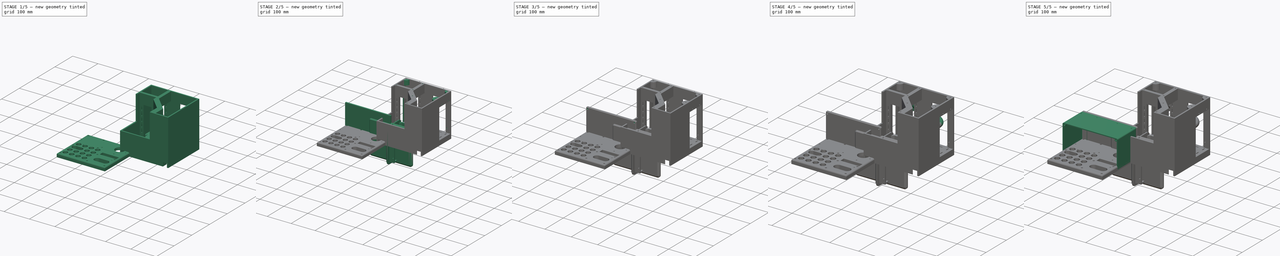
[diagram: build sequence overview — one tinted view per stage of 5, left to right]
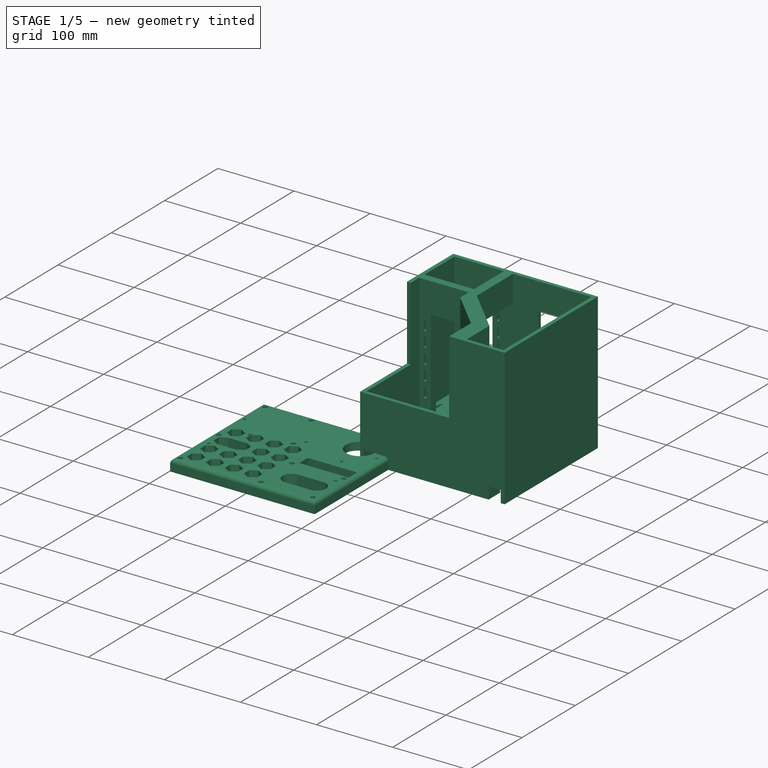
[diagram: stage 1 of 5 — iso view after this stage's code; geometry added in this stage tinted green]
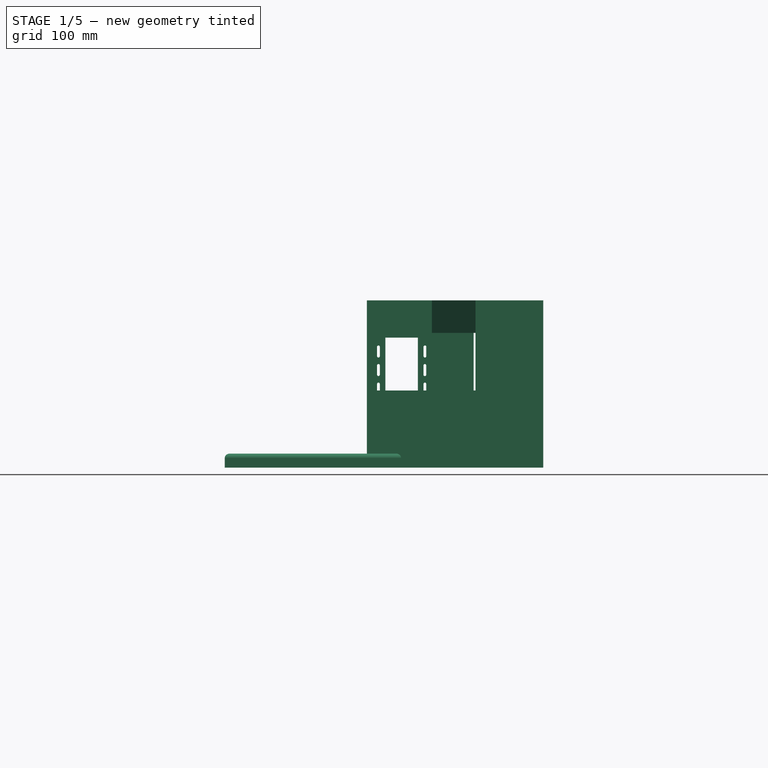
[diagram: stage 1 of 5 — front view after this stage's code; geometry added in this stage tinted green]
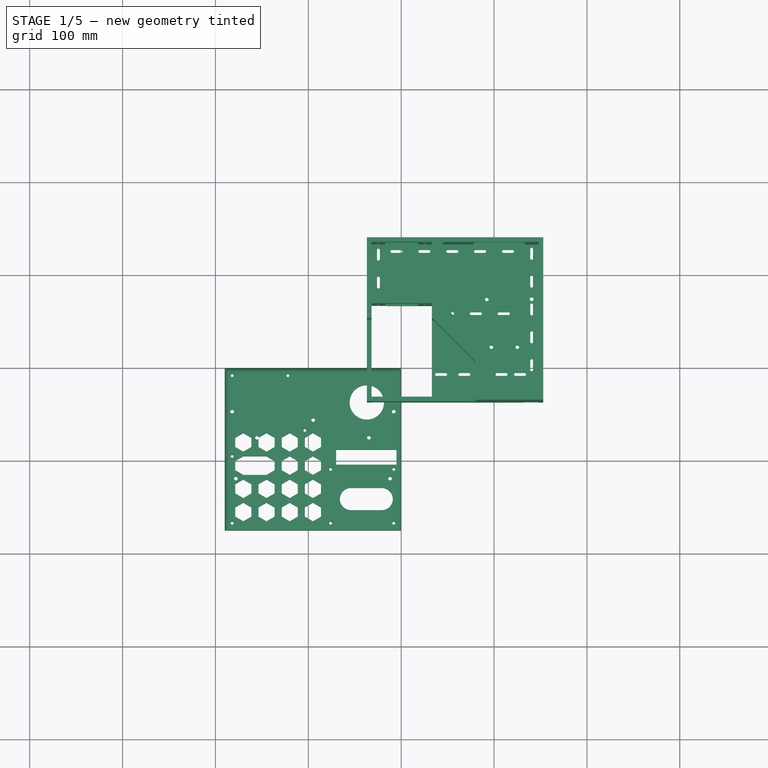
[diagram: stage 1 of 5 — top view after this stage's code; geometry added in this stage tinted green]
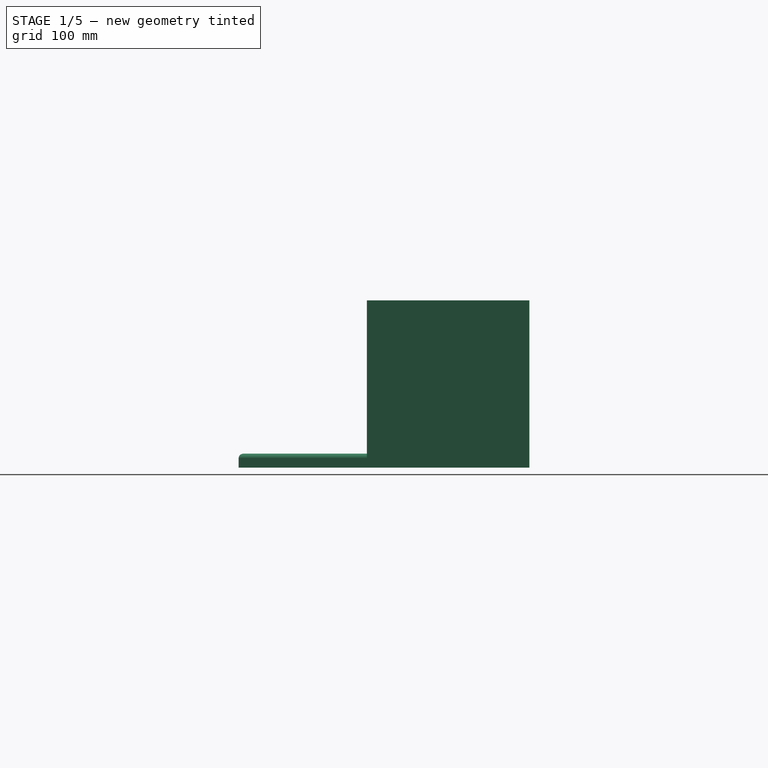
[diagram: stage 1 of 5 — right view after this stage's code; geometry added in this stage tinted green]
FCSTD DOCUMENT  (FreeCAD 1.0R39319 (Git))
Label: RobotShell
License: All rights reserved
LicenseURL: https://en.wikipedia.org/wiki/All_rights_reserved
objects: Sketcher::SketchObject×91, PartDesign::Pocket×51, PartDesign::Pad×33, PartDesign::Fillet×16, PartDesign::Body×15, PartDesign::Chamfer×12, PartDesign::Mirrored×8, PartDesign::LinearPattern×3, PartDesign::MultiTransform×3, PartDesign::AdditivePipe×3, PartDesign::Plane×2, App::LinkGroup×2, PartDesign::Hole×1, PartDesign::Thickness×1, Part::Feature×1, PartDesign::Line×1, PartDesign::PolarPattern×1
note: 582 computed .brp shape members not serialized (recipe doc carries the construction recipe); baked Part::Feature solids carry a one-line shape summary decoded from their .brp

FEATURE [Sketcher::SketchObject] Sketch003
  ArcFitTolerance = 1e-06
  AttachmentSupport = -> [XY_Plane001]
  FullyConstrained = true
  MakeInternals = false
  MapMode = 5
  sketch-geometry (9):
    g0: LineSegment StartX=-32 StartY=67 StartZ=0 EndX=-32 EndY=-32 EndZ=0
    g1: LineSegment StartX=-32 StartY=-32 StartZ=0 EndX=33 EndY=-32 EndZ=0
    g2: LineSegment StartX=33 StartY=-32 StartZ=0 EndX=33 EndY=67 EndZ=0
    g3: LineSegment StartX=33 StartY=67 StartZ=0 EndX=-32 EndY=67 EndZ=0
    g4: LineSegment StartX=-37 StartY=-37 StartZ=0 EndX=153 EndY=-37 EndZ=0
    g5: LineSegment StartX=153 StartY=-37 StartZ=0 EndX=153 EndY=138 EndZ=0
    g6: LineSegment StartX=153 StartY=138 StartZ=0 EndX=-37 EndY=138 EndZ=0
    g7: LineSegment StartX=-37 StartY=138 StartZ=0 EndX=-37 EndY=-37 EndZ=0
    g8: GeomPoint [constr] X=0 Y=0 Z=0
  constraints (25):
    c: Vertical(g0)
    c: Coincident(g0,g1)
    c: Horizontal(g1)
    c: Coincident(g1,g2)
    c: Vertical(g2)
    c: Coincident(g2,g3)
    c: Coincident(g3,g0)
    c: Horizontal(g3)
    c: Coincident(g4,g5)
    c: Coincident(g5,g6)
    c: Coincident(g6,g7)
    c: Coincident(g7,g4)
    c: Horizontal(g4)
    c: Horizontal(g6)
    c: Vertical(g5)
    c: Vertical(g7)
    c: Distance(g5,g7) = 190
    c: Distance(g4,g6) = 175
    c: Coincident(g8,g-1)
    c: DistanceX(g3,g3) = 65
    c: DistanceY(g2,g2) = 99
    c: Distance(g8,g0) = 32
    c: Distance(g-1,g1) = 32
    c: Distance(g7,g0) = 5
    c: Distance(g1,g4) = 5
FEATURE [PartDesign::Pad] Pad001
  Direction = (0,0,1)
  Length = 180
  Length2 = 10
  Profile = -> Sketch003
  ReferenceAxis = -> Sketch003 [N_Axis]
  Refine = true
  Suppressed = false
  Type = 0
FEATURE [Sketcher::SketchObject] Sketch005
  ArcFitTolerance = 1e-06
  AttachmentSupport = -> [Pad001]
  ExternalGeometry = -> [Pad001]
  FullyConstrained = true
  MakeInternals = false
  MapMode = 5
  Placement = pos=(0,138,0) rot=(0,0.707107,0.707107;3.14159rad)
  sketch-geometry (4):
    g0: LineSegment StartX=-133 StartY=145 StartZ=0 EndX=-133 EndY=20 EndZ=0
    g1: LineSegment StartX=-133 StartY=20 StartZ=0 EndX=-78 EndY=20 EndZ=0
    g2: LineSegment StartX=-78 StartY=20 StartZ=0 EndX=-78 EndY=145 EndZ=0
    g3: LineSegment StartX=-78 StartY=145 StartZ=0 EndX=-133 EndY=145 EndZ=0
  constraints (12):
    c: Coincident(g0,g1)
    c: Coincident(g1,g2)
    c: Coincident(g2,g3)
    c: Coincident(g3,g0)
    c: Vertical(g0)
    c: Vertical(g2)
    c: Horizontal(g1)
    c: Horizontal(g3)
    c: DistanceY(g2,g2) = 125
    c: DistanceX(g3,g3) = 55
    c: Distance(g-1,g1) = 20
    c: Distance(g-3,g0) = 20
FEATURE [PartDesign::Pocket] Pocket003
  BaseFeature = -> Pad001
  Direction = (0,-1,2e-16)
  Length = 10
  Length2 = 5
  Profile = -> Sketch005
  ReferenceAxis = -> Sketch005 [N_Axis]
  Refine = true
  Suppressed = false
  Type = 0
FEATURE [Sketcher::SketchObject] Sketch006
  ArcFitTolerance = 1e-06
  AttachmentSupport = -> [Pocket003]
  ExternalGeometry = -> [Pocket003]
  FullyConstrained = true
  MakeInternals = false
  MapMode = 5
  Placement = pos=(33,0,0) rot=(0.57735,-0.57735,-0.57735;2.0944rad)
  sketch-geometry (4):
    g0: LineSegment StartX=-51 StartY=95 StartZ=0 EndX=-51 EndY=20 EndZ=0
    g1: LineSegment StartX=-51 StartY=20 StartZ=0 EndX=32 EndY=20 EndZ=0
    g2: LineSegment StartX=32 StartY=20 StartZ=0 EndX=32 EndY=95 EndZ=0
    g3: LineSegment StartX=32 StartY=95 StartZ=0 EndX=-51 EndY=95 EndZ=0
  constraints (12):
    c: Coincident(g0,g1)
    c: Coincident(g1,g2)
    c: Coincident(g2,g3)
    c: Coincident(g3,g0)
    c: Vertical(g0)
    c: Vertical(g2)
    c: Horizontal(g1)
    c: Horizontal(g3)
    c: DistanceY(g2,g2) = 75
    c: Distance(g-1,g1) = 20
    c: Distance(g-2,g0) = 51
    c: Distance(g-3,g2) = 5
FEATURE [PartDesign::Pocket] Pocket004
  BaseFeature = -> Pocket003
  Direction = (1,0,0)
  Length = 80
  Length2 = 5
  Profile = -> Sketch006
  ReferenceAxis = -> Sketch006 [N_Axis]
  Refine = true
  Suppressed = false
  Type = 0
FEATURE [Sketcher::SketchObject] Sketch052
  ArcFitTolerance = 1e-06
  AttachmentSupport = -> [Pocket004]
  ExternalGeometry = -> [Pocket004]
  FullyConstrained = true
  MakeInternals = false
  MapMode = 5
  Placement = pos=(0,0,180) rot=(0,0,1;0rad)
  sketch-geometry (4):
    g0: LineSegment StartX=-32 StartY=133 StartZ=0 EndX=-32 EndY=77 EndZ=0
    g1: LineSegment StartX=-32 StartY=77 StartZ=0 EndX=33 EndY=77 EndZ=0
    g2: LineSegment StartX=33 StartY=77 StartZ=0 EndX=33 EndY=133 EndZ=0
    g3: LineSegment StartX=33 StartY=133 StartZ=0 EndX=-32 EndY=133 EndZ=0
  constraints (12):
    c: Coincident(g0,g1)
    c: Coincident(g1,g2)
    c: Coincident(g2,g3)
    c: Coincident(g3,g0)
    c: Vertical(g0)
    c: Vertical(g2)
    c: Horizontal(g1)
    c: Horizontal(g3)
    c: Distance(g-3,g0) = 5
    c: Vertical(g1,g-5)
    c: Distance(g-4,g3) = 5
    c: Distance(g-6,g1) = 10
FEATURE [PartDesign::Pocket] Pocket005
  BaseFeature = -> Pocket004
  Direction = (0,0,-1)
  Length = 160
  Length2 = 5
  Profile = -> Sketch052
  ReferenceAxis = -> Sketch052 [N_Axis]
  Refine = true
  Suppressed = false
  Type = 0
FEATURE [Sketcher::SketchObject] Sketch053
  ArcFitTolerance = 1e-06
  AttachmentSupport = -> [Pocket005]
  ExternalGeometry = -> [Pocket005]
  FullyConstrained = true
  MakeInternals = false
  MapMode = 5
  Placement = pos=(0,0,180) rot=(0,0,1;0rad)
  sketch-geometry (4):
    g0: LineSegment StartX=45 StartY=133 StartZ=0 EndX=45 EndY=-32 EndZ=0
    g1: LineSegment StartX=45 StartY=-32 StartZ=0 EndX=148 EndY=-32 EndZ=0
    g2: LineSegment StartX=148 StartY=-32 StartZ=0 EndX=148 EndY=133 EndZ=0
    g3: LineSegment StartX=148 StartY=133 StartZ=0 EndX=45 EndY=133 EndZ=0
  constraints (12):
    c: Coincident(g0,g1)
    c: Coincident(g1,g2)
    c: Coincident(g2,g3)
    c: Coincident(g3,g0)
    c: Vertical(g0)
    c: Vertical(g2)
    c: Horizontal(g1)
    c: Horizontal(g3)
    c: Distance(g-2,g0) = 45
    c: Distance(g2,g-3) = 5
    c: Horizontal(g1,g-4)
    c: Distance(g-5,g3) = 5
FEATURE [PartDesign::Pocket] Pocket006
  BaseFeature = -> Pocket005
  Direction = (0,0,-1)
  Length = 160
  Length2 = 5
  Profile = -> Sketch053
  ReferenceAxis = -> Sketch053 [N_Axis]
  Refine = true
  Suppressed = false
  Type = 0
FEATURE [Sketcher::SketchObject] Sketch054
  ArcFitTolerance = 1e-06
  AttachmentSupport = -> [Pocket006]
  ExternalGeometry = -> [Pocket006]
  FullyConstrained = false
  MakeInternals = false
  MapMode = 5
  Placement = pos=(0,-37,0) rot=(1,0,0;1.5708rad)
  sketch-geometry (4):
    g0: LineSegment StartX=-37 StartY=180 StartZ=0 EndX=-37 EndY=83 EndZ=0
    g1: LineSegment StartX=-37 StartY=83 StartZ=0 EndX=80 EndY=83 EndZ=0
    g2: LineSegment StartX=80 StartY=83 StartZ=0 EndX=80 EndY=180 EndZ=0
    g3: LineSegment StartX=-37 StartY=180 StartZ=0 EndX=80 EndY=180 EndZ=0
  constraints (9):
    c: Coincident(g1,g2)
    c: Vertical(g2)
    c: Horizontal(g1)
    c: Distance(g-1,g1) = 83
    c: Distance(g-2,g2) = 80
    c: Coincident(g0,g-4)
    c: Coincident(g0,g3)
    c: Horizontal(g3)
    c: Coincident(g2,g3)
FEATURE [PartDesign::Pocket] Pocket007
  BaseFeature = -> Pocket006
  Direction = (0,1,-2e-16)
  Length = 88
  Length2 = 5
  Profile = -> Sketch054
  ReferenceAxis = -> Sketch054 [N_Axis]
  Refine = true
  Suppressed = false
  Type = 0
FEATURE [Sketcher::SketchObject] Sketch055
  ArcFitTolerance = 1e-06
  AttachmentSupport = -> [Pocket007]
  ExternalGeometry = -> [Pocket007]
  FullyConstrained = true
  MakeInternals = false
  MapMode = 5
  Placement = pos=(0,138,0) rot=(0,0.707107,0.707107;3.14159rad)
  sketch-geometry (4):
    g0: LineSegment StartX=-18 StartY=140 StartZ=0 EndX=-18 EndY=20 EndZ=0
    g1: LineSegment StartX=-18 StartY=20 StartZ=0 EndX=17 EndY=20 EndZ=0
    g2: LineSegment StartX=17 StartY=20 StartZ=0 EndX=17 EndY=140 EndZ=0
    g3: LineSegment StartX=17 StartY=140 StartZ=0 EndX=-18 EndY=140 EndZ=0
  constraints (12):
    c: Coincident(g0,g1)
    c: Coincident(g1,g2)
    c: Coincident(g2,g3)
    c: Coincident(g3,g0)
    c: Vertical(g0)
    c: Vertical(g2)
    c: Horizontal(g1)
    c: Horizontal(g3)
    c: DistanceY(g2,g2) = 120
    c: Distance(g-1,g1) = 20
    c: Distance(g0,g-3) = 15
    c: Distance(g-4,g2) = 15
FEATURE [PartDesign::Pocket] Pocket008
  BaseFeature = -> Pocket007
  Direction = (0,-1,2e-16)
  Length = 80
  Length2 = 5
  Profile = -> Sketch055
  ReferenceAxis = -> Sketch055 [N_Axis]
  Refine = true
  Suppressed = false
  Type = 0
FEATURE [Sketcher::SketchObject] Sketch056
  ArcFitTolerance = 1e-06
  AttachmentSupport = -> [Pocket008]
  ExternalGeometry = -> [Pocket008]
  FullyConstrained = false
  MakeInternals = false
  MapMode = 5
  Placement = pos=(0,0,180) rot=(0,0,1;0rad)
  sketch-geometry (6):
    g0: LineSegment StartX=80 StartY=4 StartZ=0 EndX=80 EndY=-37 EndZ=0
    g1: LineSegment StartX=80 StartY=-37 StartZ=0 EndX=100 EndY=-37 EndZ=0
    g2: LineSegment StartX=33 StartY=77 StartZ=0 EndX=100 EndY=10 EndZ=0
    g3: LineSegment StartX=100 StartY=10 StartZ=0 EndX=100 EndY=-37 EndZ=0
    g4: LineSegment StartX=33 StartY=51 StartZ=0 EndX=80 EndY=4 EndZ=0
    g5: LineSegment StartX=33 StartY=77 StartZ=0 EndX=33 EndY=51 EndZ=0
  constraints (14):
    c: Vertical(g0)
    c: Coincident(g0,g1)
    c: Horizontal(g1)
    c: Distance(g1,g1) = 20
    c: Angle(g-1,g2) = -0.785398
    c: Coincident(g2,g3)
    c: Coincident(g3,g1)
    c: Vertical(g3)
    c: Coincident(g0,g-5)
    c: Coincident(g2,g-6)
    c: Coincident(g4,g0)
    c: Coincident(g2,g5)
    c: Coincident(g5,g4)
    c: Vertical(g5)
FEATURE [PartDesign::Pad] Pad002
  BaseFeature = -> Pocket008
  Direction = (0,0,1)
  Length = 35
  Length2 = 10
  Profile = -> Sketch056
  ReferenceAxis = -> Sketch056 [N_Axis]
  Refine = true
  Reversed = true
  Suppressed = false
  Type = 0
FEATURE [Sketcher::SketchObject] Sketch058
  ArcFitTolerance = 1e-06
  AttachmentSupport = -> [Pad002]
  ExternalGeometry = -> [Pad002]
  FullyConstrained = true
  MakeInternals = false
  MapMode = 5
  Placement = pos=(33,0,0) rot=(0.57735,-0.57735,-0.57735;2.0944rad)
  sketch-geometry (4):
    g0: LineSegment StartX=-133 StartY=145 StartZ=0 EndX=-133 EndY=20 EndZ=0
    g1: LineSegment StartX=-133 StartY=20 StartZ=0 EndX=-80 EndY=20 EndZ=0
    g2: LineSegment StartX=-80 StartY=20 StartZ=0 EndX=-80 EndY=145 EndZ=0
    g3: LineSegment StartX=-80 StartY=145 StartZ=0 EndX=-133 EndY=145 EndZ=0
  constraints (10):
    c: Coincident(g0,g1)
    c: Coincident(g1,g2)
    c: Coincident(g2,g3)
    c: Coincident(g3,g0)
    c: Vertical(g0)
    c: Vertical(g2)
    c: Horizontal(g1)
    c: Horizontal(g3)
    c: Coincident(g0,g-6)
    c: Coincident(g1,g-5)
FEATURE [PartDesign::Pocket] Pocket009
  BaseFeature = -> Pad002
  Direction = (1,0,0)
  Length = 20
  Length2 = 5
  Profile = -> Sketch058
  ReferenceAxis = -> Sketch058 [N_Axis]
  Refine = true
  Suppressed = false
  Type = 0
FEATURE [Sketcher::SketchObject] Sketch059
  ArcFitTolerance = 1e-06
  AttachmentSupport = -> [Pocket009]
  ExternalGeometry = -> [Pocket009]
  FullyConstrained = false
  MakeInternals = false
  MapMode = 5
  Placement = pos=(0,0,0) rot=(1,0,0;3.14159rad)
  sketch-geometry (16):
    g0: LineSegment StartX=-32 StartY=117 StartZ=0 EndX=-32 EndY=-133 EndZ=0
    g1: LineSegment StartX=-16 StartY=-117 StartZ=0 EndX=-16 EndY=-67 EndZ=0
    g2: LineSegment StartX=-16 StartY=117 StartZ=0 EndX=-32 EndY=117 EndZ=0
    g3: LineSegment StartX=-32 StartY=-133 StartZ=0 EndX=148 EndY=-133 EndZ=0
    g4: LineSegment StartX=148 StartY=-133 StartZ=0 EndX=148 EndY=117 EndZ=0
    g5: LineSegment StartX=148 StartY=117 StartZ=0 EndX=132 EndY=117 EndZ=0
    g6: LineSegment StartX=132 StartY=117 StartZ=0 EndX=132 EndY=16 EndZ=0
    g7: LineSegment StartX=132 StartY=-117 StartZ=0 EndX=-16 EndY=-117 EndZ=0
    g8: LineSegment StartX=-16 StartY=16 StartZ=0 EndX=132 EndY=16 EndZ=0
    g9: LineSegment StartX=132 StartY=-2 StartZ=0 EndX=-16 EndY=-2 EndZ=0
    g10: LineSegment StartX=-16 StartY=16 StartZ=0 EndX=-16 EndY=117 EndZ=0
    g11: LineSegment StartX=132 StartY=-2 StartZ=0 EndX=132 EndY=-50 EndZ=0
    g12: LineSegment StartX=-16 StartY=-50 StartZ=0 EndX=132 EndY=-50 EndZ=0
    g13: LineSegment StartX=132 StartY=-67 StartZ=0 EndX=-16 EndY=-67 EndZ=0
    g14: LineSegment StartX=-16 StartY=-50 StartZ=0 EndX=-16 EndY=-2 EndZ=0
    g15: LineSegment StartX=132 StartY=-67 StartZ=0 EndX=132 EndY=-117 EndZ=0
  constraints (51):
    c: Coincident(g10,g2)
    c: Coincident(g2,g0)
    c: Vertical(g0)
    c: Vertical(g1)
    c: Horizontal(g2)
    c: Distance(g0,g10) = 16
    c: Vertical(g0,g-4)
    c: Horizontal(g3)
    c: Coincident(g4,g5)
    c: Coincident(g5,g6)
    c: Vertical(g4)
    c: Vertical(g6)
    c: Horizontal(g5)
    c: Coincident(g0,g3)
    c: Coincident(g7,g1)
    c: PointOnObject(g15,g7)
    c: PointOnObject(g7,g15)
    c: Distance(g5,g5) = 16
    c: Distance(g3,g7) = 16
    c: Coincident(g4,g3)
    c: Horizontal(g7)
    c: DistanceY(g0,g0) = 250
    c: DistanceY(g4,g4) = 250
    c: Distance(g4,g-5) = 5
    c: Distance(g-6,g3) = 5
    c: Horizontal(g8)
    c: PointOnObject(g8,g10)
    c: Distance(g9,g8) = 18
    c: Horizontal(g9)
    c: PointOnObject(g10,g8)
    c: Coincident(g6,g8)
    c: Coincident(g14,g9)
    c: Vertical(g11)
    c: Vertical(g10)
    c: Coincident(g9,g11)
    c: Distance(g8,g-4) = 16
    c: PointOnObject(g12,g14)
    c: Horizontal(g12)
    c: PointOnObject(g13,g15)
    c: Horizontal(g13)
    c: Coincident(g1,g13)
    c: PointOnObject(g14,g12)
    c: Coincident(g11,g12)
    c: PointOnObject(g15,g13)
    c: Vertical(g9,g8)
    c: Vertical(g14)
    c: Vertical(g12,g1)
    c: Vertical(g9,g6)
    c: Vertical(g11,g13)
    c: Distance(g13,g12) = 17
    c: Distance(g9,g12) = 48
FEATURE [PartDesign::Pocket] Pocket010
  BaseFeature = -> Pocket009
  Direction = (0,0,1)
  Length = 15.5
  Length2 = 5
  Profile = -> Sketch059
  ReferenceAxis = -> Sketch059 [N_Axis]
  Refine = true
  Suppressed = false
  Type = 0
FEATURE [Sketcher::SketchObject] Sketch060
  ArcFitTolerance = 1e-06
  AttachmentSupport = -> [Pocket010]
  ExternalGeometry = -> [Pocket010]
  FullyConstrained = true
  MakeInternals = false
  MapMode = 5
  Placement = pos=(0,138,0) rot=(0,0.707107,0.707107;3.14159rad)
  sketch-geometry (8):
    g0: ArcOfCircle CenterX=-25.5 CenterY=130 CenterZ=0 NormalX=0 NormalY=0 NormalZ=1 AngleXU=0 Radius=1.5 StartAngle=1.06e-14 EndAngle=3.14159
    g1: ArcOfCircle CenterX=-25.5 CenterY=120 CenterZ=0 NormalX=0 NormalY=0 NormalZ=1 AngleXU=0 Radius=1.5 StartAngle=3.14159 EndAngle=6.28319
    g2: LineSegment StartX=-24 StartY=130 StartZ=0 EndX=-24 EndY=120 EndZ=0
    g3: LineSegment StartX=-27 StartY=130 StartZ=0 EndX=-27 EndY=120 EndZ=0
    g4: ArcOfCircle CenterX=24.5 CenterY=130 CenterZ=0 NormalX=0 NormalY=0 NormalZ=1 AngleXU=0 Radius=1.5 StartAngle=1.4e-15 EndAngle=3.14159
    g5: ArcOfCircle CenterX=24.5 CenterY=120 CenterZ=0 NormalX=0 NormalY=0 NormalZ=1 AngleXU=0 Radius=1.5 StartAngle=3.14159 EndAngle=6.28319
    g6: LineSegment StartX=26 StartY=130 StartZ=0 EndX=26 EndY=120 EndZ=0
    g7: LineSegment StartX=23 StartY=130 StartZ=0 EndX=23 EndY=120 EndZ=0
  constraints (20):
    c: Tangent(g0,g2) = 1.5708
    c: Tangent(g0,g3) = -1.5708
    c: Tangent(g1,g2) = 1.5708
    c: Tangent(g1,g3) = -1.5708
    c: Equal(g0,g1)
    c: Vertical(g3)
    c: Distance(g0,g1) = 10
    c: Radius(g0) = 1.5
    c: Distance(g0,g-3) = 7.5
    c: Distance(g0,g-5) = 10
    c: Tangent(g4,g6) = 1.5708
    c: Tangent(g4,g7) = -1.5708
    c: Tangent(g5,g6) = 1.5708
    c: Tangent(g5,g7) = -1.5708
    c: Equal(g4,g5)
    c: Vertical(g7)
    c: Distance(g4,g5) = 10
    c: Radius(g4) = 1.5
    c: Distance(g4,g-5) = 10
    c: Distance(g4,g-4) = 7.5
FEATURE [PartDesign::Pocket] Pocket011
  BaseFeature = -> Pocket010
  Direction = (0,-1,2e-16)
  Length = 80
  Length2 = 5
  Profile = -> Sketch060
  ReferenceAxis = -> Sketch060 [N_Axis]
  Refine = true
  Suppressed = false
  Type = 0
FEATURE [PartDesign::LinearPattern] LinearPattern
  BaseFeature = -> Pocket011
  Direction = -> Z_Axis001
  Length = 80
  Mode = 1
  Occurrences = 5
  Offset = 20
  Originals = -> [Pocket011]
  Refine = true
  Reversed = true
  Suppressed = false
  TransformMode = 0
FEATURE [Sketcher::SketchObject] Sketch062
  ArcFitTolerance = 1e-06
  AttachmentSupport = -> [LinearPattern]
  ExternalGeometry = -> [LinearPattern]
  FullyConstrained = false
  MakeInternals = false
  MapMode = 5
  Placement = pos=(0,0,20) rot=(0,0,1;0rad)
  sketch-geometry (81):
    g0: ArcOfCircle CenterX=-24.5 CenterY=87 CenterZ=0 NormalX=0 NormalY=0 NormalZ=1 AngleXU=0 Radius=1.5 StartAngle=3.14159 EndAngle=6.28319
    g1: ArcOfCircle CenterX=-24.5 CenterY=97 CenterZ=0 NormalX=0 NormalY=0 NormalZ=1 AngleXU=0 Radius=1.5 StartAngle=-3.6e-15 EndAngle=3.14159
    g2: LineSegment StartX=-26 StartY=87 StartZ=0 EndX=-26 EndY=97 EndZ=0
    g3: LineSegment StartX=-23 StartY=87 StartZ=0 EndX=-23 EndY=97 EndZ=0
    g4: ArcOfCircle CenterX=-24.5 CenterY=117 CenterZ=0 NormalX=0 NormalY=0 NormalZ=1 AngleXU=0 Radius=1.5 StartAngle=3.14159 EndAngle=6.28319
    g5: ArcOfCircle CenterX=-24.5 CenterY=127 CenterZ=0 NormalX=0 NormalY=0 NormalZ=1 AngleXU=0 Radius=1.5 StartAngle=8e-16 EndAngle=3.14159
    g6: LineSegment StartX=-26 StartY=117 StartZ=0 EndX=-26 EndY=127 EndZ=0
    g7: LineSegment StartX=-23 StartY=117 StartZ=0 EndX=-23 EndY=127 EndZ=0
    g8: ArcOfCircle CenterX=-10 CenterY=125.5 CenterZ=0 NormalX=0 NormalY=0 NormalZ=1 AngleXU=0 Radius=1.5 StartAngle=1.5708 EndAngle=4.71239
    g9: ArcOfCircle CenterX=0 CenterY=125.5 CenterZ=0 NormalX=0 NormalY=0 NormalZ=1 AngleXU=0 Radius=1.5 StartAngle=4.71239 EndAngle=7.85398
    g10: LineSegment StartX=-10 StartY=127 StartZ=0 EndX=0 EndY=127 EndZ=0
    g11: LineSegment StartX=-10 StartY=124 StartZ=0 EndX=0 EndY=124 EndZ=0
    g12: ArcOfCircle CenterX=20 CenterY=125.5 CenterZ=0 NormalX=0 NormalY=0 NormalZ=1 AngleXU=0 Radius=1.5 StartAngle=1.5708 EndAngle=4.71239
    g13: ArcOfCircle CenterX=30 CenterY=125.5 CenterZ=0 NormalX=0 NormalY=0 NormalZ=1 AngleXU=0 Radius=1.5 StartAngle=4.71239 EndAngle=7.85398
    g14: LineSegment StartX=20 StartY=127 StartZ=0 EndX=30 EndY=127 EndZ=0
    g15: LineSegment StartX=20 StartY=124 StartZ=0 EndX=30 EndY=124 EndZ=0
    g16: ArcOfCircle CenterX=50 CenterY=125.5 CenterZ=0 NormalX=0 NormalY=0 NormalZ=1 AngleXU=0 Radius=1.5 StartAngle=1.5708 EndAngle=4.71239
    g17: ArcOfCircle CenterX=60 CenterY=125.5 CenterZ=0 NormalX=0 NormalY=0 NormalZ=1 AngleXU=0 Radius=1.5 StartAngle=4.71239 EndAngle=7.85398
    g18: LineSegment StartX=50 StartY=127 StartZ=0 EndX=60 EndY=127 EndZ=0
    g19: LineSegment StartX=50 StartY=124 StartZ=0 EndX=60 EndY=124 EndZ=0
    g20: ArcOfCircle CenterX=80 CenterY=125.5 CenterZ=0 NormalX=0 NormalY=0 NormalZ=1 AngleXU=0 Radius=1.5 StartAngle=1.5708 EndAngle=4.71239
    g21: ArcOfCircle CenterX=90 CenterY=125.5 CenterZ=0 NormalX=0 NormalY=0 NormalZ=1 AngleXU=0 Radius=1.5 StartAngle=4.71239 EndAngle=7.85398
    g22: LineSegment StartX=80 StartY=127 StartZ=0 EndX=90 EndY=127 EndZ=0
    g23: LineSegment StartX=80 StartY=124 StartZ=0 EndX=90 EndY=124 EndZ=0
    g24: ArcOfCircle CenterX=110 CenterY=125.5 CenterZ=0 NormalX=0 NormalY=0 NormalZ=1 AngleXU=0 Radius=1.5 StartAngle=1.5708 EndAngle=4.71239
    g25: ArcOfCircle CenterX=120 CenterY=125.5 CenterZ=0 NormalX=0 NormalY=0 NormalZ=1 AngleXU=0 Radius=1.5 StartAngle=4.71239 EndAngle=7.85398
    g26: LineSegment StartX=110 StartY=127 StartZ=0 EndX=120 EndY=127 EndZ=0
    g27: LineSegment StartX=110 StartY=124 StartZ=0 EndX=120 EndY=124 EndZ=0
    g28: ArcOfCircle CenterX=140.5 CenterY=128 CenterZ=0 NormalX=0 NormalY=0 NormalZ=1 AngleXU=0 Radius=1.5 StartAngle=5.5e-15 EndAngle=3.14159
    g29: ArcOfCircle CenterX=140.5 CenterY=118 CenterZ=0 NormalX=0 NormalY=0 NormalZ=1 AngleXU=0 Radius=1.5 StartAngle=3.14159 EndAngle=6.28319
    g30: LineSegment StartX=142 StartY=128 StartZ=0 EndX=142 EndY=118 EndZ=0
    g31: LineSegment StartX=139 StartY=128 StartZ=0 EndX=139 EndY=118 EndZ=0
    g32: ArcOfCircle CenterX=140.5 CenterY=98 CenterZ=0 NormalX=0 NormalY=0 NormalZ=1 AngleXU=0 Radius=1.5 StartAngle=-3.6e-15 EndAngle=3.14159
    g33: ArcOfCircle CenterX=140.5 CenterY=88 CenterZ=0 NormalX=0 NormalY=0 NormalZ=1 AngleXU=0 Radius=1.5 StartAngle=3.14159 EndAngle=6.28319
    g34: LineSegment StartX=142 StartY=98 StartZ=0 EndX=142 EndY=88 EndZ=0
    g35: LineSegment StartX=139 StartY=98 StartZ=0 EndX=139 EndY=88 EndZ=0
    g36: ArcOfCircle CenterX=140.5 CenterY=68 CenterZ=0 NormalX=0 NormalY=0 NormalZ=1 AngleXU=0 Radius=1.5 StartAngle=4.2e-15 EndAngle=3.14159
    g37: ArcOfCircle CenterX=140.5 CenterY=58 CenterZ=0 NormalX=0 NormalY=0 NormalZ=1 AngleXU=0 Radius=1.5 StartAngle=3.14159 EndAngle=6.28319
    g38: LineSegment StartX=142 StartY=68 StartZ=0 EndX=142 EndY=58 EndZ=0
    g39: LineSegment StartX=139 StartY=68 StartZ=0 EndX=139 EndY=58 EndZ=0
    g40: ArcOfCircle CenterX=140.5 CenterY=38 CenterZ=0 NormalX=0 NormalY=0 NormalZ=1 AngleXU=0 Radius=1.5 StartAngle=-9e-16 EndAngle=3.14159
    g41: ArcOfCircle CenterX=140.5 CenterY=28 CenterZ=0 NormalX=0 NormalY=0 NormalZ=1 AngleXU=0 Radius=1.5 StartAngle=3.14159 EndAngle=6.28319
    g42: LineSegment StartX=142 StartY=38 StartZ=0 EndX=142 EndY=28 EndZ=0
    g43: LineSegment StartX=139 StartY=38 StartZ=0 EndX=139 EndY=28 EndZ=0
    g44: ArcOfCircle CenterX=140.5 CenterY=8 CenterZ=0 NormalX=0 NormalY=0 NormalZ=1 AngleXU=0 Radius=1.5 StartAngle=1e-16 EndAngle=3.14159
    g45: ArcOfCircle CenterX=140.5 CenterY=-2 CenterZ=0 NormalX=0 NormalY=0 NormalZ=1 AngleXU=0 Radius=1.5 StartAngle=3.14159 EndAngle=6.28319
    g46: LineSegment StartX=142 StartY=8 StartZ=0 EndX=142 EndY=-2 EndZ=0
    g47: LineSegment StartX=139 StartY=8 StartZ=0 EndX=139 EndY=-2 EndZ=0
    g48: ArcOfCircle CenterX=38 CenterY=-7 CenterZ=0 NormalX=0 NormalY=0 NormalZ=1 AngleXU=0 Radius=1.5 StartAngle=1.5708 EndAngle=4.71239
    g49: ArcOfCircle CenterX=48 CenterY=-7 CenterZ=0 NormalX=0 NormalY=0 NormalZ=1 AngleXU=0 Radius=1.5 StartAngle=4.71239 EndAngle=7.85398
    g50: LineSegment StartX=38 StartY=-5.5 StartZ=0 EndX=48 EndY=-5.5 EndZ=0
    g51: LineSegment StartX=38 StartY=-8.5 StartZ=0 EndX=48 EndY=-8.5 EndZ=0
    g52: ArcOfCircle CenterX=63 CenterY=-7 CenterZ=0 NormalX=0 NormalY=0 NormalZ=1 AngleXU=0 Radius=1.5 StartAngle=1.5708 EndAngle=4.71239
    g53: ArcOfCircle CenterX=73 CenterY=-7 CenterZ=0 NormalX=0 NormalY=0 NormalZ=1 AngleXU=0 Radius=1.5 StartAngle=4.71239 EndAngle=7.85398
    g54: LineSegment StartX=63 StartY=-5.5 StartZ=0 EndX=73 EndY=-5.5 EndZ=0
    g55: LineSegment StartX=63 StartY=-8.5 StartZ=0 EndX=73 EndY=-8.5 EndZ=0
    g56: ArcOfCircle CenterX=103 CenterY=-7 CenterZ=0 NormalX=0 NormalY=0 NormalZ=1 AngleXU=0 Radius=1.5 StartAngle=1.5708 EndAngle=4.71239
    g57: ArcOfCircle CenterX=113 CenterY=-7 CenterZ=0 NormalX=0 NormalY=0 NormalZ=1 AngleXU=0 Radius=1.5 StartAngle=4.71239 EndAngle=7.85398
    g58: LineSegment StartX=103 StartY=-5.5 StartZ=0 EndX=113 EndY=-5.5 EndZ=0
    g59: LineSegment StartX=103 StartY=-8.5 StartZ=0 EndX=113 EndY=-8.5 EndZ=0
    g60: ArcOfCircle CenterX=123 CenterY=-7 CenterZ=0 NormalX=0 NormalY=0 NormalZ=1 AngleXU=0 Radius=1.5 StartAngle=1.5708 EndAngle=4.71239
    g61: ArcOfCircle CenterX=133 CenterY=-7 CenterZ=0 NormalX=0 NormalY=0 NormalZ=1 AngleXU=0 Radius=1.5 StartAngle=4.71239 EndAngle=7.85398
    g62: LineSegment StartX=123 StartY=-5.5 StartZ=0 EndX=133 EndY=-5.5 EndZ=0
    g63: LineSegment StartX=123 StartY=-8.5 StartZ=0 EndX=133 EndY=-8.5 EndZ=0
    g64: Circle CenterX=92.2 CenterY=73.895 CenterZ=0 NormalX=0 NormalY=0 NormalZ=1 AngleXU=0 Radius=2
    g65: Circle CenterX=125.1 CenterY=22.5 CenterZ=0 NormalX=0 NormalY=0 NormalZ=1 AngleXU=0 Radius=2
    g66: Circle CenterX=140.5 CenterY=74 CenterZ=0 NormalX=0 NormalY=0 NormalZ=1 AngleXU=0 Radius=2
    g67: Circle CenterX=97.1 CenterY=22.5 CenterZ=0 NormalX=0 NormalY=0 NormalZ=1 AngleXU=0 Radius=2
    g68: Circle CenterX=92.0299 CenterY=-8.89887 CenterZ=0 NormalX=0 NormalY=0 NormalZ=1 AngleXU=0 Radius=2
    g69: ArcOfCircle CenterX=45.4271 CenterY=58.5 CenterZ=0 NormalX=0 NormalY=0 NormalZ=1 AngleXU=0 Radius=1.5 StartAngle=1.5708 EndAngle=4.71239
    g70: ArcOfCircle CenterX=55.4271 CenterY=58.5 CenterZ=0 NormalX=0 NormalY=0 NormalZ=1 AngleXU=0 Radius=1.5 StartAngle=4.71239 EndAngle=7.85398
    g71: LineSegment StartX=45.4271 StartY=60 StartZ=0 EndX=55.4271 EndY=60 EndZ=0
    g72: LineSegment StartX=45.4271 StartY=57 StartZ=0 EndX=55.4271 EndY=57 EndZ=0
    g73: ArcOfCircle CenterX=75.4271 CenterY=58.5 CenterZ=0 NormalX=0 NormalY=0 NormalZ=1 AngleXU=0 Radius=1.5 StartAngle=1.5708 EndAngle=4.71239
    g74: ArcOfCircle CenterX=85.4271 CenterY=58.5 CenterZ=0 NormalX=0 NormalY=0 NormalZ=1 AngleXU=0 Radius=1.5 StartAngle=4.71239 EndAngle=7.85398
    g75: LineSegment StartX=75.4271 StartY=60 StartZ=0 EndX=85.4271 EndY=60 EndZ=0
    g76: LineSegment StartX=75.4271 StartY=57 StartZ=0 EndX=85.4271 EndY=57 EndZ=0
    g77: ArcOfCircle CenterX=105.427 CenterY=58.5 CenterZ=0 NormalX=0 NormalY=0 NormalZ=1 AngleXU=0 Radius=1.5 StartAngle=1.5708 EndAngle=4.71239
    g78: ArcOfCircle CenterX=115.427 CenterY=58.5 CenterZ=0 NormalX=0 NormalY=0 NormalZ=1 AngleXU=0 Radius=1.5 StartAngle=4.71239 EndAngle=7.85398
    g79: LineSegment StartX=105.427 StartY=60 StartZ=0 EndX=115.427 EndY=60 EndZ=0
    g80: LineSegment StartX=105.427 StartY=57 StartZ=0 EndX=115.427 EndY=57 EndZ=0
  constraints (200):
    c: Tangent(g0,g2) = 1.5708
    c: Tangent(g0,g3) = -1.5708
    c: Tangent(g1,g2) = 1.5708
    c: Tangent(g1,g3) = -1.5708
    c: Equal(g0,g1)
    c: Vertical(g3)
    c: Distance(g0,g1) = 10
    c: Radius(g0) = 1.5
    c: Distance(g0,g-3) = 7.5
    c: Tangent(g4,g6) = 1.5708
    c: Tangent(g4,g7) = -1.5708
    c: Tangent(g5,g6) = 1.5708
    c: Tangent(g5,g7) = -1.5708
    c: Equal(g4,g5)
    c: Vertical(g7)
    c: Distance(g4,g5) = 10
    c: Radius(g4) = 1.5
    c: Vertical(g4,g1)
    c: DistanceY(g1,g4) = 20
    c: Tangent(g8,g10) = 1.5708
    c: Tangent(g8,g11) = -1.5708
    c: Tangent(g9,g10) = 1.5708
    c: Tangent(g9,g11) = -1.5708
    c: Equal(g8,g9)
    c: Horizontal(g11)
    c: Distance(g8,g9) = 10
    c: Radius(g8) = 1.5
    c: PointOnObject(g9,g-2)
    c: Distance(g8,g-4) = 7.5
    c: Tangent(g12,g14) = 1.5708
    c: Tangent(g12,g15) = -1.5708
    c: Tangent(g13,g14) = 1.5708
    c: Tangent(g13,g15) = -1.5708
    c: Equal(g12,g13)
    c: Horizontal(g15)
    c: Distance(g12,g13) = 10
    c: Radius(g12) = 1.5
    c: Tangent(g16,g18) = 1.5708
    c: Tangent(g16,g19) = -1.5708
    c: Tangent(g17,g18) = 1.5708
    c: Tangent(g17,g19) = -1.5708
    c: Equal(g16,g17)
    c: Horizontal(g19)
    c: Distance(g16,g17) = 10
    c: Radius(g16) = 1.5
    c: Tangent(g20,g22) = 1.5708
    c: Tangent(g20,g23) = -1.5708
    c: Tangent(g21,g22) = 1.5708
    c: Tangent(g21,g23) = -1.5708
    c: Equal(g20,g21)
    c: Horizontal(g23)
    c: Distance(g20,g21) = 10
    c: Radius(g20) = 1.5
    c: Tangent(g24,g26) = 1.5708
    c: Tangent(g24,g27) = -1.5708
    c: Tangent(g25,g26) = 1.5708
    c: Tangent(g25,g27) = -1.5708
    c: Equal(g24,g25)
    c: Horizontal(g27)
    c: Distance(g24,g25) = 10
    c: Radius(g24) = 1.5
    c: Horizontal(g9,g12)
    c: Horizontal(g13,g16)
    c: Horizontal(g17,g20)
    c: Horizontal(g21,g24)
    c: DistanceX(g9,g12) = 20
    c: DistanceX(g13,g16) = 20
    c: DistanceX(g17,g20) = 20
    c: DistanceX(g21,g24) = 20
    c: Tangent(g28,g30) = 1.5708
    c: Tangent(g28,g31) = -1.5708
    c: Tangent(g29,g30) = 1.5708
    c: Tangent(g29,g31) = -1.5708
    c: Equal(g28,g29)
    c: Vertical(g31)
    c: Distance(g28,g29) = 10
    c: Radius(g28) = 1.5
    c: Tangent(g32,g34) = 1.5708
    c: Tangent(g32,g35) = -1.5708
    c: Tangent(g33,g34) = 1.5708
    c: Tangent(g33,g35) = -1.5708
    c: Equal(g32,g33)
    c: Vertical(g35)
    c: Distance(g32,g33) = 10
    c: Radius(g32) = 1.5
    c: Tangent(g36,g38) = 1.5708
    c: Tangent(g36,g39) = -1.5708
    c: Tangent(g37,g38) = 1.5708
    c: Tangent(g37,g39) = -1.5708
    c: Equal(g36,g37)
    c: Vertical(g39)
    c: Distance(g36,g37) = 10
    c: Radius(g36) = 1.5
    c: Tangent(g40,g42) = 1.5708
    c: Tangent(g40,g43) = -1.5708
    c: Tangent(g41,g42) = 1.5708
    c: Tangent(g41,g43) = -1.5708
    c: Equal(g40,g41)
    c: Vertical(g43)
    c: Distance(g40,g41) = 10
    c: Radius(g40) = 1.5
    c: Tangent(g44,g46) = 1.5708
    c: Tangent(g44,g47) = -1.5708
    c: Tangent(g45,g46) = 1.5708
    c: Tangent(g45,g47) = -1.5708
    c: Equal(g44,g45)
    c: Vertical(g47)
    c: Distance(g44,g45) = 10
    c: Radius(g44) = 1.5
    c: Distance(g28,g-5) = 5
    c: DistanceY(g32,g29) = 20
    c: DistanceY(g36,g33) = 20
    c: DistanceY(g40,g37) = 20
    c: DistanceY(g44,g41) = 20
    c: Vertical(g29,g32)
    c: Distance(g28,g-6) = 7.5
    c: Vertical(g33,g36)
    c: Vertical(g37,g40)
    c: Vertical(g44,g41)
    c: Tangent(g48,g50) = 1.5708
    c: Tangent(g48,g51) = -1.5708
    c: Tangent(g49,g50) = 1.5708
    c: Tangent(g49,g51) = -1.5708
    c: Equal(g48,g49)
    c: Horizontal(g51)
    c: Distance(g48,g49) = 10
    c: Radius(g48) = 1.5
    c: Tangent(g52,g54) = 1.5708
    c: Tangent(g52,g55) = -1.5708
    c: Tangent(g53,g54) = 1.5708
    c: Tangent(g53,g55) = -1.5708
    c: Equal(g52,g53)
    c: Horizontal(g55)
    c: Distance(g52,g53) = 10
    c: Radius(g52) = 1.5
    c: Tangent(g56,g58) = 1.5708
    c: Tangent(g56,g59) = -1.5708
    c: Tangent(g57,g58) = 1.5708
    c: Tangent(g57,g59) = -1.5708
    c: Equal(g56,g57)
    c: Horizontal(g59)
    c: Distance(g56,g57) = 10
    c: Radius(g56) = 1.5
    c: Tangent(g60,g62) = 1.5708
    c: Tangent(g60,g63) = -1.5708
    c: Tangent(g61,g62) = 1.5708
    c: Tangent(g61,g63) = -1.5708
    c: Equal(g60,g61)
    c: Horizontal(g63)
    c: Distance(g60,g61) = 10
    c: Radius(g60) = 1.5
    c: Distance(g48,g-7) = 5
    c: Horizontal(g52,g49)
    c: DistanceX(g49,g52) = 15
    c: Horizontal(g53,g56)
    c: Horizontal(g57,g60)
    c: DistanceX(g53,g56) = 30
    c: Distance(g57,g60) = 10
    c: Distance(g48,g-8) = 9
    c: Diameter(g64) = 4
    c: Diameter(g65) = 4
    c: Diameter(g66) = 4
    c: Diameter(g67) = 4
    c: DistanceX(g64,g66) = 48.3
    c: DistanceY(g65,g66) = 51.5
    c: DistanceX(g67,g65) = 28
    c: Distance(g66,g-6) = 7.5
    c: Horizontal(g65,g67)
    c: Distance(g66,g-5) = 59
    c: DistanceX(g65,g66) = 15.4
    c: Diameter(g68) = 4
    c: Tangent(g69,g71) = 1.5708
    c: Tangent(g69,g72) = -1.5708
    c: Tangent(g70,g71) = 1.5708
    c: Tangent(g70,g72) = -1.5708
    c: Equal(g69,g70)
    c: Horizontal(g72)
    c: Distance(g69,g70) = 10
    c: Radius(g69) = 1.5
    c: Tangent(g73,g75) = 1.5708
    c: Tangent(g73,g76) = -1.5708
    c: Tangent(g74,g75) = 1.5708
    c: Tangent(g74,g76) = -1.5708
    c: Equal(g73,g74)
    c: Horizontal(g76)
    c: Distance(g73,g74) = 10
    c: Radius(g73) = 1.5
    c: Tangent(g77,g79) = 1.5708
    c: Tangent(g77,g80) = -1.5708
    c: Tangent(g78,g79) = 1.5708
    c: Tangent(g78,g80) = -1.5708
    c: Equal(g77,g78)
    c: Horizontal(g80)
    c: Distance(g77,g78) = 10
    c: Radius(g77) = 1.5
    c: DistanceX(g70,g73) = 20
    c: DistanceX(g74,g77) = 20
    c: Horizontal(g70,g73)
    c: Horizontal(g74,g77)
    c: DistanceY(g-7,g69) = 7.5
FEATURE [PartDesign::Pocket] Pocket012
  BaseFeature = -> LinearPattern
  Direction = (0,0,-1)
  Length = 5
  Length2 = 5
  Profile = -> Sketch062
  ReferenceAxis = -> Sketch062 [N_Axis]
  Refine = true
  Suppressed = false
  Type = 1
FEATURE [Sketcher::SketchObject] Sketch065
  ArcFitTolerance = 1e-06
  AttachmentSupport = -> [XY_Plane002]
  FullyConstrained = true
  MakeInternals = false
  MapMode = 5
  sketch-geometry (4):
    g0: LineSegment StartX=0 StartY=0 StartZ=0 EndX=-190 EndY=0 EndZ=0
    g1: LineSegment StartX=-190 StartY=0 StartZ=0 EndX=-190 EndY=-175 EndZ=0
    g2: LineSegment StartX=-190 StartY=-175 StartZ=0 EndX=0 EndY=-175 EndZ=0
    g3: LineSegment StartX=0 StartY=-175 StartZ=0 EndX=0 EndY=0 EndZ=0
  constraints (11):
    c: Coincident(g0,g1)
    c: Coincident(g1,g2)
    c: Coincident(g2,g3)
    c: Coincident(g3,g0)
    c: Horizontal(g0)
    c: Horizontal(g2)
    c: Vertical(g1)
    c: Vertical(g3)
    c: Distance(g1,g3) = 190
    c: Distance(g0,g2) = 175
    c: Coincident(g0,g-1)
FEATURE [PartDesign::Pad] Pad004
  Direction = (0,0,1)
  Length = 15
  Length2 = 10
  Profile = -> Sketch065
  ReferenceAxis = -> Sketch065 [N_Axis]
  Refine = true
  Suppressed = false
  Type = 0
FEATURE [Sketcher::SketchObject] Sketch066
  ArcFitTolerance = 1e-06
  AttachmentSupport = -> [Pad004]
  ExternalGeometry = -> [Pad004]
  FullyConstrained = true
  MakeInternals = false
  MapMode = 5
  Placement = pos=(0,0,15) rot=(0,0,1;0rad)
  sketch-geometry (9):
    g0: Circle CenterX=-182 CenterY=-8 CenterZ=0 NormalX=0 NormalY=0 NormalZ=1 AngleXU=0 Radius=1.5
    g1: Circle CenterX=-122 CenterY=-8 CenterZ=0 NormalX=0 NormalY=0 NormalZ=1 AngleXU=0 Radius=1.5
    g2: Circle CenterX=-103.75 CenterY=-67 CenterZ=0 NormalX=0 NormalY=0 NormalZ=1 AngleXU=0 Radius=1.5
    g3: Circle CenterX=-182 CenterY=-95 CenterZ=0 NormalX=0 NormalY=0 NormalZ=1 AngleXU=0 Radius=1.5
    g4: Circle CenterX=-182 CenterY=-167 CenterZ=0 NormalX=0 NormalY=0 NormalZ=1 AngleXU=0 Radius=1.5
    g5: Circle CenterX=-76 CenterY=-167 CenterZ=0 NormalX=0 NormalY=0 NormalZ=1 AngleXU=0 Radius=1.5
    g6: Circle CenterX=-76 CenterY=-109 CenterZ=0 NormalX=0 NormalY=0 NormalZ=1 AngleXU=0 Radius=1.5
    g7: Circle CenterX=-8 CenterY=-109 CenterZ=0 NormalX=0 NormalY=0 NormalZ=1 AngleXU=0 Radius=1.5
    g8: Circle CenterX=-8 CenterY=-167 CenterZ=0 NormalX=0 NormalY=0 NormalZ=1 AngleXU=0 Radius=1.5
  constraints (27):
    c: Diameter(g0) = 3
    c: Diameter(g1) = 3
    c: Diameter(g2) = 3
    c: Diameter(g3) = 3
    c: Diameter(g4) = 3
    c: Diameter(g5) = 3
    c: Diameter(g6) = 3
    c: Diameter(g7) = 3
    c: Diameter(g8) = 3
    c: Distance(g0,g-4) = 8
    c: Distance(g0,g-3) = 8
    c: Distance(g1,g-4) = 8
    c: Distance(g1,g-3) = 68
    c: Distance(g2,g-4) = 67
    c: Distance(g2,g-3) = 86.25
    c: Distance(g3,g-3) = 8
    c: Distance(g3,g-4) = 95
    c: Distance(g7,g-5) = 8
    c: Distance(g8,g-5) = 8
    c: Distance(g8,g-6) = 8
    c: Distance(g5,g-6) = 8
    c: Distance(g5,g-5) = 76
    c: Distance(g7,g-6) = 66
    c: Vertical(g6,g5)
    c: Horizontal(g6,g7)
    c: Distance(g4,g-6) = 8
    c: Distance(g4,g-3) = 8
FEATURE [PartDesign::Fillet] Fillet
  Base = -> Pad004 [Edge7,Edge12,Edge4,Edge10]
  BaseFeature = -> Pad004
  Radius = 5
  Refine = true
  SupportTransform = false
  Suppressed = false
  UseAllEdges = false
FEATURE [PartDesign::Hole] Hole
  BaseFeature = -> Fillet
  CustomThreadClearance = 0
  Depth = 10
  DepthType = 0
  Diameter = 6
  DrillForDepth = false
  DrillPoint = 0
  DrillPointAngle = 118
  HoleCutCountersinkAngle = 90
  HoleCutCustomValues = false
  HoleCutDepth = 0
  HoleCutDiameter = 8.1
  HoleCutType = 0
  ModelThread = false
  Profile = -> Sketch066
  Refine = true
  Suppressed = false
  Tapered = false
  TaperedAngle = 90
  ThreadClass = 0
  ThreadDepth = 10
  ThreadDepthType = 0
  ThreadDirection = 0
  ThreadFit = 0
  ThreadSize = 0
  ThreadType = 0
  Threaded = false
  UseCustomThreadClearance = false
FEATURE [PartDesign::Pocket] Pocket014
  BaseFeature = -> Hole
  Direction = (0,0,-1)
  Length = 15
  Length2 = 5
  Profile = -> Sketch066
  ReferenceAxis = -> Sketch066 [N_Axis]
  Refine = true
  Suppressed = false
  Type = 0
FEATURE [Sketcher::SketchObject] Sketch067
  ArcFitTolerance = 1e-06
  AttachmentSupport = -> [Fillet]
  ExternalGeometry = -> [Fillet]
  FullyConstrained = true
  MakeInternals = false
  MapMode = 5
  Placement = pos=(0,0,15) rot=(0,0,1;0rad)
  sketch-geometry (7):
    g0: LineSegment StartX=-170 StartY=-145 StartZ=0 EndX=-178.66 EndY=-150 EndZ=0
    g1: LineSegment StartX=-178.66 StartY=-150 StartZ=0 EndX=-178.66 EndY=-160 EndZ=0
    g2: LineSegment StartX=-178.66 StartY=-160 StartZ=0 EndX=-170 EndY=-165 EndZ=0
    g3: LineSegment StartX=-170 StartY=-165 StartZ=0 EndX=-161.34 EndY=-160 EndZ=0
    g4: LineSegment StartX=-161.34 StartY=-160 StartZ=0 EndX=-161.34 EndY=-150 EndZ=0
    g5: LineSegment StartX=-161.34 StartY=-150 StartZ=0 EndX=-170 EndY=-145 EndZ=0
    g6: Circle [constr] CenterX=-170 CenterY=-155 CenterZ=0 NormalX=0 NormalY=0 NormalZ=1 AngleXU=0 Radius=10
  constraints (17):
    c: Coincident(g0,g1)
    c: Coincident(g1,g2)
    c: Coincident(g2,g3)
    c: Coincident(g3,g4)
    c: Coincident(g4,g5)
    c: Coincident(g5,g0)
    c: Equal(g0, g1-g5) x5
    c: PointOnObject(g0,g6)
    c: PointOnObject(g1,g6)
    c: PointOnObject(g2,g6)
    c: PointOnObject(g3,g6)
    c: PointOnObject(g4,g6)
    c: PointOnObject(g5,g6)
    c: Radius(g6) = 10
    c: Vertical(g0,g6)
    c: Distance(g6,g-4) = 20
    c: Distance(g6,g-3) = 20
FEATURE [PartDesign::Pocket] Pocket015
  BaseFeature = -> Pocket014
  Direction = (0,0,-1)
  Length = 5
  Length2 = 5
  Profile = -> Sketch067
  ReferenceAxis = -> Sketch067 [N_Axis]
  Refine = true
  Suppressed = false
  Type = 1
FEATURE [PartDesign::LinearPattern] LinearPattern001
  Direction = -> X_Axis002
  Length = 75
  Mode = 1
  Occurrences = 4
  Offset = 25
  Refine = true
  Suppressed = false
  TransformMode = 0
FEATURE [PartDesign::LinearPattern] LinearPattern002
  Direction = -> Y_Axis002
  Length = 75
  Mode = 1
  Occurrences = 4
  Offset = 25
  Refine = true
  Suppressed = false
  TransformMode = 0
FEATURE [PartDesign::MultiTransform] MultiTransform
  BaseFeature = -> Pocket015
  Originals = -> [Pocket015]
  Refine = true
  Suppressed = false
  TransformMode = 0
  Transformations = -> [LinearPattern001,LinearPattern002]
FEATURE [Sketcher::SketchObject] Sketch068
  ArcFitTolerance = 1e-06
  AttachmentSupport = -> [MultiTransform]
  ExternalGeometry = -> [MultiTransform]
  FullyConstrained = true
  MakeInternals = false
  MapMode = 5
  Placement = pos=(0,0,15) rot=(0,0,1;0rad)
  sketch-geometry (12):
    g0: LineSegment StartX=-5 StartY=-104 StartZ=0 EndX=-5 EndY=-88 EndZ=0
    g1: LineSegment StartX=-5 StartY=-88 StartZ=0 EndX=-21 EndY=-88 EndZ=0
    g2: LineSegment StartX=-21 StartY=-88 StartZ=0 EndX=-21 EndY=-104 EndZ=0
    g3: LineSegment StartX=-21 StartY=-104 StartZ=0 EndX=-5 EndY=-104 EndZ=0
    g4: LineSegment StartX=-70 StartY=-104 StartZ=0 EndX=-54 EndY=-104 EndZ=0
    g5: LineSegment StartX=-54 StartY=-104 StartZ=0 EndX=-54 EndY=-88 EndZ=0
    g6: LineSegment StartX=-54 StartY=-88 StartZ=0 EndX=-70 EndY=-88 EndZ=0
    g7: LineSegment StartX=-70 StartY=-88 StartZ=0 EndX=-70 EndY=-104 EndZ=0
    g8: ArcOfCircle CenterX=-54 CenterY=-141 CenterZ=0 NormalX=0 NormalY=0 NormalZ=1 AngleXU=0 Radius=12 StartAngle=1.5708 EndAngle=4.71239
    g9: ArcOfCircle CenterX=-21 CenterY=-141 CenterZ=0 NormalX=0 NormalY=0 NormalZ=1 AngleXU=0 Radius=12 StartAngle=4.71239 EndAngle=7.85398
    g10: LineSegment StartX=-54 StartY=-129 StartZ=0 EndX=-21 EndY=-129 EndZ=0
    g11: LineSegment StartX=-54 StartY=-153 StartZ=0 EndX=-21 EndY=-153 EndZ=0
  constraints (34):
    c: Coincident(g0,g1)
    c: Coincident(g1,g2)
    c: Coincident(g2,g3)
    c: Coincident(g3,g0)
    c: Vertical(g0)
    c: Vertical(g2)
    c: Horizontal(g1)
    c: Horizontal(g3)
    c: Distance(g0,g2) = 16
    c: Distance(g1,g3) = 16
    c: Coincident(g4,g5)
    c: Coincident(g5,g6)
    c: Coincident(g6,g7)
    c: Coincident(g7,g4)
    c: Horizontal(g4)
    c: Horizontal(g6)
    c: Vertical(g5)
    c: Vertical(g7)
    c: Distance(g5,g7) = 16
    c: Distance(g4,g6) = 16
    c: Distance(g-3,g0) = 5
    c: Distance(g-4,g1) = 88
    c: Horizontal(g4,g2)
    c: Distance(g2,g5) = 33
    c: Tangent(g8,g10) = 1.5708
    c: Tangent(g8,g11) = -1.5708
    c: Tangent(g9,g10) = 1.5708
    c: Tangent(g9,g11) = -1.5708
    c: Equal(g8,g9)
    c: Horizontal(g11)
    c: Distance(g8,g9) = 33
    c: Radius(g8) = 12
    c: Vertical(g8,g4)
    c: DistanceY(g-3,g8) = 34
FEATURE [PartDesign::Pocket] Pocket016
  BaseFeature = -> MultiTransform
  Direction = (0,0,-1)
  Length = 5
  Length2 = 5
  Profile = -> Sketch068
  ReferenceAxis = -> Sketch068 [N_Axis]
  Refine = true
  Suppressed = false
  Type = 1
FEATURE [Sketcher::SketchObject] Sketch069
  ArcFitTolerance = 1e-06
  AttachmentSupport = -> [Pocket016]
  FullyConstrained = true
  MakeInternals = false
  MapMode = 5
  Placement = pos=(0,0,0) rot=(1,0,0;3.14159rad)
  sketch-geometry (1):
    g0: Circle CenterX=-37 CenterY=37 CenterZ=0 NormalX=0 NormalY=0 NormalZ=1 AngleXU=0 Radius=18.5
  constraints (3):
    c: Diameter(g0) = 37
    c: Distance(g0,g-2) = 37
    c: Distance(g0,g-1) = 37
FEATURE [PartDesign::Pocket] Pocket017
  BaseFeature = -> Pocket016
  Direction = (0,0,1)
  Length = 15
  Length2 = 5
  Profile = -> Sketch069
  ReferenceAxis = -> Sketch069 [N_Axis]
  Refine = true
  Suppressed = false
  Type = 0
FEATURE [Sketcher::SketchObject] Sketch070
  ArcFitTolerance = 1e-06
  AttachmentSupport = -> [Pocket017]
  FullyConstrained = true
  MakeInternals = false
  MapMode = 5
  Placement = pos=(0,0,0) rot=(1,0,0;3.14159rad)
  sketch-geometry (1):
    g0: Circle CenterX=-37 CenterY=37 CenterZ=0 NormalX=0 NormalY=0 NormalZ=1 AngleXU=0 Radius=28
  constraints (3):
    c: Diameter(g0) = 56
    c: DistanceX(g0,g-1) = 37
    c: Distance(g0,g-1) = 37
FEATURE [PartDesign::Pocket] Pocket018
  BaseFeature = -> Pocket017
  Direction = (0,0,1)
  Length = 5
  Length2 = 5
  Profile = -> Sketch070
  ReferenceAxis = -> Sketch070 [N_Axis]
  Refine = true
  Suppressed = false
  Type = 0
FEATURE [Sketcher::SketchObject] Sketch073
  ArcFitTolerance = 1e-06
  AttachmentSupport = -> [Pocket018]
  ExternalGeometry = -> [Pocket018]
  FullyConstrained = true
  MakeInternals = false
  MapMode = 5
  Placement = pos=(0,0,15) rot=(0,0,1;0rad)
  sketch-geometry (5):
    g0: Circle CenterX=-94.75 CenterY=-56 CenterZ=0 NormalX=0 NormalY=0 NormalZ=1 AngleXU=0 Radius=2
    g1: Circle CenterX=-155.25 CenterY=-75 CenterZ=0 NormalX=0 NormalY=0 NormalZ=1 AngleXU=0 Radius=2
    g2: Circle CenterX=-34.75 CenterY=-75 CenterZ=0 NormalX=0 NormalY=0 NormalZ=1 AngleXU=0 Radius=2
    g3: Circle CenterX=-182 CenterY=-46.8 CenterZ=0 NormalX=0 NormalY=0 NormalZ=1 AngleXU=0 Radius=2
    g4: Circle CenterX=-8 CenterY=-46.8 CenterZ=0 NormalX=0 NormalY=0 NormalZ=1 AngleXU=0 Radius=2
  constraints (15):
    c: Diameter(g0) = 4
    c: Diameter(g1) = 4
    c: Diameter(g2) = 4
    c: DistanceY(g1,g-1) = 75
    c: DistanceY(g2,g-1) = 75
    c: DistanceX(g1,g2) = 120.5
    c: DistanceY(g0,g-1) = 56
    c: DistanceX(g0,g2) = 60
    c: DistanceX(g2,g-1) = 34.75
    c: Diameter(g3) = 4
    c: Diameter(g4) = 4
    c: Distance(g4,g-2) = 8
    c: DistanceY(g4,g-1) = 46.8
    c: Distance(g3,g-3) = 8
    c: Distance(g3,g-1) = 46.8
FEATURE [PartDesign::Pocket] Pocket021
  BaseFeature = -> Pocket018
  Direction = (0,0,-1)
  Length = 5
  Length2 = 5
  Profile = -> Sketch073
  ReferenceAxis = -> Sketch073 [N_Axis]
  Refine = true
  Suppressed = false
  Type = 1
FEATURE [Sketcher::SketchObject] Sketch077
  ArcFitTolerance = 1e-06
  AttachmentSupport = -> [Pocket021]
  ExternalGeometry = -> [Pocket021]
  FullyConstrained = true
  MakeInternals = false
  MapMode = 5
  Placement = pos=(0,0,15) rot=(0,0,1;0rad)
  sketch-geometry (2):
    g0: Circle CenterX=-178 CenterY=-119 CenterZ=0 NormalX=0 NormalY=0 NormalZ=1 AngleXU=0 Radius=2
    g1: Circle CenterX=-12 CenterY=-119 CenterZ=0 NormalX=0 NormalY=0 NormalZ=1 AngleXU=0 Radius=2
  constraints (6):
    c: Diameter(g0) = 4
    c: Diameter(g1) = 4
    c: Distance(g0,g-3) = 12
    c: DistanceY(g0,g-1) = 119
    c: DistanceX(g1,g-1) = 12
    c: Horizontal(g1,g0)
FEATURE [PartDesign::Pocket] Pocket024
  BaseFeature = -> Pocket021
  Direction = (0,0,-1)
  Length = 5
  Length2 = 5
  Profile = -> Sketch077
  ReferenceAxis = -> Sketch077 [N_Axis]
  Refine = true
  Suppressed = false
  Type = 1
FEATURE [PartDesign::Body] Body001  label="Bones"
  AllowCompound = false
  Group = -> [Sketch003,Pad001,Sketch005,Pocket003,Sketch006,Pocket004,Sketch052,Pocket005,Sketch053,Pocket006,Sketch054,Pocket007,Sketch055,Pocket008,Sketch056,Pad002,Sketch058,Pocket009,Sketch059,Pocket010,Sketch060,Pocket011,LinearPattern,Sketch062,Pocket012,Sketch063,Pocket013,Sketch064,Pad003,Sketch071,Pocket019,Sketch072,Pocket020,Chamfer001,Sketch173,Pocket060,Sketch174,Pocket061,Sketch175,Pocket062]
  Origin = -> Origin001
  Placement = pos=(-54.9,-44.9,-82.9) rot=(0,0,1;3.14159rad)
  Tip = -> Pocket062
FEATURE [Sketcher::SketchObject] Sketch176
  ArcFitTolerance = 1e-06
  AttachmentSupport = -> [Pocket017]
  ExternalGeometry = -> [Pocket017]
  FullyConstrained = true
  MakeInternals = false
  MapMode = 5
  Placement = pos=(0,0,15) rot=(0,0,1;0rad)
  sketch-geometry (8):
    g0: LineSegment StartX=-170 StartY=-95 StartZ=0 EndX=-170 EndY=-115 EndZ=0
    g1: LineSegment StartX=-170 StartY=-115 StartZ=0 EndX=-145 EndY=-115 EndZ=0
    g2: LineSegment StartX=-145 StartY=-115 StartZ=0 EndX=-145 EndY=-95 EndZ=0
    g3: LineSegment StartX=-145 StartY=-95 StartZ=0 EndX=-170 EndY=-95 EndZ=0
    g4: LineSegment StartX=-54 StartY=-88 StartZ=0 EndX=-54 EndY=-104 EndZ=0
    g5: LineSegment StartX=-54 StartY=-104 StartZ=0 EndX=-21 EndY=-104 EndZ=0
    g6: LineSegment StartX=-21 StartY=-104 StartZ=0 EndX=-21 EndY=-88 EndZ=0
    g7: LineSegment StartX=-21 StartY=-88 StartZ=0 EndX=-54 EndY=-88 EndZ=0
  constraints (20):
    c: Coincident(g0,g1)
    c: Coincident(g1,g2)
    c: Coincident(g2,g3)
    c: Coincident(g3,g0)
    c: Vertical(g0)
    c: Vertical(g2)
    c: Horizontal(g1)
    c: Horizontal(g3)
    c: Coincident(g0,g-3)
    c: Coincident(g1,g-4)
    c: Coincident(g4,g5)
    c: Coincident(g5,g6)
    c: Coincident(g6,g7)
    c: Coincident(g7,g4)
    c: Vertical(g4)
    c: Vertical(g6)
    c: Horizontal(g5)
    c: Horizontal(g7)
    c: Coincident(g4,g-5)
    c: Coincident(g5,g-6)
FEATURE [PartDesign::Pocket] Pocket063
  BaseFeature = -> Pocket024
  Direction = (0,0,-1)
  Length = 5
  Length2 = 5
  Profile = -> Sketch176
  ReferenceAxis = -> Sketch176 [N_Axis]
  Refine = true
  Suppressed = false
  Type = 1
FEATURE [PartDesign::Body] Body002  label="TopLid"
  AllowCompound = false
  Group = -> [Sketch065,Pad004,Fillet,Sketch066,Hole,Pocket014,Sketch067,Pocket015,MultiTransform,LinearPattern001,LinearPattern002,Sketch068,Pocket016,Sketch069,Pocket017,Sketch070,Pocket018,Sketch073,Pocket021,Sketch077,Pocket024,Sketch176,Pocket063]
  Origin = -> Origin002
  Placement = pos=(-17.9,-7.9,97.1) rot=(0,0,1;0rad)
  Tip = -> Pocket063
FEATURE [App::LinkGroup] LinkGroup  label="RobotShell"
  ElementList = -> [Body001,Body002,Body003,Body,Part__Feature004,Body008,LinkGroup001,Body015,Body016,Body017]
  LinkMode = 0
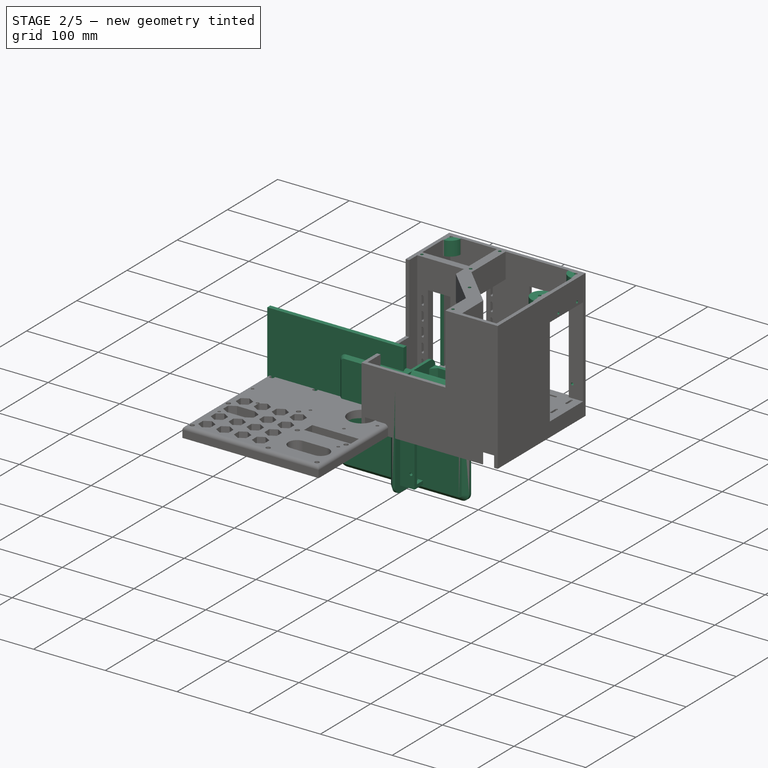
[diagram: stage 2 of 5 — iso view after this stage's code; geometry added in this stage tinted green]
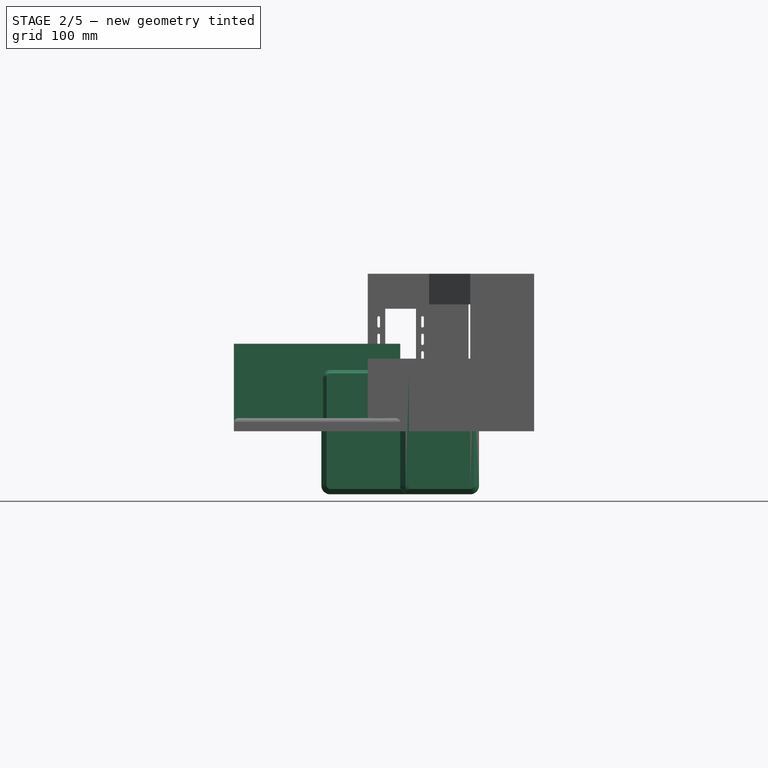
[diagram: stage 2 of 5 — front view after this stage's code; geometry added in this stage tinted green]
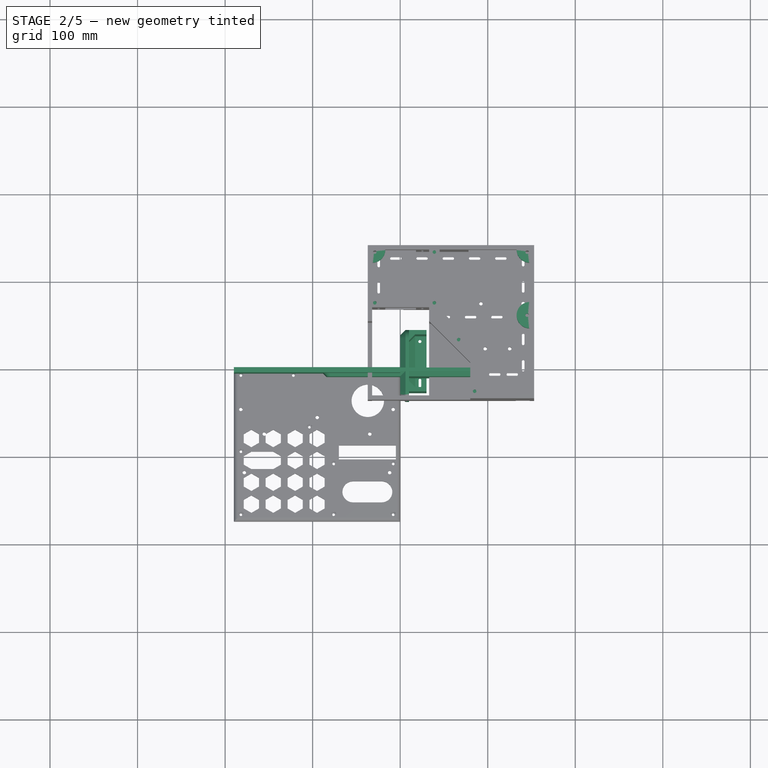
[diagram: stage 2 of 5 — top view after this stage's code; geometry added in this stage tinted green]
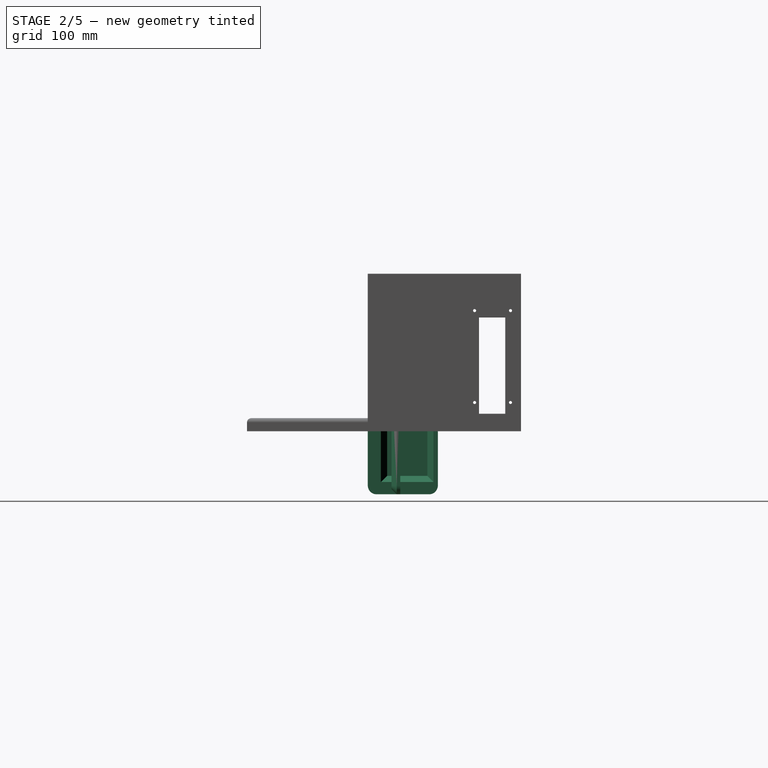
[diagram: stage 2 of 5 — right view after this stage's code; geometry added in this stage tinted green]
FEATURE [Sketcher::SketchObject] Sketch063
  ArcFitTolerance = 1e-06
  AttachmentSupport = -> [Pocket012]
  ExternalGeometry = -> [Pocket012]
  FullyConstrained = true
  MakeInternals = false
  MapMode = 5
  Placement = pos=(0,0,180) rot=(0,0,1;0rad)
  sketch-geometry (6):
    g0: Circle CenterX=39 CenterY=72 CenterZ=0 NormalX=0 NormalY=0 NormalZ=1 AngleXU=0 Radius=2
    g1: Circle CenterX=39 CenterY=130 CenterZ=0 NormalX=0 NormalY=0 NormalZ=1 AngleXU=0 Radius=2
    g2: Circle CenterX=66.7279 CenterY=30 CenterZ=0 NormalX=0 NormalY=0 NormalZ=1 AngleXU=0 Radius=2
    g3: Circle CenterX=145 CenterY=-29 CenterZ=0 NormalX=0 NormalY=0 NormalZ=1 AngleXU=0 Radius=2
    g4: Circle CenterX=85 CenterY=-29 CenterZ=0 NormalX=0 NormalY=0 NormalZ=1 AngleXU=0 Radius=2
    g5: Circle CenterX=-29 CenterY=72 CenterZ=0 NormalX=0 NormalY=0 NormalZ=1 AngleXU=0 Radius=2
  constraints (18):
    c: Diameter(g0) = 4
    c: Diameter(g1) = 4
    c: Diameter(g2) = 4
    c: Diameter(g3) = 4
    c: Diameter(g4) = 4
    c: Distance(g1,g-4) = 6
    c: Distance(g0,g-4) = 6
    c: Distance(g0,g-6) = 5
    c: Distance(g2,g-3) = 9
    c: Distance(g2,g-1) = 30
    c: Distance(g4,g-8) = 8
    c: Distance(g4,g-9) = 5
    c: Distance(g3,g-8) = 8
    c: Distance(g3,g-10) = 8
    c: Diameter(g5) = 4
    c: Distance(g5,g-6) = 5
    c: DistanceY(g1,g-4) = 3
    c: DistanceX(g-6,g5) = 3
FEATURE [PartDesign::Pocket] Pocket013
  BaseFeature = -> Pocket012
  Direction = (0,0,-1)
  Length = 10
  Length2 = 5
  Profile = -> Sketch063
  ReferenceAxis = -> Sketch063 [N_Axis]
  Refine = true
  Suppressed = false
  Type = 0
FEATURE [Sketcher::SketchObject] Sketch064
  ArcFitTolerance = 1e-06
  AttachmentSupport = -> [Pocket013]
  ExternalGeometry = -> [Pocket013]
  FullyConstrained = false
  MakeInternals = false
  MapMode = 5
  Placement = pos=(0,0,180) rot=(0,0,1;0rad)
  sketch-geometry (11):
    g0: ArcOfCircle CenterX=-32 CenterY=133 CenterZ=0 NormalX=0 NormalY=0 NormalZ=1 AngleXU=0 Radius=15 StartAngle=4.71239 EndAngle=6.28319
    g1: ArcOfCircle CenterX=148 CenterY=133 CenterZ=0 NormalX=0 NormalY=0 NormalZ=1 AngleXU=0 Radius=15 StartAngle=3.14159 EndAngle=4.71239
    g2: ArcOfCircle CenterX=148 CenterY=58 CenterZ=0 NormalX=0 NormalY=0 NormalZ=1 AngleXU=0 Radius=15 StartAngle=1.5708 EndAngle=4.71239
    g3: LineSegment StartX=148 StartY=43 StartZ=0 EndX=148 EndY=73 EndZ=0
    g4: LineSegment StartX=148 StartY=118 StartZ=0 EndX=148 EndY=133 EndZ=0
    g5: LineSegment StartX=148 StartY=133 StartZ=0 EndX=133 EndY=133 EndZ=0
    g6: LineSegment StartX=-17 StartY=133 StartZ=0 EndX=-32 EndY=133 EndZ=0
    g7: LineSegment StartX=-32 StartY=118 StartZ=0 EndX=-32 EndY=133 EndZ=0
    g8: Circle CenterX=-29 CenterY=130 CenterZ=0 NormalX=0 NormalY=0 NormalZ=1 AngleXU=0 Radius=2
    g9: Circle CenterX=145 CenterY=130 CenterZ=0 NormalX=0 NormalY=0 NormalZ=1 AngleXU=0 Radius=2
    g10: Circle CenterX=145 CenterY=57.9764 CenterZ=0 NormalX=0 NormalY=0 NormalZ=1 AngleXU=0 Radius=2
  constraints (31):
    c: Radius(g0) = 15
    c: Coincident(g0,g-10)
    c: PointOnObject(g0,g-10)
    c: PointOnObject(g0,g-9)
    c: Radius(g1) = 15
    c: Coincident(g1,g-8)
    c: PointOnObject(g1,g-8)
    c: PointOnObject(g1,g-7)
    c: PointOnObject(g2,g-7)
    c: Radius(g2) = 15
    c: Distance(g2,g-8) = 75
    c: Vertical(g2,g2)
    c: Vertical(g2,g1)
    c: Coincident(g2,g3)
    c: Coincident(g3,g2)
    c: Coincident(g4,g1)
    c: Coincident(g4,g1)
    c: Coincident(g5,g1)
    c: Coincident(g5,g1)
    c: Coincident(g6,g0)
    c: Coincident(g6,g0)
    c: Coincident(g7,g0)
    c: Coincident(g7,g0)
    c: Diameter(g8) = 4
    c: Diameter(g9) = 4
    c: Diameter(g10) = 4
    c: Distance(g10,g3) = 3
    c: Distance(g9,g5) = 3
    c: Distance(g9,g4) = 3
    c: Distance(g8,g6) = 3
    c: Distance(g8,g7) = 3
FEATURE [PartDesign::Pad] Pad003
  BaseFeature = -> Pocket013
  Direction = (0,0,1)
  Length = 20
  Length2 = 10
  Profile = -> Sketch064
  ReferenceAxis = -> Sketch064 [N_Axis]
  Refine = true
  Reversed = true
  Suppressed = false
  Type = 0
FEATURE [Sketcher::SketchObject] Sketch071
  ArcFitTolerance = 1e-06
  AttachmentSupport = -> [Pad003]
  ExternalGeometry = -> [Pad003]
  FullyConstrained = true
  MakeInternals = false
  MapMode = 5
  Placement = pos=(153,0,0) rot=(0.57735,0.57735,0.57735;2.0944rad)
  sketch-geometry (4):
    g0: LineSegment StartX=133 StartY=20 StartZ=0 EndX=133 EndY=145 EndZ=0
    g1: LineSegment StartX=133 StartY=145 StartZ=0 EndX=67 EndY=145 EndZ=0
    g2: LineSegment StartX=67 StartY=145 StartZ=0 EndX=67 EndY=20 EndZ=0
    g3: LineSegment StartX=67 StartY=20 StartZ=0 EndX=133 EndY=20 EndZ=0
  constraints (11):
    c: Coincident(g0,g1)
    c: Coincident(g1,g2)
    c: Coincident(g2,g3)
    c: Coincident(g3,g0)
    c: Vertical(g0)
    c: Vertical(g2)
    c: Horizontal(g1)
    c: Horizontal(g3)
    c: Distance(g0,g2) = 66
    c: Distance(g1,g3) = 125
    c: Coincident(g0,g-4)
FEATURE [PartDesign::Pocket] Pocket019
  BaseFeature = -> Pad003
  Direction = (-1,0,0)
  Length = 5
  Length2 = 5
  Profile = -> Sketch071
  ReferenceAxis = -> Sketch071 [N_Axis]
  Refine = true
  Suppressed = false
  Type = 0
FEATURE [Sketcher::SketchObject] Sketch072
  ArcFitTolerance = 1e-06
  AttachmentSupport = -> [Pocket019]
  FullyConstrained = true
  MakeInternals = false
  MapMode = 5
  Placement = pos=(-37,0,0) rot=(0.57735,-0.57735,-0.57735;2.0944rad)
  sketch-geometry (4):
    g0: LineSegment StartX=-120 StartY=130 StartZ=0 EndX=-120 EndY=20 EndZ=0
    g1: LineSegment StartX=-120 StartY=20 StartZ=0 EndX=-90 EndY=20 EndZ=0
    g2: LineSegment StartX=-90 StartY=20 StartZ=0 EndX=-90 EndY=130 EndZ=0
    g3: LineSegment StartX=-90 StartY=130 StartZ=0 EndX=-120 EndY=130 EndZ=0
  constraints (12):
    c: Coincident(g0,g1)
    c: Coincident(g1,g2)
    c: Coincident(g2,g3)
    c: Coincident(g3,g0)
    c: Vertical(g0)
    c: Vertical(g2)
    c: Horizontal(g1)
    c: Horizontal(g3)
    c: DistanceX(g3,g3) = 30
    c: DistanceY(g0,g0) = 110
    c: Distance(g-1,g1) = 20
    c: Distance(g-2,g2) = 90
FEATURE [PartDesign::Pocket] Pocket020
  BaseFeature = -> Pocket019
  Direction = (1,0,0)
  Length = 5
  Length2 = 5
  Profile = -> Sketch072
  ReferenceAxis = -> Sketch072 [N_Axis]
  Refine = true
  Suppressed = false
  Type = 0
FEATURE [Sketcher::SketchObject] Sketch080
  ArcFitTolerance = 1e-06
  AttachmentSupport = -> [XZ_Plane]
  FullyConstrained = true
  MakeInternals = false
  MapMode = 5
  Placement = pos=(0,0,0) rot=(1,0,0;1.5708rad)
  sketch-geometry (4):
    g0: LineSegment StartX=0 StartY=0 StartZ=0 EndX=0 EndY=100 EndZ=0
    g1: LineSegment StartX=0 StartY=100 StartZ=0 EndX=-190 EndY=100 EndZ=0
    g2: LineSegment StartX=-190 StartY=100 StartZ=0 EndX=-190 EndY=0 EndZ=0
    g3: LineSegment StartX=-190 StartY=0 StartZ=0 EndX=0 EndY=0 EndZ=0
  constraints (11):
    c: Coincident(g0,g1)
    c: Coincident(g1,g2)
    c: Coincident(g2,g3)
    c: Coincident(g3,g0)
    c: Vertical(g0)
    c: Vertical(g2)
    c: Horizontal(g1)
    c: Horizontal(g3)
    c: Coincident(g0,g-1)
    c: DistanceX(g1,g1) = 190
    c: DistanceY(g0,g0) = 100
FEATURE [PartDesign::Pad] Pad006
  Direction = (0,-1,2e-16)
  Length = 6
  Length2 = 10
  Placement = pos=(0,0,0) rot=(1,0,0;1.5708rad)
  Profile = -> Sketch080
  ReferenceAxis = -> Sketch080 [N_Axis]
  Refine = true
  Suppressed = false
  Type = 0
FEATURE [PartDesign::Chamfer] Chamfer001
  Angle = 45
  Base = -> Pocket020 [Edge337,Edge663,Edge664,Edge347,Edge667,Edge345,Edge669]
  BaseFeature = -> Pocket020
  ChamferType = 0
  FlipDirection = false
  Refine = true
  Size = 20
  Size2 = 1
  SupportTransform = false
  Suppressed = false
  UseAllEdges = false
FEATURE [PartDesign::Body] Body  label="HelmetBack"
  AllowCompound = false
  Group = -> [Sketch080,Pad006,Sketch081,Pocket026,Sketch082,Pocket027,Fillet022,Chamfer007]
  Origin = -> Origin
  Placement = pos=(-17.9,-134.7,112.1) rot=(0,0,1;0rad)
  Tip = -> Chamfer007
FEATURE [Sketcher::SketchObject] Sketch156
  ArcFitTolerance = 1e-06
  AttachmentSupport = -> [YZ_Plane015]
  FullyConstrained = true
  MakeInternals = false
  MapMode = 5
  Placement = pos=(0,0,0) rot=(0.57735,0.57735,0.57735;2.0944rad)
  sketch-geometry (4):
    g0: LineSegment StartX=-37 StartY=72 StartZ=0 EndX=-37 EndY=-72 EndZ=0
    g1: LineSegment StartX=-37 StartY=-72 StartZ=0 EndX=38 EndY=-72 EndZ=0
    g2: LineSegment StartX=38 StartY=-72 StartZ=0 EndX=38 EndY=72 EndZ=0
    g3: LineSegment StartX=38 StartY=72 StartZ=0 EndX=-37 EndY=72 EndZ=0
  constraints (12):
    c: Coincident(g0,g1)
    c: Coincident(g1,g2)
    c: Coincident(g2,g3)
    c: Coincident(g3,g0)
    c: Vertical(g0)
    c: Vertical(g2)
    c: Horizontal(g1)
    c: Horizontal(g3)
    c: Distance(g-2,g2) = 38
    c: Distance(g-2,g0) = 37
    c: Distance(g-1,g1) = 72
    c: Distance(g3,g-1) = 72
FEATURE [PartDesign::Pad] Pad044
  Direction = (1,0,0)
  Length = 10
  Length2 = 10
  Placement = pos=(0,0,0) rot=(1,1,1;2.0944rad)
  Profile = -> Sketch156
  ReferenceAxis = -> Sketch156 [N_Axis]
  Refine = true
  Suppressed = false
  Type = 0
FEATURE [PartDesign::Fillet] Fillet024
  Base = -> Pad044 [Edge5,Edge2,Edge1,Edge8]
  BaseFeature = -> Pad044
  Placement = pos=(0,0,0) rot=(1,1,1;2.0944rad)
  Radius = 10
  Refine = true
  SupportTransform = false
  Suppressed = false
  UseAllEdges = false
FEATURE [PartDesign::Chamfer] Chamfer009
  Angle = 45
  Base = -> Fillet024 [Edge7,Edge1,Edge11,Edge8]
  BaseFeature = -> Fillet024
  ChamferType = 0
  FlipDirection = false
  Placement = pos=(0,0,0) rot=(1,1,1;2.0944rad)
  Refine = true
  Size = 6
  Size2 = 1
  SupportTransform = false
  Suppressed = false
  UseAllEdges = false
FEATURE [Sketcher::SketchObject] Sketch164
  ArcFitTolerance = 1e-06
  AttachmentSupport = -> [Chamfer009]
  FullyConstrained = true
  MakeInternals = false
  MapMode = 5
  Placement = pos=(10,0,0) rot=(0.57735,0.57735,0.57735;2.0944rad)
  sketch-geometry (4):
    g0: Circle CenterX=-15 CenterY=55 CenterZ=0 NormalX=0 NormalY=0 NormalZ=1 AngleXU=0 Radius=2
    g1: Circle CenterX=26 CenterY=55 CenterZ=0 NormalX=0 NormalY=0 NormalZ=1 AngleXU=0 Radius=2
    g2: Circle CenterX=-15 CenterY=-50 CenterZ=0 NormalX=0 NormalY=0 NormalZ=1 AngleXU=0 Radius=2
    g3: Circle CenterX=26 CenterY=-50 CenterZ=0 NormalX=0 NormalY=0 NormalZ=1 AngleXU=0 Radius=2
  constraints (12):
    c: Diameter(g0) = 4
    c: Diameter(g1) = 4
    c: Diameter(g2) = 4
    c: Diameter(g3) = 4
    c: Horizontal(g2,g3)
    c: Vertical(g3,g1)
    c: Horizontal(g1,g0)
    c: Vertical(g0,g2)
    c: Distance(g2,g-1) = 50
    c: Distance(g2,g-2) = 15
    c: Distance(g3,g-2) = 26
    c: DistanceY(g-1,g0) = 55
FEATURE [PartDesign::Pocket] Pocket055
  BaseFeature = -> Chamfer009
  Direction = (-1,0,0)
  Length = 8
  Length2 = 5
  Placement = pos=(0,0,0) rot=(1,1,1;2.0944rad)
  Profile = -> Sketch164
  ReferenceAxis = -> Sketch164 [N_Axis]
  Refine = true
  Suppressed = false
  Type = 0
FEATURE [PartDesign::Body] Body015  label="LeftCover"
  AllowCompound = false
  Group = -> [Sketch156,Pad044,Fillet024,Chamfer009,Sketch164,Pocket055]
  Origin = -> Origin015
  Placement = pos=(-7.9,-144.9,0) rot=(0,0,1;3.14159rad)
  Tip = -> Pocket055
FEATURE [Sketcher::SketchObject] Sketch165
  ArcFitTolerance = 1e-06
  AttachmentSupport = -> [YZ_Plane016]
  FullyConstrained = true
  MakeInternals = false
  MapMode = 5
  Placement = pos=(0,0,0) rot=(0.57735,0.57735,0.57735;2.0944rad)
  sketch-geometry (4):
    g0: LineSegment StartX=-32 StartY=72 StartZ=0 EndX=-32 EndY=-72 EndZ=0
    g1: LineSegment StartX=-32 StartY=-72 StartZ=0 EndX=43 EndY=-72 EndZ=0
    g2: LineSegment StartX=43 StartY=-72 StartZ=0 EndX=43 EndY=72 EndZ=0
    g3: LineSegment StartX=43 StartY=72 StartZ=0 EndX=-32 EndY=72 EndZ=0
  constraints (12):
    c: Coincident(g0,g1)
    c: Coincident(g1,g2)
    c: Coincident(g2,g3)
    c: Coincident(g3,g0)
    c: Vertical(g0)
    c: Vertical(g2)
    c: Horizontal(g1)
    c: Horizontal(g3)
    c: Distance(g3,g-3) = 10
    c: Distance(g1,g-5) = 10
    c: Vertical(g0,g-5)
    c: DistanceX(g1,g1) = 75
FEATURE [PartDesign::Pad] Pad045
  Direction = (1,0,0)
  Length = 10
  Length2 = 10
  Placement = pos=(0,0,0) rot=(1,1,1;2.0944rad)
  Profile = -> Sketch165
  ReferenceAxis = -> Sketch165 [N_Axis]
  Refine = true
  Suppressed = false
  Type = 0
FEATURE [PartDesign::Fillet] Fillet025
  Base = -> Pad045 [Edge5,Edge2,Edge1,Edge8]
  BaseFeature = -> Pad045
  Placement = pos=(0,0,0) rot=(1,1,1;2.0944rad)
  Radius = 10
  Refine = true
  SupportTransform = false
  Suppressed = false
  UseAllEdges = false
FEATURE [PartDesign::Chamfer] Chamfer010
  Angle = 45
  Base = -> Fillet025 [Edge7,Edge1,Edge11,Edge8]
  BaseFeature = -> Fillet025
  ChamferType = 0
  FlipDirection = false
  Placement = pos=(0,0,0) rot=(1,1,1;2.0944rad)
  Refine = true
  Size = 6
  Size2 = 1
  SupportTransform = false
  Suppressed = false
  UseAllEdges = false
FEATURE [Sketcher::SketchObject] Sketch166
  ArcFitTolerance = 1e-06
  AttachmentSupport = -> [Chamfer010]
  FullyConstrained = true
  MakeInternals = false
  MapMode = 5
  Placement = pos=(10,0,0) rot=(0.57735,0.57735,0.57735;2.0944rad)
  sketch-geometry (2):
    g0: Circle CenterX=-15 CenterY=67 CenterZ=0 NormalX=0 NormalY=0 NormalZ=1 AngleXU=0 Radius=2
    g1: Circle CenterX=22 CenterY=67 CenterZ=0 NormalX=0 NormalY=0 NormalZ=1 AngleXU=0 Radius=2
  constraints (6):
    c: Diameter(g0) = 4
    c: Diameter(g1) = 4
    c: Horizontal(g1,g0)
    c: DistanceY(g-1,g0) = 67
    c: Distance(g0,g-2) = 15
    c: Distance(g1,g-2) = 22
FEATURE [PartDesign::Pocket] Pocket056
  BaseFeature = -> Chamfer010
  Direction = (-1,0,0)
  Length = 6
  Length2 = 5
  Placement = pos=(0,0,0) rot=(1,1,1;2.0944rad)
  Profile = -> Sketch166
  ReferenceAxis = -> Sketch166 [N_Axis]
  Refine = true
  Suppressed = false
  Type = 0
FEATURE [Sketcher::SketchObject] Sketch167
  ArcFitTolerance = 1e-06
  AttachmentSupport = -> [Pocket056]
  FullyConstrained = true
  MakeInternals = false
  MapMode = 5
  Placement = pos=(10,-2.2e-15,1.1e-15) rot=(0.57735,0.57735,0.57735;2.0944rad)
  sketch-geometry (8):
    g0: LineSegment StartX=-27 StartY=62 StartZ=0 EndX=-27 EndY=-63 EndZ=0
    g1: LineSegment StartX=-27 StartY=-63 StartZ=0 EndX=43 EndY=-63 EndZ=0
    g2: LineSegment StartX=43 StartY=-63 StartZ=0 EndX=43 EndY=62 EndZ=0
    g3: LineSegment StartX=-27 StartY=62 StartZ=0 EndX=-22 EndY=62 EndZ=0
    g4: LineSegment StartX=-22 StartY=62 StartZ=0 EndX=-22 EndY=-58 EndZ=0
    g5: LineSegment StartX=-22 StartY=-58 StartZ=0 EndX=38 EndY=-58 EndZ=0
    g6: LineSegment StartX=38 StartY=-58 StartZ=0 EndX=38 EndY=62 EndZ=0
    g7: LineSegment StartX=38 StartY=62 StartZ=0 EndX=43 EndY=62 EndZ=0
  constraints (24):
    c: Coincident(g0,g1)
    c: Coincident(g1,g2)
    c: Vertical(g0)
    c: Vertical(g2)
    c: Horizontal(g1)
    c: Distance(g-1,g1) = 63
    c: Distance(g-2,g0) = 27
    c: DistanceY(g-1,g0) = 62
    c: Horizontal(g0,g2)
    c: Coincident(g0,g3)
    c: Horizontal(g3)
    c: Coincident(g3,g4)
    c: Vertical(g4)
    c: Coincident(g4,g5)
    c: Horizontal(g5)
    c: Coincident(g5,g6)
    c: Vertical(g6)
    c: Coincident(g6,g7)
    c: Coincident(g7,g2)
    c: Horizontal(g7)
    c: Distance(g1,g5) = 5
    c: Distance(g2,g6) = 5
    c: Distance(g0,g4) = 5
    c: Distance(g-2,g2) = 43
FEATURE [PartDesign::Pad] Pad046
  BaseFeature = -> Pocket056
  Direction = (1,0,0)
  Length = 20
  Length2 = 10
  Placement = pos=(0,0,0) rot=(1,1,1;2.0944rad)
  Profile = -> Sketch167
  ReferenceAxis = -> Sketch167 [N_Axis]
  Refine = true
  Suppressed = false
  Type = 0
FEATURE [Sketcher::SketchObject] Sketch169
  ArcFitTolerance = 1e-06
  AttachmentSupport = -> [Pad046]
  FullyConstrained = true
  MakeInternals = false
  MapMode = 5
  Placement = pos=(6.4e-15,-1.93e-14,-58) rot=(0,0,-1;1.5708rad)
  sketch-geometry (5):
    g0: Circle CenterX=-32 CenterY=22.5 CenterZ=0 NormalX=0 NormalY=0 NormalZ=1 AngleXU=0 Radius=1.75
    g1: ArcOfCircle CenterX=12 CenterY=22.5 CenterZ=0 NormalX=0 NormalY=0 NormalZ=1 AngleXU=0 Radius=1.5 StartAngle=1.5708 EndAngle=4.71239
    g2: ArcOfCircle CenterX=19 CenterY=22.5 CenterZ=0 NormalX=0 NormalY=0 NormalZ=1 AngleXU=0 Radius=1.5 StartAngle=4.71239 EndAngle=7.85398
    g3: LineSegment StartX=12 StartY=24 StartZ=0 EndX=19 EndY=24 EndZ=0
    g4: LineSegment StartX=12 StartY=21 StartZ=0 EndX=19 EndY=21 EndZ=0
  constraints (13):
    c: Diameter(g0) = 3.5
    c: DistanceY(g-1,g0) = 22.5
    c: DistanceX(g0,g-1) = 32
    c: Tangent(g1,g3) = 1.5708
    c: Tangent(g1,g4) = -1.5708
    c: Tangent(g2,g3) = 1.5708
    c: Tangent(g2,g4) = -1.5708
    c: Equal(g1,g2)
    c: Radius(g1) = 1.5
    c: Horizontal(g3)
    c: DistanceX(g-1,g1) = 12
    c: DistanceY(g-1,g1) = 22.5
    c: DistanceX(g3,g3) = 7
FEATURE [PartDesign::Pocket] Pocket057
  BaseFeature = -> Pad046
  Direction = (0,0,-1)
  Length = 5
  Length2 = 5
  Placement = pos=(0,0,0) rot=(1,1,1;2.0944rad)
  Profile = -> Sketch169
  ReferenceAxis = -> Sketch169 [N_Axis]
  Refine = true
  Suppressed = false
  Type = 0
FEATURE [PartDesign::Chamfer] Chamfer011
  Angle = 45
  Base = -> Pocket057 [Edge15,Edge16,Edge14]
  BaseFeature = -> Pocket057
  ChamferType = 0
  FlipDirection = false
  Placement = pos=(0,0,0) rot=(1,1,1;2.0944rad)
  Refine = true
  Size = 7
  Size2 = 1
  SupportTransform = false
  Suppressed = false
  UseAllEdges = false
FEATURE [Sketcher::SketchObject] Sketch170
  ArcFitTolerance = 1e-06
  AttachmentSupport = -> [XZ_Plane017]
  FullyConstrained = true
  MakeInternals = false
  MapMode = 5
  Placement = pos=(0,0,0) rot=(1,0,0;1.5708rad)
  sketch-geometry (5):
    g0: LineSegment StartX=-90 StartY=-72 StartZ=0 EndX=90 EndY=-72 EndZ=0
    g1: LineSegment StartX=90 StartY=-72 StartZ=0 EndX=90 EndY=72 EndZ=0
    g2: LineSegment StartX=90 StartY=72 StartZ=0 EndX=-90 EndY=72 EndZ=0
    g3: LineSegment StartX=-90 StartY=72 StartZ=0 EndX=-90 EndY=-72 EndZ=0
    g4: GeomPoint [constr] X=0 Y=0 Z=0
  constraints (12):
    c: Coincident(g0,g1)
    c: Coincident(g1,g2)
    c: Coincident(g2,g3)
    c: Coincident(g3,g0)
    c: Horizontal(g0)
    c: Horizontal(g2)
    c: Vertical(g1)
    c: Vertical(g3)
    c: Symmetric(g2,g0,g4)
    c: Distance(g1,g3) = 180
    c: Distance(g0,g2) = 144
    c: Coincident(g4,g-1)
FEATURE [PartDesign::Pad] Pad047
  Direction = (0,-1,2e-16)
  Length = 10
  Length2 = 10
  Placement = pos=(0,0,0) rot=(1,0,0;1.5708rad)
  Profile = -> Sketch170
  ReferenceAxis = -> Sketch170 [N_Axis]
  Refine = true
  Suppressed = false
  Type = 0
FEATURE [PartDesign::Fillet] Fillet026
  Base = -> Pad047 [Edge8,Edge5,Edge2,Edge1]
  BaseFeature = -> Pad047
  Placement = pos=(0,0,0) rot=(1,0,0;1.5708rad)
  Radius = 10
  Refine = true
  SupportTransform = false
  Suppressed = false
  UseAllEdges = false
FEATURE [PartDesign::Chamfer] Chamfer012
  Angle = 45
  Base = -> Fillet026 [Edge20,Edge17,Edge4,Edge16]
  BaseFeature = -> Fillet026
  ChamferType = 0
  FlipDirection = false
  Placement = pos=(0,0,0) rot=(1,0,0;1.5708rad)
  Refine = true
  Size = 6
  Size2 = 1
  SupportTransform = false
  Suppressed = false
  UseAllEdges = false
FEATURE [Sketcher::SketchObject] Sketch171
  ArcFitTolerance = 1e-06
  AttachmentSupport = -> [Chamfer012]
  FullyConstrained = true
  MakeInternals = false
  MapMode = 5
  Placement = pos=(0,0,0) rot=(-1,0,0;1.5708rad)
  sketch-geometry (4):
    g0: Circle CenterX=-80 CenterY=-66 CenterZ=0 NormalX=0 NormalY=0 NormalZ=1 AngleXU=0 Radius=2
    g1: Circle CenterX=-80 CenterY=45 CenterZ=0 NormalX=0 NormalY=0 NormalZ=1 AngleXU=0 Radius=2
    g2: Circle CenterX=82.5 CenterY=43 CenterZ=0 NormalX=0 NormalY=0 NormalZ=1 AngleXU=0 Radius=2
    g3: Circle CenterX=82.5 CenterY=-47 CenterZ=0 NormalX=0 NormalY=0 NormalZ=1 AngleXU=0 Radius=2
  constraints (12):
    c: Diameter(g0) = 4
    c: Diameter(g1) = 4
    c: DistanceX(g0,g-1) = 80
    c: DistanceY(g0,g-1) = 66
    c: Distance(g1,g-1) = 45
    c: DistanceX(g1,g-1) = 80
    c: Diameter(g2) = 4
    c: DistanceY(g-1,g2) = 43
    c: DistanceX(g-1,g2) = 82.5
    c: Diameter(g3) = 4
    c: DistanceY(g3,g-1) = 47
    c: DistanceX(g-1,g3) = 82.5
FEATURE [PartDesign::Pocket] Pocket058
  BaseFeature = -> Chamfer012
  Direction = (0,-1,-2e-16)
  Length = 5
  Length2 = 5
  Placement = pos=(0,0,0) rot=(1,0,0;1.5708rad)
  Profile = -> Sketch171
  ReferenceAxis = -> Sketch171 [N_Axis]
  Refine = true
  Suppressed = false
  Type = 0
FEATURE [PartDesign::Body] Body017  label="BehindCover"
  AllowCompound = false
  Group = -> [Sketch170,Pad047,Fillet026,Chamfer012,Sketch171,Pocket058]
  Origin = -> Origin017
  Placement = pos=(-113,-183,0) rot=(0,0,1;0rad)
  Tip = -> Pocket058
FEATURE [Sketcher::SketchObject] Sketch172
  ArcFitTolerance = 1e-06
  AttachmentSupport = -> [Chamfer011]
  FullyConstrained = true
  MakeInternals = false
  MapMode = 5
  Placement = pos=(-4.9e-15,-22,9.8e-15) rot=(0.57735,0.57735,0.57735;4.18879rad)
  sketch-geometry (1):
    g0: Circle CenterX=-45 CenterY=25 CenterZ=0 NormalX=0 NormalY=0 NormalZ=1 AngleXU=0 Radius=2
  constraints (3):
    c: Diameter(g0) = 4
    c: DistanceX(g0,g-1) = 45
    c: DistanceY(g-1,g0) = 25
FEATURE [PartDesign::Pocket] Pocket059
  BaseFeature = -> Chamfer011
  Direction = (0,-1,0)
  Length = 5
  Length2 = 5
  Placement = pos=(0,0,0) rot=(1,1,1;2.0944rad)
  Profile = -> Sketch172
  ReferenceAxis = -> Sketch172 [N_Axis]
  Refine = true
  Suppressed = false
  Type = 0
FEATURE [PartDesign::Body] Body016  label="RightCover"
  AllowCompound = false
  Group = -> [Sketch165,Pad045,Fillet025,Chamfer010,Sketch166,Pocket056,Sketch167,Pad046,Sketch169,Pocket057,Chamfer011,Sketch172,Pocket059]
  Origin = -> Origin016
  Placement = pos=(-217.9,-150.9,0) rot=(0,0,1;0rad)
  Tip = -> Pocket059
FEATURE [Sketcher::SketchObject] Sketch173
  ArcFitTolerance = 1e-06
  AttachmentSupport = -> [Chamfer001]
  FullyConstrained = true
  MakeInternals = false
  MapMode = 5
  Placement = pos=(-32,0,0) rot=(0.57735,0.57735,0.57735;2.0944rad)
  sketch-geometry (4):
    g0: Circle CenterX=85 CenterY=137.84 CenterZ=0 NormalX=0 NormalY=0 NormalZ=1 AngleXU=0 Radius=1.75
    g1: Circle CenterX=126 CenterY=137.84 CenterZ=0 NormalX=0 NormalY=0 NormalZ=1 AngleXU=0 Radius=1.75
    g2: Circle CenterX=85 CenterY=32.84 CenterZ=0 NormalX=0 NormalY=0 NormalZ=1 AngleXU=0 Radius=1.75
    g3: Circle CenterX=126 CenterY=32.84 CenterZ=0 NormalX=0 NormalY=0 NormalZ=1 AngleXU=0 Radius=1.75
  constraints (12):
    c: Diameter(g0) = 3.5
    c: Diameter(g1) = 3.5
    c: Diameter(g2) = 3.5
    c: Diameter(g3) = 3.5
    c: Horizontal(g3,g2)
    c: Vertical(g3,g1)
    c: Horizontal(g1,g0)
    c: Vertical(g0,g2)
    c: DistanceY(g-1,g2) = 32.84
    c: DistanceX(g-1,g2) = 85
    c: DistanceX(g2,g3) = 41
    c: DistanceY(g2,g0) = 105
FEATURE [PartDesign::Pocket] Pocket060
  BaseFeature = -> Chamfer001
  Direction = (-1,0,0)
  Length = 5
  Length2 = 5
  Profile = -> Sketch173
  ReferenceAxis = -> Sketch173 [N_Axis]
  Refine = true
  Suppressed = false
  Type = 0
FEATURE [Sketcher::SketchObject] Sketch174
  ArcFitTolerance = 1e-06
  AttachmentSupport = -> [Pocket060]
  FullyConstrained = true
  MakeInternals = false
  MapMode = 5
  Placement = pos=(0,133,0) rot=(1,0,0;1.5708rad)
  sketch-geometry (2):
    g0: Circle CenterX=138 CenterY=149 CenterZ=0 NormalX=0 NormalY=0 NormalZ=1 AngleXU=0 Radius=1.75
    g1: Circle CenterX=138 CenterY=38 CenterZ=0 NormalX=0 NormalY=0 NormalZ=1 AngleXU=0 Radius=1.75
  constraints (6):
    c: Diameter(g0) = 3.5
    c: Diameter(g1) = 3.5
    c: DistanceY(g-1,g1) = 38
    c: DistanceX(g-1,g1) = 138
    c: DistanceY(g-1,g0) = 149
    c: DistanceX(g-1,g0) = 138
FEATURE [PartDesign::Pocket] Pocket061
  BaseFeature = -> Pocket060
  Direction = (0,1,-2e-16)
  Length = 5
  Length2 = 5
  Profile = -> Sketch174
  ReferenceAxis = -> Sketch174 [N_Axis]
  Refine = true
  Suppressed = false
  Type = 0
FEATURE [Sketcher::SketchObject] Sketch175
  ArcFitTolerance = 1e-06
  AttachmentSupport = -> [Pocket061]
  FullyConstrained = true
  MakeInternals = false
  MapMode = 5
  Placement = pos=(148,0,0) rot=(0.57735,-0.57735,-0.57735;2.0944rad)
  sketch-geometry (2):
    g0: Circle CenterX=-84 CenterY=150 CenterZ=0 NormalX=0 NormalY=0 NormalZ=1 AngleXU=0 Radius=1.75
    g1: Circle CenterX=-121 CenterY=150 CenterZ=0 NormalX=0 NormalY=0 NormalZ=1 AngleXU=0 Radius=1.75
  constraints (6):
    c: Diameter(g0) = 3.5
    c: Diameter(g1) = 3.5
    c: Horizontal(g1,g0)
    c: DistanceX(g1,g0) = 37
    c: DistanceX(g0,g-1) = 84
    c: DistanceY(g-1,g0) = 150
FEATURE [PartDesign::Pocket] Pocket062
  BaseFeature = -> Pocket061
  Direction = (1,0,0)
  Length = 5
  Length2 = 5
  Profile = -> Sketch175
  ReferenceAxis = -> Sketch175 [N_Axis]
  Refine = true
  Suppressed = false
  Type = 0
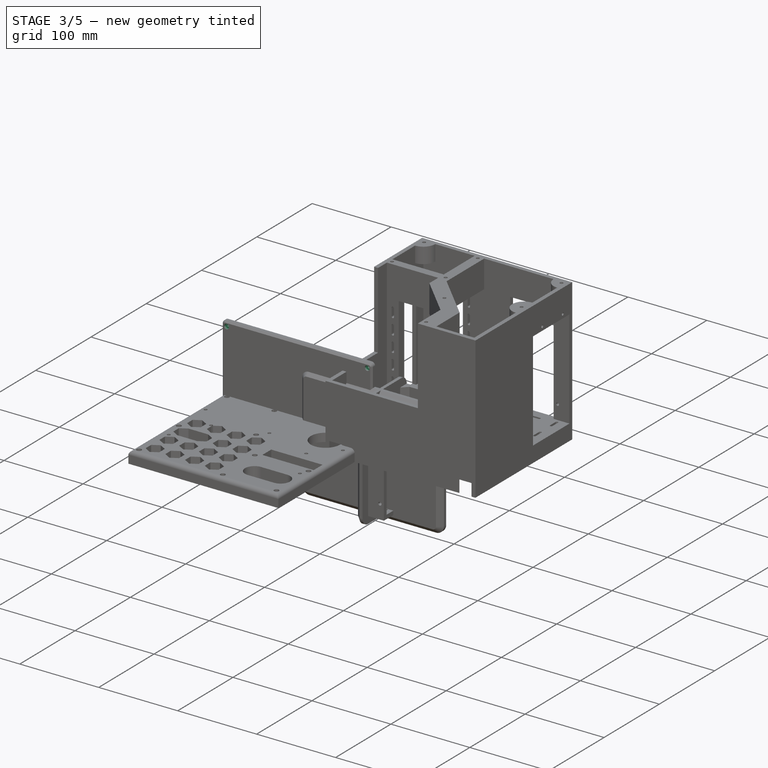
[diagram: stage 3 of 5 — iso view after this stage's code; geometry added in this stage tinted green]
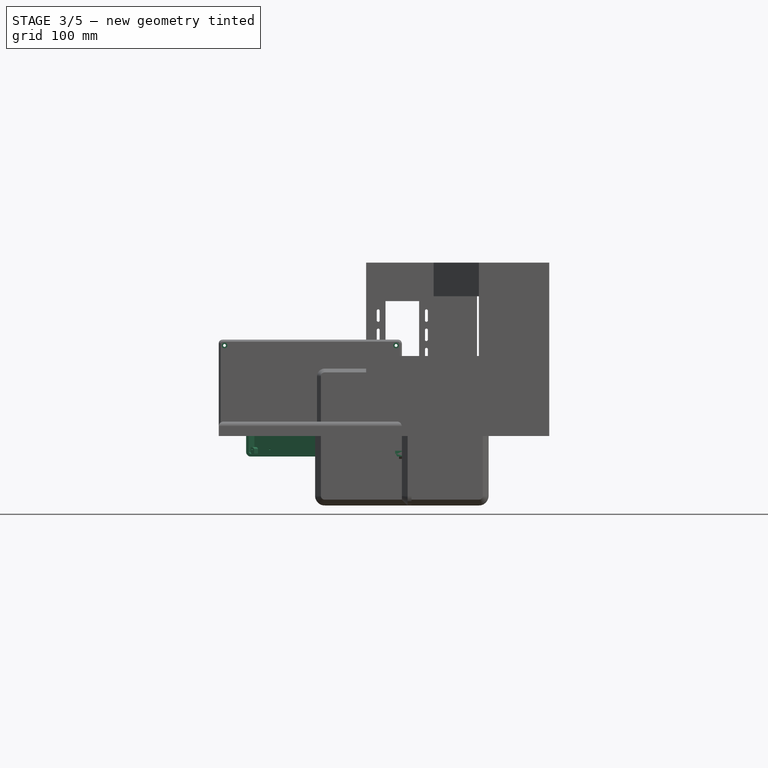
[diagram: stage 3 of 5 — front view after this stage's code; geometry added in this stage tinted green]
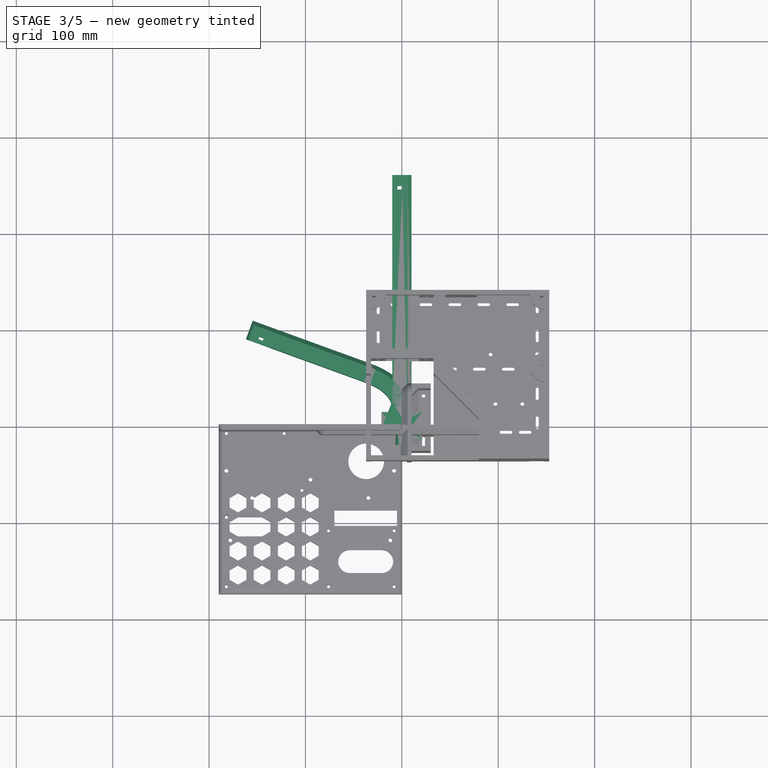
[diagram: stage 3 of 5 — top view after this stage's code; geometry added in this stage tinted green]
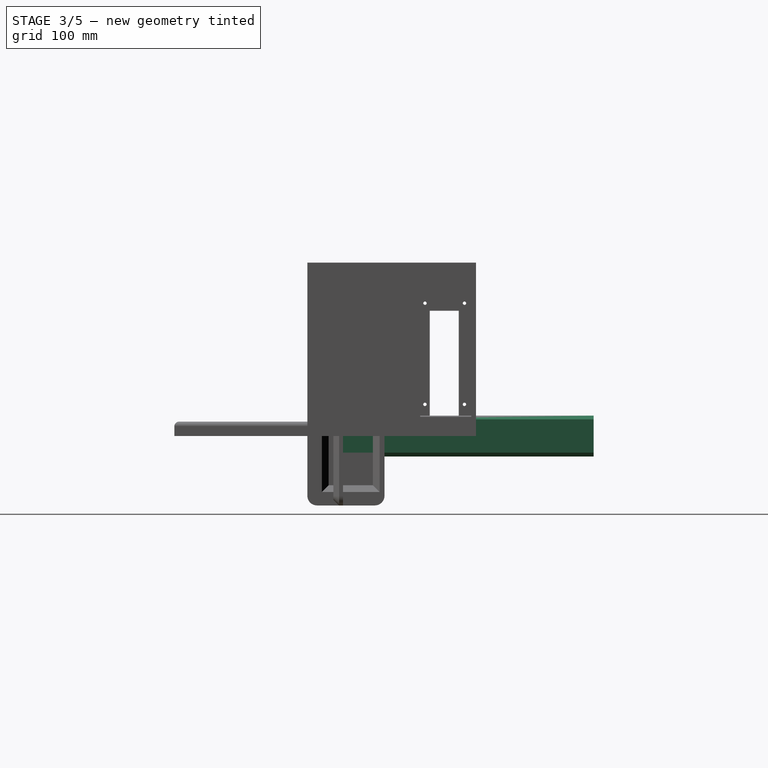
[diagram: stage 3 of 5 — right view after this stage's code; geometry added in this stage tinted green]
FEATURE [Sketcher::SketchObject] Sketch081
  ArcFitTolerance = 1e-06
  AttachmentSupport = -> [Pad006]
  ExternalGeometry = -> [Pad006]
  FullyConstrained = true
  MakeInternals = false
  MapMode = 5
  Placement = pos=(0,-6,0) rot=(1,0,0;1.5708rad)
  sketch-geometry (4):
    g0: Circle CenterX=-184 CenterY=94 CenterZ=0 NormalX=0 NormalY=0 NormalZ=1 AngleXU=0 Radius=1.5
    g1: Circle CenterX=-6 CenterY=94 CenterZ=0 NormalX=0 NormalY=0 NormalZ=1 AngleXU=0 Radius=1.5
    g2: Circle CenterX=-184 CenterY=6 CenterZ=0 NormalX=0 NormalY=0 NormalZ=1 AngleXU=0 Radius=1.5
    g3: Circle CenterX=-6 CenterY=6 CenterZ=0 NormalX=0 NormalY=0 NormalZ=1 AngleXU=0 Radius=1.5
  constraints (12):
    c: Diameter(g0) = 3
    c: Diameter(g1) = 3
    c: Diameter(g3) = 3
    c: Diameter(g2) = 3
    c: Distance(g0,g-3) = 6
    c: Distance(g0,g-4) = 6
    c: Distance(g1,g-3) = 6
    c: Distance(g1,g-2) = 6
    c: Distance(g3,g-1) = 6
    c: DistanceX(g3,g-1) = 6
    c: Distance(g2,g-1) = 6
    c: Distance(g2,g-4) = 6
FEATURE [PartDesign::Pocket] Pocket026
  BaseFeature = -> Pad006
  Direction = (0,1,-2e-16)
  Length = 5
  Length2 = 5
  Placement = pos=(0,0,0) rot=(1,0,0;1.5708rad)
  Profile = -> Sketch081
  ReferenceAxis = -> Sketch081 [N_Axis]
  Refine = true
  Suppressed = false
  Type = 1
FEATURE [Sketcher::SketchObject] Sketch082
  ArcFitTolerance = 1e-06
  FullyConstrained = true
  MakeInternals = false
  MapMode = 5
  Placement = pos=(0,-6,0) rot=(1,0,0;1.5708rad)
  sketch-geometry (4):
    g0: Circle CenterX=-184 CenterY=94 CenterZ=0 NormalX=0 NormalY=0 NormalZ=1 AngleXU=0 Radius=3
    g1: Circle CenterX=-6 CenterY=94 CenterZ=0 NormalX=0 NormalY=0 NormalZ=1 AngleXU=0 Radius=3
    g2: Circle CenterX=-184 CenterY=6 CenterZ=0 NormalX=0 NormalY=0 NormalZ=1 AngleXU=0 Radius=3
    g3: Circle CenterX=-6 CenterY=6 CenterZ=0 NormalX=0 NormalY=0 NormalZ=1 AngleXU=0 Radius=3
  constraints (12):
    c: Diameter(g0) = 6
    c: Diameter(g1) = 6
    c: Diameter(g2) = 6
    c: Diameter(g3) = 6
    c: Distance(g0,g-4) = 6
    c: Distance(g0,g-3) = 6
    c: Distance(g1,g-2) = 6
    c: Distance(g1,g-4) = 6
    c: DistanceY(g-1,g3) = 6
    c: DistanceX(g3,g-1) = 6
    c: Distance(g2,g-1) = 6
    c: Distance(g2,g-3) = 6
FEATURE [PartDesign::Pocket] Pocket027
  BaseFeature = -> Pocket026
  Direction = (0,1,-2e-16)
  Length = 3
  Length2 = 5
  Placement = pos=(0,0,0) rot=(1,0,0;1.5708rad)
  Profile = -> Sketch082
  ReferenceAxis = -> Sketch082 [N_Axis]
  Refine = true
  Suppressed = false
  Type = 0
FEATURE [PartDesign::Body] Body004  label="CameraHolder"
  AllowCompound = false
  Group = -> [Sketch085,Sketch086,AdditivePipe,Sketch110,Pad017,Sketch111,Pocket040,Sketch112,Pocket041,DatumLine001,Sketch113,Pad018,DatumPlane,MultiTransform001,Mirrored001,Mirrored002,Fillet012,Fillet015,Sketch120,Pocket042,Sketch123,Pad024,Sketch124,Pad025,PolarPattern]
  Origin = -> Origin004
  Placement = pos=(-345.108,-26.1578,-137.7) rot=(0.57735,-0.57735,-0.57735;2.0944rad)
  Tip = -> PolarPattern
FEATURE [PartDesign::Mirrored] Mirrored004
  MirrorPlane = -> XY_Plane011
  Placement = pos=(0,0,0) rot=(1,0,0;1.5708rad)
  Refine = true
  Suppressed = false
  TransformMode = 0
FEATURE [Sketcher::SketchObject] Sketch125
  ArcFitTolerance = 1e-06
  AttachmentSupport = -> [XY_Plane011]
  FullyConstrained = true
  MakeInternals = false
  MapMode = 5
  sketch-geometry (8):
    g0: LineSegment StartX=0 StartY=0 StartZ=0 EndX=0 EndY=20 EndZ=0
    g1: LineSegment StartX=-129.969 StartY=89.202 StartZ=0 EndX=-36 EndY=55 EndZ=0
    g2: Circle [constr] CenterX=-36 CenterY=55 CenterZ=0 NormalX=0 NormalY=0 NormalZ=1 AngleXU=0 Radius=1
    g3: Circle [constr] CenterX=-3 CenterY=43 CenterZ=0 NormalX=0 NormalY=0 NormalZ=1 AngleXU=0 Radius=1
    g4: Circle [constr] CenterX=0 CenterY=20 CenterZ=0 NormalX=0 NormalY=0 NormalZ=1 AngleXU=0 Radius=1
    g5: BSplineCurve PolesCount=3 KnotsCount=2 Degree=2 IsPeriodic=0
    g6: GeomPoint [constr] X=-36 Y=55 Z=0
    g7: GeomPoint [constr] X=0 Y=20 Z=0
  constraints (19):
    c: Coincident(g-1,g0)
    c: PointOnObject(g0,g-2)
    c: Weight(g2) = 1
    c: Equal(g2,g3)
    c: Equal(g2,g4)
    c: InternalAlignment(g2,g5)
    c: InternalAlignment(g3,g5)
    c: InternalAlignment(g4,g5)
    c: InternalAlignment(g6,g5)
    c: InternalAlignment(g7,g5)
    c: Coincident(g4,g0)
    c: Coincident(g1,g5)
    c: DistanceY(g0,g0) = 20
    c: DistanceX(g3,g-1) = 3
    c: DistanceY(g5,g3) = 23
    c: DistanceY(g5,g1) = 35
    c: DistanceX(g1,g-1) = 36
    c: Angle(g-2,g1) = 1.22173
    c: Distance(g1,g1) = 100
FEATURE [Sketcher::SketchObject] Sketch126
  ArcFitTolerance = 1e-06
  AttachmentSupport = -> [XZ_Plane011]
  FullyConstrained = true
  MakeInternals = false
  MapMode = 5
  Placement = pos=(0,0,0) rot=(1,0,0;1.5708rad)
  sketch-geometry (10):
    g0: LineSegment StartX=10 StartY=-21.25 StartZ=0 EndX=10 EndY=21.25 EndZ=0
    g1: LineSegment StartX=10 StartY=21.25 StartZ=0 EndX=-10 EndY=21.25 EndZ=0
    g2: LineSegment StartX=-10 StartY=21.25 StartZ=0 EndX=-10 EndY=-21.25 EndZ=0
    g3: LineSegment StartX=-10 StartY=-21.25 StartZ=0 EndX=10 EndY=-21.25 EndZ=0
    g4: GeomPoint [constr] X=0 Y=0 Z=0
    g5: LineSegment StartX=7 StartY=-18.25 StartZ=0 EndX=7 EndY=18.25 EndZ=0
    g6: LineSegment StartX=7 StartY=18.25 StartZ=0 EndX=-7 EndY=18.25 EndZ=0
    g7: LineSegment StartX=-7 StartY=18.25 StartZ=0 EndX=-7 EndY=-18.25 EndZ=0
    g8: LineSegment StartX=-7 StartY=-18.25 StartZ=0 EndX=7 EndY=-18.25 EndZ=0
    g9: GeomPoint [constr] X=0 Y=0 Z=0
  constraints (24):
    c: Coincident(g0,g1)
    c: Coincident(g1,g2)
    c: Coincident(g2,g3)
    c: Coincident(g3,g0)
    c: Vertical(g0)
    c: Vertical(g2)
    c: Horizontal(g1)
    c: Horizontal(g3)
    c: Symmetric(g2,g0,g4)
    c: Coincident(g4,g-1)
    c: DistanceY(g0,g0) = 42.5
    c: DistanceX(g1,g1) = 20
    c: Coincident(g5,g6)
    c: Coincident(g6,g7)
    c: Coincident(g7,g8)
    c: Coincident(g8,g5)
    c: Vertical(g5)
    c: Vertical(g7)
    c: Horizontal(g6)
    c: Horizontal(g8)
    c: Symmetric(g7,g5,g9)
    c: Coincident(g9,g4)
    c: Distance(g0,g5) = 3
    c: Distance(g1,g6) = 3
FEATURE [PartDesign::AdditivePipe] AdditivePipe001
  AuxilleryCurvelinear = true
  AuxillerySpineTangent = false
  Binormal = (0,0,0)
  Mode = 0
  Placement = pos=(0,0,0) rot=(1,0,0;1.5708rad)
  Profile = -> Sketch126
  Refine = true
  Spine = -> Sketch125
  SpineTangent = false
  Suppressed = false
  Transformation = 1
  Transition = 1
FEATURE [Sketcher::SketchObject] Sketch127
  ArcFitTolerance = 1e-06
  AttachmentSupport = -> [AdditivePipe001]
  ExternalGeometry = -> [AdditivePipe001]
  FullyConstrained = true
  MakeInternals = false
  MapMode = 5
  Placement = pos=(-143.439,52.1597,-2.75e-14) rot=(0.701683,-0.123619,-0.701683;3.38758rad)
  sketch-geometry (4):
    g0: LineSegment StartX=-21.25 StartY=-29.4154 StartZ=0 EndX=-21.25 EndY=-49.4154 EndZ=0
    g1: LineSegment StartX=-21.25 StartY=-49.4154 StartZ=0 EndX=21.25 EndY=-49.4154 EndZ=0
    g2: LineSegment StartX=21.25 StartY=-49.4154 StartZ=0 EndX=21.25 EndY=-29.4154 EndZ=0
    g3: LineSegment StartX=21.25 StartY=-29.4154 StartZ=0 EndX=-21.25 EndY=-29.4154 EndZ=0
  constraints (10):
    c: Coincident(g0,g1)
    c: Coincident(g1,g2)
    c: Coincident(g2,g3)
    c: Coincident(g3,g0)
    c: Vertical(g0)
    c: Vertical(g2)
    c: Horizontal(g1)
    c: Horizontal(g3)
    c: Coincident(g0,g-3)
    c: Coincident(g1,g-4)
FEATURE [PartDesign::Pad] Pad026
  BaseFeature = -> AdditivePipe001
  Direction = (-0.939793,0.341743,0)
  Length = 30
  Length2 = 10
  Placement = pos=(0,0,0) rot=(1,0,0;1.5708rad)
  Profile = -> Sketch127
  ReferenceAxis = -> Sketch127 [N_Axis]
  Refine = true
  Suppressed = false
  Type = 0
FEATURE [Sketcher::SketchObject] Sketch128
  ArcFitTolerance = 1e-06
  AttachmentSupport = -> [Pad026]
  ExternalGeometry = -> [Pad026]
  FullyConstrained = true
  MakeInternals = false
  MapMode = 5
  Placement = pos=(10.0525,27.6444,-6.2e-15) rot=(0.970336,-0.170949,-0.170949;1.6009rad)
  sketch-geometry (5):
    g0: LineSegment StartX=-179.628 StartY=-18.25 StartZ=0 EndX=-179.628 EndY=18.25 EndZ=0
    g1: LineSegment StartX=-179.628 StartY=18.25 StartZ=0 EndX=-155.628 EndY=18.25 EndZ=0
    g2: LineSegment StartX=-155.628 StartY=18.25 StartZ=0 EndX=-155.628 EndY=-18.25 EndZ=0
    g3: LineSegment StartX=-155.628 StartY=-18.25 StartZ=0 EndX=-179.628 EndY=-18.25 EndZ=0
    g4: GeomPoint [constr] X=-167.628 Y=-1.98e-14 Z=0
  constraints (12):
    c: Coincident(g0,g1)
    c: Coincident(g1,g2)
    c: Coincident(g2,g3)
    c: Coincident(g3,g0)
    c: Vertical(g0)
    c: Vertical(g2)
    c: Horizontal(g1)
    c: Horizontal(g3)
    c: Symmetric(g2,g0,g4)
    c: Symmetric(g-3,g-4,g4)
    c: Distance(g-3,g1) = 3
    c: Distance(g-4,g0) = 3
FEATURE [PartDesign::Pocket] Pocket045
  BaseFeature = -> Pad026
  Direction = (0.341743,0.939793,0)
  Length = 17
  Length2 = 5
  Placement = pos=(0,0,0) rot=(1,0,0;1.5708rad)
  Profile = -> Sketch128
  ReferenceAxis = -> Sketch128 [N_Axis]
  Refine = true
  Suppressed = false
  Type = 0
FEATURE [Sketcher::SketchObject] Sketch129
  ArcFitTolerance = 1e-06
  AttachmentSupport = -> [Pocket045]
  ExternalGeometry = -> [Pocket045]
  FullyConstrained = true
  MakeInternals = false
  MapMode = 5
  Placement = pos=(-143.439,52.1597,0) rot=(0.701683,-0.123619,0.701683;2.8956rad)
  sketch-geometry (5):
    g0: LineSegment StartX=-11.5 StartY=-46.4154 StartZ=0 EndX=11.5 EndY=-46.4154 EndZ=0
    g1: LineSegment StartX=11.5 StartY=-46.4154 StartZ=0 EndX=11.5 EndY=-32.4154 EndZ=0
    g2: LineSegment StartX=11.5 StartY=-32.4154 StartZ=0 EndX=-11.5 EndY=-32.4154 EndZ=0
    g3: LineSegment StartX=-11.5 StartY=-32.4154 StartZ=0 EndX=-11.5 EndY=-46.4154 EndZ=0
    g4: GeomPoint [constr] X=0 Y=-39.4154 Z=0
  constraints (13):
    c: Coincident(g0,g1)
    c: Coincident(g1,g2)
    c: Coincident(g2,g3)
    c: Coincident(g3,g0)
    c: Horizontal(g0)
    c: Horizontal(g2)
    c: Vertical(g1)
    c: Vertical(g3)
    c: Symmetric(g2,g0,g4)
    c: PointOnObject(g4,g-2)
    c: DistanceY(g3,g3) = 14
    c: DistanceX(g2,g2) = 23
    c: Horizontal(g-4,g0)
FEATURE [PartDesign::Pocket] Pocket046
  BaseFeature = -> Pocket045
  Direction = (-0.939793,0.341743,2e-16)
  Length = 11
  Length2 = 5
  Placement = pos=(0,0,0) rot=(1,0,0;1.5708rad)
  Profile = -> Sketch129
  ReferenceAxis = -> Sketch129 [N_Axis]
  Refine = true
  Suppressed = false
  Type = 0
FEATURE [Sketcher::SketchObject] Sketch130
  ArcFitTolerance = 1e-06
  AttachmentSupport = -> [Pocket046]
  ExternalGeometry = -> [Pocket046]
  FullyConstrained = true
  MakeInternals = false
  MapMode = 5
  Placement = pos=(15.8621,43.6209,-7e-15) rot=(0.970336,-0.170949,-0.170949;1.6009rad)
  sketch-geometry (6):
    g0: ArcOfCircle CenterX=-158.378 CenterY=13.75 CenterZ=0 NormalX=0 NormalY=0 NormalZ=1 AngleXU=0 Radius=2.25 StartAngle=3.14159 EndAngle=4.71239
    g1: LineSegment StartX=-160.628 StartY=13.75 StartZ=0 EndX=-160.628 EndY=18.25 EndZ=0
    g2: LineSegment StartX=-160.628 StartY=18.25 StartZ=0 EndX=-155.628 EndY=18.25 EndZ=0
    g3: LineSegment StartX=-158.378 StartY=11.5 StartZ=0 EndX=-155.628 EndY=11.5 EndZ=0
    g4: LineSegment StartX=-155.628 StartY=18.25 StartZ=0 EndX=-155.628 EndY=11.5 EndZ=0
    g5: Circle CenterX=-158.378 CenterY=13.75 CenterZ=0 NormalX=0 NormalY=0 NormalZ=1 AngleXU=0 Radius=0.75
  constraints (16):
    c: Coincident(g4,g2)
    c: Coincident(g4,g3)
    c: Diameter(g5) = 1.5
    c: Coincident(g1,g2)
    c: Coincident(g0,g1)
    c: Vertical(g1)
    c: Coincident(g2,g-3)
    c: Coincident(g3,g-5)
    c: Horizontal(g3)
    c: Coincident(g0,g3)
    c: Horizontal(g2)
    c: Distance(g5,g4) = 2.75
    c: Distance(g5,g-3) = 4.5
    c: Coincident(g0,g5)
    c: Horizontal(g0,g0)
    c: Vertical(g0,g0)
FEATURE [PartDesign::Pad] Pad027
  BaseFeature = -> Pocket046
  Direction = (-0.341743,-0.939793,0)
  Length = 12
  Length2 = 10
  Placement = pos=(0,0,0) rot=(1,0,0;1.5708rad)
  Profile = -> Sketch130
  ReferenceAxis = -> Sketch130 [N_Axis]
  Refine = true
  Suppressed = false
  Type = 0
FEATURE [PartDesign::Plane] DatumPlane001
  AttachmentOffset = pos=(0,0,-12.5) rot=(0,0,1;0rad)
  AttachmentSupport = -> [Sketch128]
  Length = 209.027
  MapMode = 7
  Placement = pos=(-147.953,85.1011,-18.25) rot=(0.710454,0.497622,0.497622;1.90618rad)
  ResizeMode = 0
  Width = 69.4708
FEATURE [PartDesign::Mirrored] Mirrored005
  MirrorPlane = -> DatumPlane001
  Placement = pos=(0,0,0) rot=(1,0,0;1.5708rad)
  Refine = true
  Suppressed = false
  TransformMode = 0
FEATURE [PartDesign::MultiTransform] MultiTransform002
  BaseFeature = -> Pad027
  Originals = -> [Pad027]
  Placement = pos=(0,0,0) rot=(1,0,0;1.5708rad)
  Refine = true
  Suppressed = false
  TransformMode = 0
  Transformations = -> [Mirrored004,Mirrored005]
FEATURE [Sketcher::SketchObject] Sketch134
  ArcFitTolerance = 1e-06
  AttachmentSupport = -> [XY_Plane012]
  FullyConstrained = true
  MakeInternals = false
  MapMode = 5
  sketch-geometry (1):
    g0: LineSegment StartX=0 StartY=0 StartZ=0 EndX=0 EndY=260 EndZ=0
  constraints (3):
    c: Distance(g0) = 260
    c: Coincident(g0,g-1)
    c: PointOnObject(g0,g-2)
FEATURE [Sketcher::SketchObject] Sketch135
  ArcFitTolerance = 1e-06
  AttachmentSupport = -> [XZ_Plane012]
  FullyConstrained = true
  MakeInternals = false
  MapMode = 5
  Placement = pos=(0,0,0) rot=(1,0,0;1.5708rad)
  sketch-geometry (10):
    g0: LineSegment StartX=10 StartY=-21.25 StartZ=0 EndX=10 EndY=21.25 EndZ=0
    g1: LineSegment StartX=10 StartY=21.25 StartZ=0 EndX=-10 EndY=21.25 EndZ=0
    g2: LineSegment StartX=-10 StartY=21.25 StartZ=0 EndX=-10 EndY=-21.25 EndZ=0
    g3: LineSegment StartX=-10 StartY=-21.25 StartZ=0 EndX=10 EndY=-21.25 EndZ=0
    g4: GeomPoint [constr] X=0 Y=0 Z=0
    g5: LineSegment StartX=7 StartY=-18.25 StartZ=0 EndX=7 EndY=18.25 EndZ=0
    g6: LineSegment StartX=7 StartY=18.25 StartZ=0 EndX=-7 EndY=18.25 EndZ=0
    g7: LineSegment StartX=-7 StartY=18.25 StartZ=0 EndX=-7 EndY=-18.25 EndZ=0
    g8: LineSegment StartX=-7 StartY=-18.25 StartZ=0 EndX=7 EndY=-18.25 EndZ=0
    g9: GeomPoint [constr] X=0 Y=0 Z=0
  constraints (24):
    c: Coincident(g0,g1)
    c: Coincident(g1,g2)
    c: Coincident(g2,g3)
    c: Coincident(g3,g0)
    c: Vertical(g0)
    c: Vertical(g2)
    c: Horizontal(g1)
    c: Horizontal(g3)
    c: Symmetric(g2,g0,g4)
    c: Coincident(g4,g-1)
    c: DistanceY(g0,g0) = 42.5
    c: DistanceX(g1,g1) = 20
    c: Coincident(g5,g6)
    c: Coincident(g6,g7)
    c: Coincident(g7,g8)
    c: Coincident(g8,g5)
    c: Vertical(g5)
    c: Vertical(g7)
    c: Horizontal(g6)
    c: Horizontal(g8)
    c: Symmetric(g7,g5,g9)
    c: Coincident(g9,g4)
    c: Distance(g0,g5) = 3
    c: Distance(g1,g6) = 3
FEATURE [PartDesign::AdditivePipe] AdditivePipe002
  AuxilleryCurvelinear = true
  AuxillerySpineTangent = false
  Binormal = (0,0,0)
  Mode = 0
  Placement = pos=(0,0,0) rot=(1,0,0;1.5708rad)
  Profile = -> Sketch135
  Refine = true
  Spine = -> Sketch134
  SpineTangent = false
  Suppressed = false
  Transformation = 1
  Transition = 1
FEATURE [Sketcher::SketchObject] Sketch144
  ArcFitTolerance = 1e-06
  AttachmentSupport = -> [XY_Plane013]
  FullyConstrained = true
  MakeInternals = false
  MapMode = 5
  sketch-geometry (6):
    g0: LineSegment StartX=-21.25 StartY=-14.5 StartZ=0 EndX=21.25 EndY=-14.5 EndZ=0
    g1: LineSegment StartX=21.25 StartY=-14.5 StartZ=0 EndX=21.25 EndY=14.5 EndZ=0
    g2: LineSegment StartX=21.25 StartY=14.5 StartZ=0 EndX=-21.25 EndY=14.5 EndZ=0
    g3: LineSegment StartX=-21.25 StartY=14.5 StartZ=0 EndX=-21.25 EndY=-14.5 EndZ=0
    g4: GeomPoint [constr] X=0 Y=0 Z=0
    g5: Circle CenterX=0 CenterY=0 CenterZ=0 NormalX=0 NormalY=0 NormalZ=1 AngleXU=0 Radius=10
  constraints (14):
    c: Coincident(g0,g1)
    c: Coincident(g1,g2)
    c: Coincident(g2,g3)
    c: Coincident(g3,g0)
    c: Horizontal(g0)
    c: Horizontal(g2)
    c: Vertical(g1)
    c: Vertical(g3)
    c: Symmetric(g2,g0,g4)
    c: Distance(g1,g3) = 42.5
    c: Distance(g0,g2) = 29
    c: Coincident(g4,g-1)
    c: Diameter(g5) = 20
    c: Coincident(g5,g4)
FEATURE [PartDesign::Pad] Pad034
  Direction = (0,0,1)
  Length = 3
  Length2 = 10
  Profile = -> Sketch144
  ReferenceAxis = -> Sketch144 [N_Axis]
  Refine = true
  Suppressed = false
  Type = 0
FEATURE [PartDesign::Body] Body013  label="CameraLidType2"
  AllowCompound = false
  Group = -> [Sketch144,Pad034,Sketch146,Pad036,Mirrored010,Fillet021,Chamfer004]
  Origin = -> Origin013
  Placement = pos=(-357.519,122.995,204.71) rot=(1,0,0;0.349066rad)
  Tip = -> Chamfer004
FEATURE [Sketcher::SketchObject] Sketch147
  ArcFitTolerance = 1e-06
  AttachmentSupport = -> [AdditivePipe002]
  ExternalGeometry = -> [AdditivePipe002]
  FullyConstrained = true
  MakeInternals = false
  MapMode = 5
  Placement = pos=(0,0,0) rot=(1,0,0;1.5708rad)
  sketch-geometry (4):
    g0: LineSegment StartX=-4.76795 StartY=21.25 StartZ=0 EndX=4.79795 EndY=21.25 EndZ=0
    g1: LineSegment StartX=4.79795 StartY=21.25 StartZ=0 EndX=6.53 EndY=18.25 EndZ=0
    g2: LineSegment StartX=6.53 StartY=18.25 StartZ=0 EndX=-6.5 EndY=18.25 EndZ=0
    g3: LineSegment StartX=-6.5 StartY=18.25 StartZ=0 EndX=-4.76795 EndY=21.25 EndZ=0
  constraints (12):
    c: PointOnObject(g0,g-4)
    c: PointOnObject(g0,g-4)
    c: Coincident(g0,g1)
    c: PointOnObject(g1,g-3)
    c: Coincident(g1,g2)
    c: PointOnObject(g2,g-3)
    c: Coincident(g2,g3)
    c: Coincident(g3,g0)
    c: Angle(g2,g3) = 1.0472
    c: Angle(g1,g2) = 1.0472
    c: Distance(g2,g-2) = 6.5
    c: Distance(g1,g-2) = 6.53
FEATURE [PartDesign::Chamfer] Chamfer005
  Angle = 45
  Base = -> MultiTransform002 [Edge12,Edge28,Edge43,Edge31,Edge30,Edge38,Edge10,Edge9]
  BaseFeature = -> MultiTransform002
  ChamferType = 0
  FlipDirection = false
  Placement = pos=(0,0,0) rot=(1,0,0;1.5708rad)
  Refine = true
  Size = 4
  Size2 = 1
  SupportTransform = false
  Suppressed = false
  UseAllEdges = false
FEATURE [PartDesign::Fillet] Fillet017
  Base = -> Chamfer005 [Edge28,Edge20]
  BaseFeature = -> Chamfer005
  Placement = pos=(0,0,0) rot=(1,0,0;1.5708rad)
  Radius = 5
  Refine = true
  SupportTransform = false
  Suppressed = false
  UseAllEdges = false
FEATURE [PartDesign::Fillet] Fillet018
  Base = -> Fillet017 [Edge65,Edge59,Edge66,Edge72]
  BaseFeature = -> Fillet017
  Placement = pos=(0,0,0) rot=(1,0,0;1.5708rad)
  Radius = 2
  Refine = true
  SupportTransform = false
  Suppressed = false
  UseAllEdges = false
FEATURE [Sketcher::SketchObject] Sketch131
  ArcFitTolerance = 1e-06
  AttachmentSupport = -> [Fillet018]
  ExternalGeometry = -> [Fillet018]
  FullyConstrained = true
  MakeInternals = false
  MapMode = 5
  Placement = pos=(0,4e-15,18.25) rot=(1,0,0;3.14159rad)
  sketch-geometry (4):
    g0: LineSegment StartX=-144.237 StartY=-88.0059 StartZ=0 EndX=-148.936 EndY=-89.7146 EndZ=0
    g1: LineSegment StartX=-148.936 StartY=-89.7146 StartZ=0 EndX=-147.911 EndY=-92.534 EndZ=0
    g2: LineSegment StartX=-147.911 StartY=-92.534 StartZ=0 EndX=-143.212 EndY=-90.8253 EndZ=0
    g3: LineSegment StartX=-143.212 StartY=-90.8253 StartZ=0 EndX=-144.237 EndY=-88.0059 EndZ=0
  constraints (12):
    c: Coincident(g0,g1)
    c: Coincident(g1,g2)
    c: Coincident(g2,g3)
    c: Parallel(g0,g-5)
    c: Coincident(g0,g3)
    c: Angle(g3,g-4) = 1.5708
    c: Angle(g-3,g1) = 1.5708
    c: Parallel(g2,g0)
    c: Distance(g-5,g0) = 4
    c: Distance(g1,g1) = 3
    c: Distance(g-3,g1) = 5
    c: Distance(g-4,g3) = 5
FEATURE [PartDesign::Pocket] Pocket047
  BaseFeature = -> Fillet018
  Direction = (0,0,1)
  Length = 5
  Length2 = 5
  Midplane = true
  Placement = pos=(0,0,0) rot=(1,0,0;1.5708rad)
  Profile = -> Sketch131
  ReferenceAxis = -> Sketch131 [N_Axis]
  Refine = true
  Suppressed = false
  Type = 1
FEATURE [Sketcher::SketchObject] Sketch132
  ArcFitTolerance = 1e-06
  AttachmentOffset = pos=(0,0,-10) rot=(0,0,1;0rad)
  AttachmentSupport = -> [Fillet018]
  ExternalGeometry = -> [Fillet018]
  FullyConstrained = true
  MakeInternals = false
  MapMode = 5
  Placement = pos=(0,10,-2.2e-15) rot=(1,0,0;1.5708rad)
  sketch-geometry (12):
    g0: LineSegment StartX=-7 StartY=18.25 StartZ=0 EndX=-7 EndY=15.25 EndZ=0
    g1: LineSegment StartX=-7 StartY=15.25 StartZ=0 EndX=1.75736 EndY=15.25 EndZ=0
    g2: LineSegment StartX=3 StartY=18.25 StartZ=0 EndX=-7 EndY=18.25 EndZ=0
    g3: LineSegment StartX=1.75736 StartY=15.25 StartZ=0 EndX=4 EndY=13.0074 EndZ=0
    g4: LineSegment StartX=4 StartY=13.0074 StartZ=0 EndX=4 EndY=-13.0074 EndZ=0
    g5: LineSegment StartX=4 StartY=-13.0074 StartZ=0 EndX=1.75736 EndY=-15.25 EndZ=0
    g6: LineSegment StartX=1.75736 StartY=-15.25 StartZ=0 EndX=-7 EndY=-15.25 EndZ=0
    g7: LineSegment StartX=-7 StartY=-15.25 StartZ=0 EndX=-7 EndY=-18.25 EndZ=0
    g8: LineSegment StartX=-7 StartY=-18.25 StartZ=0 EndX=3 EndY=-18.25 EndZ=0
    g9: LineSegment StartX=3 StartY=-18.25 StartZ=0 EndX=7 EndY=-14.25 EndZ=0
    g10: LineSegment StartX=7 StartY=-14.25 StartZ=0 EndX=7 EndY=14.25 EndZ=0
    g11: LineSegment StartX=7 StartY=14.25 StartZ=0 EndX=3 EndY=18.25 EndZ=0
  constraints (30):
    c: Coincident(g0,g1)
    c: Coincident(g2,g0)
    c: Vertical(g0)
    c: Horizontal(g1)
    c: Coincident(g0,g-3)
    c: Coincident(g1,g3)
    c: Coincident(g3,g4)
    c: Vertical(g4)
    c: Coincident(g4,g5)
    c: Coincident(g5,g6)
    c: Horizontal(g6)
    c: Coincident(g6,g7)
    c: Coincident(g7,g-7)
    c: Coincident(g7,g8)
    c: Coincident(g8,g-7)
    c: Coincident(g8,g9)
    c: Coincident(g9,g-6)
    c: Coincident(g9,g10)
    c: Coincident(g10,g-5)
    c: Coincident(g10,g11)
    c: Coincident(g11,g2)
    c: Parallel(g3,g11)
    c: Parallel(g5,g9)
    c: Vertical(g7)
    c: Coincident(g2,g-4)
    c: DistanceY(g0,g0) = 3
    c: Distance(g7,g7) = 3
    c: Distance(g10,g4) = 3
    c: Distance(g9,g5) = 3
    c: Distance(g11,g3) = 3
FEATURE [PartDesign::Pad] Pad028
  BaseFeature = -> Pocket047
  Direction = (0,-1,2e-16)
  Length = 25
  Length2 = 10
  Placement = pos=(0,0,0) rot=(1,0,0;1.5708rad)
  Profile = -> Sketch132
  ReferenceAxis = -> Sketch132 [N_Axis]
  Refine = true
  Suppressed = false
  Type = 0
FEATURE [Sketcher::SketchObject] Sketch133
  ArcFitTolerance = 1e-06
  AttachmentOffset = pos=(0,0,-5) rot=(0,0,1;0rad)
  AttachmentSupport = -> [Pad028]
  ExternalGeometry = -> [Pad028]
  FullyConstrained = true
  MakeInternals = false
  MapMode = 5
  Placement = pos=(-2,0,1.1e-15) rot=(0.707107,0,-0.707107;3.14159rad)
  sketch-geometry (4):
    g0: LineSegment StartX=-18.25 StartY=15 StartZ=0 EndX=-18.25 EndY=11 EndZ=0
    g1: LineSegment StartX=-18.25 StartY=11 StartZ=0 EndX=-20.25 EndY=11 EndZ=0
    g2: LineSegment StartX=-20.25 StartY=11 StartZ=0 EndX=-20.25 EndY=13 EndZ=0
    g3: LineSegment StartX=-20.25 StartY=13 StartZ=0 EndX=-18.25 EndY=15 EndZ=0
  constraints (11):
    c: Coincident(g-3,g0)
    c: PointOnObject(g0,g-3)
    c: Coincident(g0,g1)
    c: Horizontal(g1)
    c: Coincident(g1,g2)
    c: Vertical(g2)
    c: Coincident(g2,g3)
    c: Coincident(g3,g0)
    c: DistanceY(g2,g2) = 2
    c: DistanceY(g0,g0) = 4
    c: DistanceX(g1,g1) = 2
FEATURE [PartDesign::Pad] Pad029
  BaseFeature = -> Pad028
  Direction = (-1,0,-2e-16)
  Length = 5
  Length2 = 10
  Midplane = true
  Placement = pos=(0,0,0) rot=(1,0,0;1.5708rad)
  Profile = -> Sketch133
  ReferenceAxis = -> Sketch133 [N_Axis]
  Refine = true
  Suppressed = false
  Type = 0
FEATURE [PartDesign::Chamfer] Chamfer006
  Angle = 45
  Base = -> AdditivePipe002 [Edge10,Edge9,Edge22,Edge21]
  BaseFeature = -> AdditivePipe002
  ChamferType = 0
  FlipDirection = false
  Placement = pos=(0,0,0) rot=(1,0,0;1.5708rad)
  Refine = true
  Size = 4
  Size2 = 1
  SupportTransform = false
  Suppressed = false
  UseAllEdges = false
FEATURE [PartDesign::Pad] Pad037
  BaseFeature = -> Chamfer006
  Direction = (0,-1,2e-16)
  Length = 20
  Length2 = 10
  Placement = pos=(0,0,0) rot=(1,0,0;1.5708rad)
  Profile = -> Sketch147
  ReferenceAxis = -> Sketch147 [N_Axis]
  Refine = true
  Suppressed = false
  Type = 0
FEATURE [Sketcher::SketchObject] Sketch148
  ArcFitTolerance = 1e-06
  AttachmentOffset = pos=(0,0,-10) rot=(0,0,1;0rad)
  AttachmentSupport = -> [Pad037]
  ExternalGeometry = -> [Pad037]
  FullyConstrained = true
  MakeInternals = false
  MapMode = 5
  Placement = pos=(0,0,2.2e-15) rot=(0.707107,0,0.707107;3.14159rad)
  sketch-geometry (4):
    g0: LineSegment StartX=21.25 StartY=20 StartZ=0 EndX=23.75 EndY=17.7 EndZ=0
    g1: LineSegment StartX=23.75 StartY=17.7 StartZ=0 EndX=23.75 EndY=15.2 EndZ=0
    g2: LineSegment StartX=23.75 StartY=15.2 StartZ=0 EndX=21.25 EndY=15.2 EndZ=0
    g3: LineSegment StartX=21.25 StartY=15.2 StartZ=0 EndX=21.25 EndY=20 EndZ=0
  constraints (11):
    c: Coincident(g-3,g0)
    c: Coincident(g0,g1)
    c: Vertical(g1)
    c: Coincident(g1,g2)
    c: PointOnObject(g2,g-3)
    c: Horizontal(g2)
    c: Coincident(g2,g3)
    c: Coincident(g3,g0)
    c: DistanceY(g3,g3) = 4.8
    c: DistanceY(g1,g1) = 2.5
    c: DistanceX(g2,g2) = 2.5
FEATURE [PartDesign::Pad] Pad038
  BaseFeature = -> Pad037
  Direction = (1,0,-2e-16)
  Length = 6
  Length2 = 10
  Midplane = true
  Placement = pos=(0,0,0) rot=(1,0,0;1.5708rad)
  Profile = -> Sketch148
  ReferenceAxis = -> Sketch148 [N_Axis]
  Refine = true
  Suppressed = false
  Type = 0
FEATURE [PartDesign::Mirrored] Mirrored011
  BaseFeature = -> Pad038
  MirrorPlane = -> Sketch148 [V_Axis]
  Originals = -> [Pad038,Pad037]
  Placement = pos=(0,0,0) rot=(1,0,0;1.5708rad)
  Refine = true
  Suppressed = false
  TransformMode = 0
FEATURE [PartDesign::Mirrored] Mirrored012
  BaseFeature = -> Pad029
  MirrorPlane = -> Sketch133 [V_Axis]
  Originals = -> [Pad029]
  Placement = pos=(0,0,0) rot=(1,0,0;1.5708rad)
  Refine = true
  Suppressed = false
  TransformMode = 0
FEATURE [Sketcher::SketchObject] Sketch149
  ArcFitTolerance = 1e-06
  AttachmentSupport = -> [Mirrored012]
  ExternalGeometry = -> [Mirrored012]
  FullyConstrained = true
  MakeInternals = false
  MapMode = 5
  Placement = pos=(0,-15,3.5e-15) rot=(1,0,0;1.5708rad)
  sketch-geometry (8):
    g0: LineSegment StartX=3 StartY=18.25 StartZ=0 EndX=1.75736 EndY=15.25 EndZ=0
    g1: LineSegment StartX=1.75736 StartY=15.25 StartZ=0 EndX=4 EndY=13.0074 EndZ=0
    g2: LineSegment StartX=4 StartY=13.0074 StartZ=0 EndX=7 EndY=14.25 EndZ=0
    g3: LineSegment StartX=7 StartY=14.25 StartZ=0 EndX=3 EndY=18.25 EndZ=0
    g4: LineSegment StartX=7 StartY=-14.25 StartZ=0 EndX=4 EndY=-13.0074 EndZ=0
    g5: LineSegment StartX=4 StartY=-13.0074 StartZ=0 EndX=1.75736 EndY=-15.25 EndZ=0
    g6: LineSegment StartX=1.75736 StartY=-15.25 StartZ=0 EndX=3 EndY=-18.25 EndZ=0
    g7: LineSegment StartX=3 StartY=-18.25 StartZ=0 EndX=7 EndY=-14.25 EndZ=0
  constraints (16):
    c: Coincident(g-3,g0)
    c: Coincident(g0,g-4)
    c: Coincident(g0,g1)
    c: Coincident(g1,g-4)
    c: Coincident(g1,g2)
    c: Coincident(g2,g-3)
    c: Coincident(g2,g3)
    c: Coincident(g3,g0)
    c: Coincident(g-5,g4)
    c: Coincident(g4,g-6)
    c: Coincident(g4,g5)
    c: Coincident(g5,g-6)
    c: Coincident(g5,g6)
    c: Coincident(g6,g-5)
    c: Coincident(g6,g7)
    c: Coincident(g7,g4)
FEATURE [Sketcher::SketchObject] Sketch150
  ArcFitTolerance = 1e-06
  AttachmentSupport = -> [Chamfer006]
  ExternalGeometry = -> [Mirrored011]
  FullyConstrained = true
  MakeInternals = false
  MapMode = 5
  Placement = pos=(0,4.7e-15,21.25) rot=(0,0,1;3.14159rad)
  sketch-geometry (5):
    g0: LineSegment StartX=4.6 StartY=-249.1 StartZ=0 EndX=4.6 EndY=-244.85 EndZ=0
    g1: LineSegment StartX=4.6 StartY=-244.85 StartZ=0 EndX=-0.6 EndY=-244.85 EndZ=0
    g2: LineSegment StartX=-0.6 StartY=-244.85 StartZ=0 EndX=-0.6 EndY=-249.1 EndZ=0
    g3: LineSegment StartX=-0.6 StartY=-249.1 StartZ=0 EndX=4.6 EndY=-249.1 EndZ=0
    g4: GeomPoint [constr] X=2 Y=-246.975 Z=0
  constraints (13):
    c: Coincident(g0,g1)
    c: Coincident(g1,g2)
    c: Coincident(g2,g3)
    c: Coincident(g3,g0)
    c: Vertical(g0)
    c: Vertical(g2)
    c: Horizontal(g1)
    c: Horizontal(g3)
    c: Symmetric(g2,g0,g4)
    c: DistanceX(g3,g3) = 5.2
    c: Distance(g-5,g0) = 2.4
    c: Distance(g-3,g3) = 10.9
    c: DistanceY(g2,g2) = 4.25
FEATURE [PartDesign::Pocket] Pocket048
  BaseFeature = -> Mirrored011
  Direction = (0,0,-1)
  Length = 5
  Length2 = 5
  Placement = pos=(0,0,0) rot=(1,0,0;1.5708rad)
  Profile = -> Sketch150
  ReferenceAxis = -> Sketch150 [N_Axis]
  Refine = true
  Suppressed = false
  Type = 1
FEATURE [PartDesign::Pocket] Pocket049
  BaseFeature = -> Mirrored012
  Direction = (0,1,-2e-16)
  Length = 15
  Length2 = 5
  Placement = pos=(0,0,0) rot=(1,0,0;1.5708rad)
  Profile = -> Sketch149
  ReferenceAxis = -> Sketch149 [N_Axis]
  Refine = true
  Suppressed = false
  Type = 0
FEATURE [PartDesign::Body] Body011  label="CameraHolderType2"
  AllowCompound = false
  Group = -> [Sketch125,Sketch126,AdditivePipe001,Sketch127,Pad026,Sketch128,Pocket045,Sketch129,Pocket046,Sketch130,Pad027,DatumPlane001,MultiTransform002,Chamfer005,Mirrored004,Mirrored005,Fillet017,Fillet018,Sketch131,Pocket047,Sketch132,Pad028,Sketch133,Pad029,Mirrored012,Sketch149,Pocket049]
  Origin = -> Origin011
  Placement = pos=(-357.519,-26.1578,122.9) rot=(0.57735,-0.57735,-0.57735;2.0944rad)
  Tip = -> Pocket049
FEATURE [Sketcher::SketchObject] Sketch151
  ArcFitTolerance = 1e-06
  AttachmentSupport = -> [Pocket048]
  ExternalGeometry = -> [Pocket048]
  FullyConstrained = true
  MakeInternals = false
  MapMode = 5
  Placement = pos=(0,-8.9e-15,-21.25) rot=(1,0,0;3.14159rad)
  sketch-geometry (3):
    g0: LineSegment StartX=-20 StartY=0 StartZ=0 EndX=-10 EndY=4e-16 EndZ=0
    g1: LineSegment StartX=-10 StartY=4e-16 StartZ=0 EndX=-10 EndY=-25 EndZ=0
    g2: LineSegment StartX=-10 StartY=-25 StartZ=0 EndX=-20 EndY=0 EndZ=0
  constraints (8):
    c: PointOnObject(g0,g-1)
    c: Coincident(g0,g-3)
    c: Coincident(g0,g1)
    c: PointOnObject(g1,g-3)
    c: Coincident(g1,g2)
    c: Coincident(g2,g0)
    c: DistanceX(g0,g0) = 10
    c: DistanceY(g1,g1) = 25
FEATURE [PartDesign::Pad] Pad039
  BaseFeature = -> Pocket048
  Direction = (0,0,-1)
  Length = 42.5
  Length2 = 10
  Placement = pos=(0,0,0) rot=(1,0,0;1.5708rad)
  Profile = -> Sketch151
  ReferenceAxis = -> Sketch151 [N_Axis]
  Refine = true
  Reversed = true
  Suppressed = false
  Type = 0
FEATURE [PartDesign::Body] Body012  label="CameraHolderType2Bottom"
  AllowCompound = false
  Group = -> [Sketch134,Sketch135,AdditivePipe002,Chamfer006,Sketch147,Pad037,Sketch148,Pad038,Mirrored011,Sketch150,Pocket048,Sketch151,Pad039]
  Origin = -> Origin012
  Placement = pos=(-357.519,-26.1578,-137.1) rot=(0.57735,-0.57735,-0.57735;2.0944rad)
  Tip = -> Pad039
FEATURE [App::LinkGroup] LinkGroup001  label="CameraGroup"
  ElementList = -> [Body004,Body005,Body009,Body010,Body011,Body013,Body012]
  LinkMode = 0
  Placement = pos=(232.208,-136.742,249.2) rot=(0,0,1;0rad)
FEATURE [PartDesign::Fillet] Fillet022
  Base = -> Pocket027 [Edge8,Edge2,Edge1,Edge5]
  BaseFeature = -> Pocket027
  Placement = pos=(0,0,0) rot=(1,0,0;1.5708rad)
  Radius = 4
  Refine = true
  SupportTransform = false
  Suppressed = false
  UseAllEdges = false
FEATURE [PartDesign::Chamfer] Chamfer007
  Angle = 45
  Base = -> Fillet022 [Edge21]
  BaseFeature = -> Fillet022
  ChamferType = 0
  FlipDirection = false
  Placement = pos=(0,0,0) rot=(1,0,0;1.5708rad)
  Refine = true
  Size = 2
  Size2 = 1
  SupportTransform = false
  Suppressed = false
  UseAllEdges = false
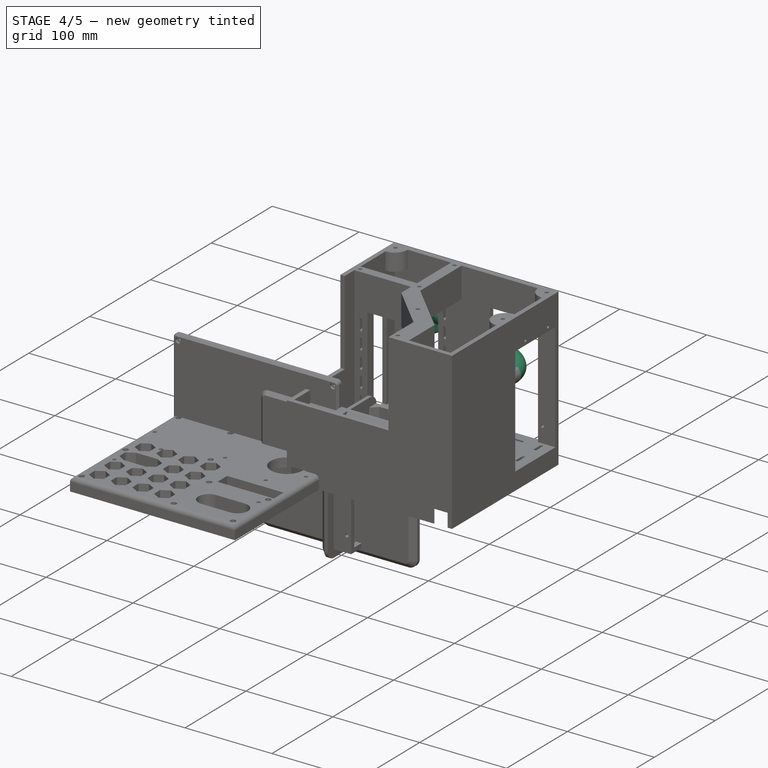
[diagram: stage 4 of 5 — iso view after this stage's code; geometry added in this stage tinted green]
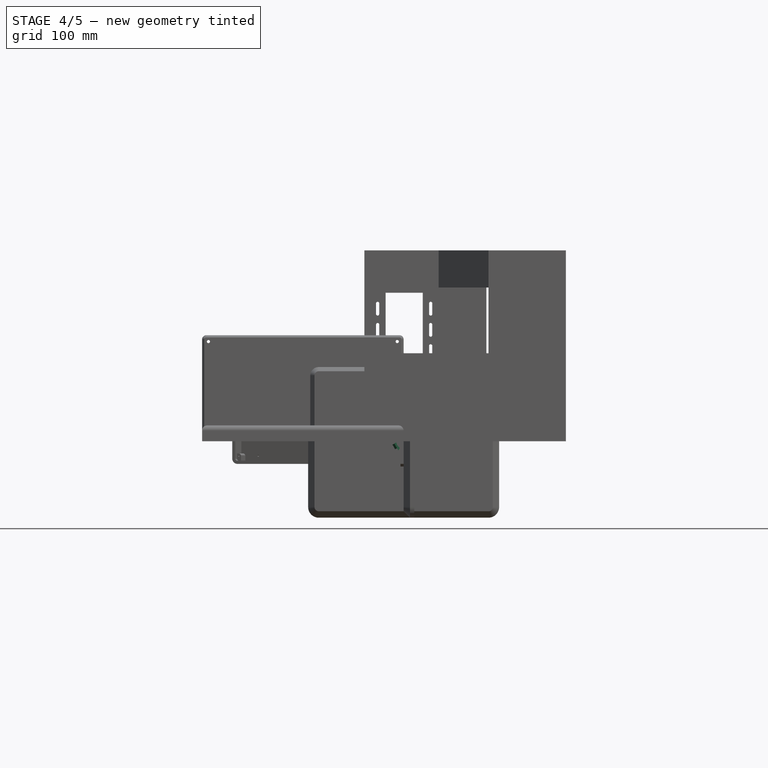
[diagram: stage 4 of 5 — front view after this stage's code; geometry added in this stage tinted green]
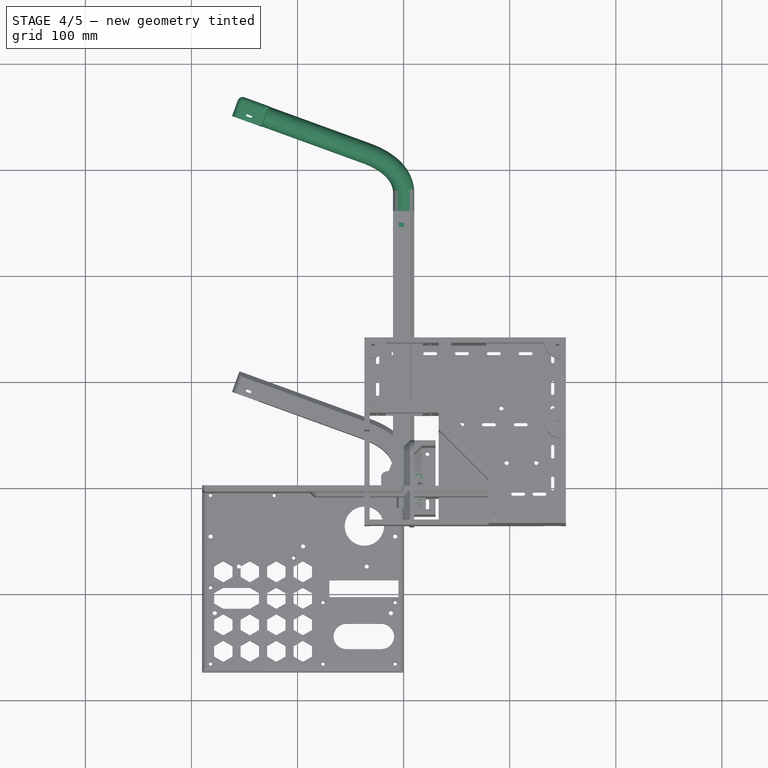
[diagram: stage 4 of 5 — top view after this stage's code; geometry added in this stage tinted green]
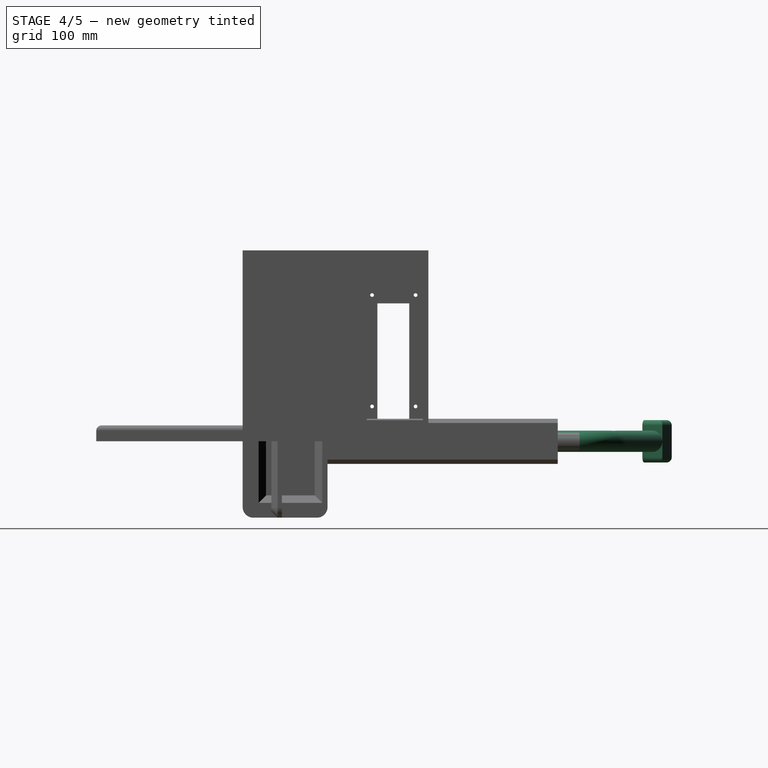
[diagram: stage 4 of 5 — right view after this stage's code; geometry added in this stage tinted green]
FEATURE [PartDesign::Body] Body003  label="HelmetFront"
  AllowCompound = false
  Group = -> [Sketch074,Pad005,Fillet001,Thickness,Sketch,Pocket,Sketch075,Pocket022,Sketch076,Pocket023,Fillet002,Sketch078,Pocket025,Chamfer,Sketch079,Pad,Sketch083,Pocket028,Sketch084,Pad007]
  Origin = -> Origin003
  Placement = pos=(-17.9,-34.7,112.1) rot=(0,0,1;0rad)
  Tip = -> Pad007
FEATURE [Sketcher::SketchObject] Sketch085
  ArcFitTolerance = 1e-06
  AttachmentSupport = -> [XY_Plane004]
  FullyConstrained = true
  MakeInternals = false
  MapMode = 5
  sketch-geometry (8):
    g0: LineSegment StartX=0 StartY=0 StartZ=0 EndX=0 EndY=280 EndZ=0
    g1: LineSegment StartX=-129.969 StartY=349.202 StartZ=0 EndX=-36 EndY=315 EndZ=0
    g2: Circle [constr] CenterX=-36 CenterY=315 CenterZ=0 NormalX=0 NormalY=0 NormalZ=1 AngleXU=0 Radius=1
    g3: Circle [constr] CenterX=-3 CenterY=303 CenterZ=0 NormalX=0 NormalY=0 NormalZ=1 AngleXU=0 Radius=1
    g4: Circle [constr] CenterX=0 CenterY=280 CenterZ=0 NormalX=0 NormalY=0 NormalZ=1 AngleXU=0 Radius=1
    g5: BSplineCurve PolesCount=3 KnotsCount=2 Degree=2 IsPeriodic=0
    g6: GeomPoint [constr] X=-36 Y=315 Z=0
    g7: GeomPoint [constr] X=0 Y=280 Z=0
  constraints (19):
    c: Coincident(g-1,g0)
    c: PointOnObject(g0,g-2)
    c: Weight(g2) = 1
    c: Equal(g2,g3)
    c: Equal(g2,g4)
    c: InternalAlignment(g2,g5)
    c: InternalAlignment(g3,g5)
    c: InternalAlignment(g4,g5)
    c: InternalAlignment(g6,g5)
    c: InternalAlignment(g7,g5)
    c: Coincident(g4,g0)
    c: Coincident(g1,g5)
    c: DistanceY(g0,g0) = 280
    c: DistanceX(g3,g-1) = 3
    c: DistanceY(g5,g3) = 23
    c: DistanceY(g5,g1) = 35
    c: DistanceX(g1,g-1) = 36
    c: Angle(g-2,g1) = 1.22173
    c: Distance(g1,g1) = 100
FEATURE [Sketcher::SketchObject] Sketch086
  ArcFitTolerance = 1e-06
  AttachmentSupport = -> [XZ_Plane004]
  FullyConstrained = true
  MakeInternals = false
  MapMode = 5
  Placement = pos=(0,0,0) rot=(1,0,0;1.5708rad)
  sketch-geometry (2):
    g0: Circle CenterX=0 CenterY=0 CenterZ=0 NormalX=0 NormalY=0 NormalZ=1 AngleXU=0 Radius=7
    g1: Circle CenterX=0 CenterY=0 CenterZ=0 NormalX=0 NormalY=0 NormalZ=1 AngleXU=0 Radius=10
  constraints (4):
    c: Diameter(g0) = 14
    c: Coincident(g0,g-1)
    c: Diameter(g1) = 20
    c: Coincident(g1,g0)
FEATURE [PartDesign::AdditivePipe] AdditivePipe
  AuxilleryCurvelinear = true
  AuxillerySpineTangent = false
  Binormal = (0,0,0)
  Mode = 0
  Placement = pos=(0,0,0) rot=(1,0,0;1.5708rad)
  Profile = -> Sketch086
  Refine = true
  Spine = -> Sketch085
  SpineTangent = false
  Suppressed = false
  Transformation = 1
  Transition = 1
FEATURE [PartDesign::Body] Body008  label="LimitMotor1Holder"
  AllowCompound = false
  Group = -> [Sketch102,Pad015,Sketch103,Pad016,Sketch104,Pocket034,Sketch105,Pocket035,Fillet011,Sketch106,Pocket036,Sketch107,Pocket037,Sketch108,Pocket038]
  Origin = -> Origin008
  Placement = pos=(-38,-112,32) rot=(0,0,1;0rad)
  Tip = -> Pocket038
FEATURE [Sketcher::SketchObject] Sketch110
  ArcFitTolerance = 1e-06
  AttachmentSupport = -> [AdditivePipe]
  ExternalGeometry = -> [AdditivePipe]
  FullyConstrained = true
  MakeInternals = false
  MapMode = 5
  Placement = pos=(-226.943,82.5247,0) rot=(0.701683,-0.123619,-0.701683;3.38758rad)
  sketch-geometry (5):
    g0: LineSegment StartX=20 StartY=-293.762 StartZ=0 EndX=20 EndY=-273.762 EndZ=0
    g1: LineSegment StartX=20 StartY=-273.762 StartZ=0 EndX=-20 EndY=-273.762 EndZ=0
    g2: LineSegment StartX=-20 StartY=-273.762 StartZ=0 EndX=-20 EndY=-293.762 EndZ=0
    g3: LineSegment StartX=-20 StartY=-293.762 StartZ=0 EndX=20 EndY=-293.762 EndZ=0
    g4: GeomPoint [constr] X=5.02e-14 Y=-283.762 Z=0
  constraints (12):
    c: Coincident(g0,g1)
    c: Coincident(g1,g2)
    c: Coincident(g2,g3)
    c: Coincident(g3,g0)
    c: Vertical(g0)
    c: Vertical(g2)
    c: Horizontal(g1)
    c: Horizontal(g3)
    c: Symmetric(g2,g0,g4)
    c: DistanceX(g3,g3) = 40
    c: Coincident(g4,g-3)
    c: DistanceY(g0,g0) = 20
FEATURE [PartDesign::Pad] Pad017
  BaseFeature = -> AdditivePipe
  Direction = (-0.939793,0.341743,-3e-16)
  Length = 30
  Length2 = 10
  Placement = pos=(0,0,0) rot=(1,0,0;1.5708rad)
  Profile = -> Sketch110
  ReferenceAxis = -> Sketch110 [N_Axis]
  Refine = true
  Suppressed = false
  Type = 0
FEATURE [Sketcher::SketchObject] Sketch111
  ArcFitTolerance = 1e-06
  AttachmentSupport = -> [Pad017]
  ExternalGeometry = -> [Pad017]
  FullyConstrained = true
  MakeInternals = false
  MapMode = 5
  Placement = pos=(93.5561,257.279,-4.93e-14) rot=(0.970336,-0.170949,-0.170949;1.6009rad)
  sketch-geometry (5):
    g0: LineSegment StartX=-243.982 StartY=-17.5 StartZ=0 EndX=-243.982 EndY=17.5 EndZ=0
    g1: LineSegment StartX=-243.982 StartY=17.5 StartZ=0 EndX=-268.982 EndY=17.5 EndZ=0
    g2: LineSegment StartX=-268.982 StartY=17.5 StartZ=0 EndX=-268.982 EndY=-17.5 EndZ=0
    g3: LineSegment StartX=-268.982 StartY=-17.5 StartZ=0 EndX=-243.982 EndY=-17.5 EndZ=0
    g4: GeomPoint [constr] X=-256.482 Y=8.96e-14 Z=0
  constraints (12):
    c: Coincident(g0,g1)
    c: Coincident(g1,g2)
    c: Coincident(g2,g3)
    c: Coincident(g3,g0)
    c: Vertical(g0)
    c: Vertical(g2)
    c: Horizontal(g1)
    c: Horizontal(g3)
    c: Symmetric(g2,g0,g4)
    c: Symmetric(g-3,g-4,g4)
    c: Distance(g-3,g0) = 2.5
    c: Distance(g-3,g1) = 2.5
FEATURE [PartDesign::Pocket] Pocket040
  BaseFeature = -> Pad017
  Direction = (0.341743,0.939793,0)
  Length = 16
  Length2 = 5
  Placement = pos=(0,0,0) rot=(1,0,0;1.5708rad)
  Profile = -> Sketch111
  ReferenceAxis = -> Sketch111 [N_Axis]
  Refine = true
  Suppressed = false
  Type = 0
FEATURE [Sketcher::SketchObject] Sketch112
  ArcFitTolerance = 1e-06
  AttachmentSupport = -> [Pocket040]
  ExternalGeometry = -> [AdditivePipe]
  FullyConstrained = true
  MakeInternals = false
  MapMode = 5
  Placement = pos=(-226.943,82.5247,0) rot=(0.701683,-0.123619,0.701683;2.8956rad)
  sketch-geometry (1):
    g0: Circle CenterX=2.967e-13 CenterY=-283.762 CenterZ=0 NormalX=0 NormalY=0 NormalZ=1 AngleXU=0 Radius=7
  constraints (2):
    c: Diameter(g0) = 14
    c: Coincident(g0,g-3)
FEATURE [PartDesign::Pocket] Pocket041
  BaseFeature = -> Pocket040
  Direction = (-0.939793,0.341743,0)
  Length = 11
  Length2 = 5
  Placement = pos=(0,0,0) rot=(1,0,0;1.5708rad)
  Profile = -> Sketch112
  ReferenceAxis = -> Sketch112 [N_Axis]
  Refine = true
  Suppressed = false
  Type = 0
FEATURE [PartDesign::Line] DatumLine001
  AttacherType = Attacher::AttachEngineLine
  AttachmentSupport = -> [Pocket041]
  Length = 20
  MapMode = 42
  Placement = pos=(-241.04,87.6508,4.7111e-12) rot=(0.123619,0.701683,0.701683;2.8956rad)
  ResizeMode = 0
FEATURE [Sketcher::SketchObject] Sketch113
  ArcFitTolerance = 1e-06
  AttachmentSupport = -> [Pocket041]
  ExternalGeometry = -> [Pocket041]
  FullyConstrained = true
  MakeInternals = false
  MapMode = 5
  Placement = pos=(99.024,272.316,0) rot=(0.970336,-0.170949,-0.170949;1.6009rad)
  sketch-geometry (6):
    g0: ArcOfCircle CenterX=-247.982 CenterY=13.5 CenterZ=0 NormalX=0 NormalY=0 NormalZ=1 AngleXU=0 Radius=3 StartAngle=3.14159 EndAngle=4.71239
    g1: LineSegment StartX=-250.982 StartY=13.5 StartZ=0 EndX=-250.982 EndY=17.5 EndZ=0
    g2: LineSegment StartX=-250.982 StartY=17.5 StartZ=0 EndX=-243.982 EndY=17.5 EndZ=0
    g3: LineSegment StartX=-247.982 StartY=10.5 StartZ=0 EndX=-243.982 EndY=10.5 EndZ=0
    g4: LineSegment StartX=-243.982 StartY=17.5 StartZ=0 EndX=-243.982 EndY=10.5 EndZ=0
    g5: Circle CenterX=-247.982 CenterY=13.5 CenterZ=0 NormalX=0 NormalY=0 NormalZ=1 AngleXU=0 Radius=1.5
  constraints (15):
    c: Radius(g0) = 3
    c: Tangent(g0,g1) = 1.5708
    c: Coincident(g1,g2)
    c: Coincident(g2,g-4)
    c: Horizontal(g2)
    c: Tangent(g0,g3) = -1.5708
    c: Coincident(g4,g2)
    c: Coincident(g4,g3)
    c: Vertical(g4)
    c: Diameter(g5) = 3
    c: Coincident(g5,g0)
    c: Horizontal(g3)
    c: Vertical(g1)
    c: DistanceX(g3,g3) = 4
    c: DistanceY(g1,g1) = 4
FEATURE [PartDesign::Pad] Pad018
  BaseFeature = -> Pocket041
  Direction = (-0.341743,-0.939793,0)
  Length = 11
  Length2 = 10
  Placement = pos=(0,0,0) rot=(1,0,0;1.5708rad)
  Profile = -> Sketch113
  ReferenceAxis = -> Sketch113 [N_Axis]
  Refine = true
  Suppressed = false
  Type = 0
FEATURE [PartDesign::Mirrored] Mirrored001
  MirrorPlane = -> XY_Plane004
  Placement = pos=(0,0,0) rot=(1,0,0;1.5708rad)
  Refine = true
  Suppressed = false
  TransformMode = 0
FEATURE [PartDesign::Plane] DatumPlane
  AttachmentOffset = pos=(0,0,0) rot=(0,1,0;1.5708rad)
  AttachmentSupport = -> [DatumLine001]
  Length = 461.969
  MapMode = 7
  Placement = pos=(-241.04,87.6508,4.7111e-12) rot=(0.710454,0.497622,0.497622;1.90618rad)
  ResizeMode = 0
  Width = 79.4128
FEATURE [PartDesign::Mirrored] Mirrored002
  MirrorPlane = -> DatumPlane
  Placement = pos=(0,0,0) rot=(1,0,0;1.5708rad)
  Refine = true
  Suppressed = false
  TransformMode = 0
FEATURE [PartDesign::MultiTransform] MultiTransform001
  BaseFeature = -> Pad018
  Originals = -> [Pad018]
  Placement = pos=(0,0,0) rot=(1,0,0;1.5708rad)
  Refine = true
  Suppressed = false
  TransformMode = 0
  Transformations = -> [Mirrored001,Mirrored002]
FEATURE [PartDesign::Fillet] Fillet012
  Base = -> MultiTransform001 [Edge40,Edge43,Edge42,Edge24,Edge44,Edge41,Edge22]
  BaseFeature = -> MultiTransform001
  Placement = pos=(0,0,0) rot=(1,0,0;1.5708rad)
  Radius = 5
  Refine = true
  SupportTransform = false
  Suppressed = false
  UseAllEdges = false
FEATURE [Sketcher::SketchObject] Sketch115
  ArcFitTolerance = 1e-06
  AttachmentSupport = -> [Pad019]
  FullyConstrained = false
  MakeInternals = false
  MapMode = 5
  Placement = pos=(0,0,0) rot=(1,0,0;3.14159rad)
  sketch-geometry (7):
    g0: LineSegment StartX=13.0211 StartY=9.95432 StartZ=0 EndX=4.38987 EndY=4.99546 EndZ=0
    g1: LineSegment StartX=4.38987 StartY=4.99546 StartZ=0 EndX=4.36874 EndY=-4.95886 EndZ=0
    g2: LineSegment StartX=4.36874 StartY=-4.95886 StartZ=0 EndX=12.9789 EndY=-9.95432 EndZ=0
    g3: LineSegment StartX=12.9789 StartY=-9.95432 StartZ=0 EndX=21.6101 EndY=-4.99546 EndZ=0
    g4: LineSegment StartX=21.6101 StartY=-4.99546 StartZ=0 EndX=21.6313 EndY=4.95886 EndZ=0
    g5: LineSegment StartX=21.6313 StartY=4.95886 StartZ=0 EndX=13.0211 EndY=9.95432 EndZ=0
    g6: Circle [constr] CenterX=13 CenterY=0 CenterZ=0 NormalX=0 NormalY=0 NormalZ=1 AngleXU=0 Radius=9.95434
  constraints (15):
    c: Coincident(g0,g1)
    c: Coincident(g1,g2)
    c: Coincident(g2,g3)
    c: Coincident(g3,g4)
    c: Coincident(g4,g5)
    c: Coincident(g5,g0)
    c: Equal(g0, g1-g5) x5
    c: PointOnObject(g0,g6)
    c: PointOnObject(g1,g6)
    c: PointOnObject(g2,g6)
    c: PointOnObject(g3,g6)
    c: PointOnObject(g4,g6)
    c: PointOnObject(g5,g6)
    c: PointOnObject(g6,g-1)
    c: DistanceX(g-1,g6) = 13
FEATURE [PartDesign::Body] Body009  label="CameraBase"
  AllowCompound = false
  Group = -> [Sketch114,Pad019,Sketch115]
  Origin = -> Origin009
  Placement = pos=(-357.4,-26,-136.2) rot=(0,0,1;0rad)
  Tip = -> Pad019
FEATURE [Sketcher::SketchObject] Sketch117
  ArcFitTolerance = 1e-06
  AttachmentSupport = -> [XY_Plane010]
  FullyConstrained = true
  MakeInternals = false
  MapMode = 5
  sketch-geometry (6):
    g0: LineSegment StartX=-20 StartY=-15 StartZ=0 EndX=20 EndY=-15 EndZ=0
    g1: LineSegment StartX=20 StartY=-15 StartZ=0 EndX=20 EndY=15 EndZ=0
    g2: LineSegment StartX=20 StartY=15 StartZ=0 EndX=-20 EndY=15 EndZ=0
    g3: LineSegment StartX=-20 StartY=15 StartZ=0 EndX=-20 EndY=-15 EndZ=0
    g4: GeomPoint [constr] X=0 Y=0 Z=0
    g5: Circle CenterX=0 CenterY=0 CenterZ=0 NormalX=0 NormalY=0 NormalZ=1 AngleXU=0 Radius=10
  constraints (14):
    c: Coincident(g0,g1)
    c: Coincident(g1,g2)
    c: Coincident(g2,g3)
    c: Coincident(g3,g0)
    c: Horizontal(g0)
    c: Horizontal(g2)
    c: Vertical(g1)
    c: Vertical(g3)
    c: Symmetric(g2,g0,g4)
    c: Distance(g1,g3) = 40
    c: Distance(g0,g2) = 30
    c: Coincident(g4,g-1)
    c: Diameter(g5) = 20
    c: Coincident(g5,g4)
FEATURE [PartDesign::Pad] Pad021
  Direction = (0,0,1)
  Length = 3
  Length2 = 10
  Profile = -> Sketch117
  ReferenceAxis = -> Sketch117 [N_Axis]
  Refine = true
  Suppressed = false
  Type = 0
FEATURE [Sketcher::SketchObject] Sketch118
  ArcFitTolerance = 1e-06
  AttachmentSupport = -> [Pad021]
  FullyConstrained = true
  MakeInternals = false
  MapMode = 5
  Placement = pos=(0,0,3) rot=(0,0,1;0rad)
  sketch-geometry (10):
    g0: LineSegment StartX=17.5 StartY=-12.5 StartZ=0 EndX=17.5 EndY=12.5 EndZ=0
    g1: LineSegment StartX=17.5 StartY=12.5 StartZ=0 EndX=-17.5 EndY=12.5 EndZ=0
    g2: LineSegment StartX=-17.5 StartY=12.5 StartZ=0 EndX=-17.5 EndY=-12.5 EndZ=0
    g3: LineSegment StartX=-17.5 StartY=-12.5 StartZ=0 EndX=17.5 EndY=-12.5 EndZ=0
    g4: GeomPoint [constr] X=0 Y=0 Z=0
    g5: LineSegment StartX=16.5 StartY=-11.5 StartZ=0 EndX=16.5 EndY=11.5 EndZ=0
    g6: LineSegment StartX=16.5 StartY=11.5 StartZ=0 EndX=-16.5 EndY=11.5 EndZ=0
    g7: LineSegment StartX=-16.5 StartY=11.5 StartZ=0 EndX=-16.5 EndY=-11.5 EndZ=0
    g8: LineSegment StartX=-16.5 StartY=-11.5 StartZ=0 EndX=16.5 EndY=-11.5 EndZ=0
    g9: GeomPoint [constr] X=0 Y=0 Z=0
  constraints (24):
    c: Coincident(g0,g1)
    c: Coincident(g1,g2)
    c: Coincident(g2,g3)
    c: Coincident(g3,g0)
    c: Vertical(g0)
    c: Vertical(g2)
    c: Horizontal(g1)
    c: Horizontal(g3)
    c: Symmetric(g2,g0,g4)
    c: Coincident(g4,g-1)
    c: DistanceX(g1,g1) = 35
    c: DistanceY(g2,g2) = 25
    c: Coincident(g5,g6)
    c: Coincident(g6,g7)
    c: Coincident(g7,g8)
    c: Coincident(g8,g5)
    c: Vertical(g5)
    c: Vertical(g7)
    c: Horizontal(g6)
    c: Horizontal(g8)
    c: Symmetric(g7,g5,g9)
    c: Coincident(g9,g4)
    c: Distance(g1,g6) = 1
    c: Distance(g2,g7) = 1
FEATURE [PartDesign::Pad] Pad022
  BaseFeature = -> Pad021
  Direction = (0,0,1)
  Length = 3
  Length2 = 10
  Profile = -> Sketch118
  ReferenceAxis = -> Sketch118 [N_Axis]
  Refine = true
  Suppressed = false
  Type = 0
FEATURE [PartDesign::Fillet] Fillet013
  Base = -> Pad022 [Edge2,Edge8,Edge5,Edge1]
  BaseFeature = -> Pad022
  Radius = 5
  Refine = true
  SupportTransform = false
  Suppressed = false
  UseAllEdges = false
FEATURE [PartDesign::Fillet] Fillet014
  Base = -> Fillet013 [Edge51,Edge49,Edge48,Edge50]
  BaseFeature = -> Fillet013
  Radius = 1.5
  Refine = true
  SupportTransform = false
  Suppressed = false
  UseAllEdges = false
FEATURE [Sketcher::SketchObject] Sketch119
  ArcFitTolerance = 1e-06
  AttachmentOffset = pos=(0,0,-12.5) rot=(0,0,1;0rad)
  AttachmentSupport = -> [Fillet014]
  ExternalGeometry = -> [Fillet014]
  FullyConstrained = true
  MakeInternals = false
  MapMode = 5
  Placement = pos=(0,0,2.8e-15) rot=(0,0.707107,0.707107;3.14159rad)
  sketch-geometry (7):
    g0: LineSegment StartX=15 StartY=3 StartZ=0 EndX=17.5 EndY=3 EndZ=0
    g1: LineSegment StartX=17.5 StartY=3 StartZ=0 EndX=17.5 EndY=7 EndZ=0
    g2: LineSegment StartX=17.5 StartY=7 StartZ=0 EndX=18.5 EndY=7 EndZ=0
    g3: LineSegment StartX=18.5 StartY=7 StartZ=0 EndX=18.5 EndY=8 EndZ=0
    g4: LineSegment StartX=18.5 StartY=8 StartZ=0 EndX=17 EndY=9 EndZ=0
    g5: LineSegment StartX=17 StartY=9 StartZ=0 EndX=15 EndY=9 EndZ=0
    g6: LineSegment StartX=15 StartY=9 StartZ=0 EndX=15 EndY=3 EndZ=0
  constraints (19):
    c: Coincident(g-3,g0)
    c: Coincident(g0,g1)
    c: Vertical(g1)
    c: Coincident(g1,g2)
    c: Horizontal(g2)
    c: Coincident(g2,g3)
    c: Vertical(g3)
    c: Coincident(g3,g4)
    c: Coincident(g4,g5)
    c: Horizontal(g5)
    c: Coincident(g5,g6)
    c: Coincident(g6,g0)
    c: Vertical(g6)
    c: DistanceX(g2,g2) = 1
    c: DistanceY(g3,g3) = 1
    c: DistanceX(g5,g5) = 2
    c: DistanceY(g6,g6) = 6
    c: Coincident(g0,g-4)
    c: DistanceY(g-4,g1) = 1
FEATURE [Sketcher::SketchObject] Sketch120
  ArcFitTolerance = 1e-06
  FullyConstrained = true
  MakeInternals = false
  MapMode = 5
  Placement = pos=(-6.4e-15,6.2e-15,20) rot=(0,0,1;3.14159rad)
  sketch-geometry (4):
    g0: LineSegment StartX=148.782 StartY=-349.552 StartZ=0 EndX=143.519 EndY=-347.639 EndZ=0
    g1: LineSegment StartX=143.519 StartY=-347.639 StartZ=0 EndX=142.665 EndY=-349.988 EndZ=0
    g2: LineSegment StartX=142.665 StartY=-349.988 StartZ=0 EndX=147.928 EndY=-351.902 EndZ=0
    g3: LineSegment StartX=147.928 StartY=-351.902 StartZ=0 EndX=148.782 EndY=-349.552 EndZ=0
  constraints (12):
    c: Coincident(g0,g1)
    c: Coincident(g1,g2)
    c: Coincident(g2,g3)
    c: Coincident(g3,g0)
    c: Parallel(g0,g-3)
    c: Parallel(g3,g-4)
    c: Parallel(g1,g3)
    c: Parallel(g2,g0)
    c: Distance(g-3,g0) = 3.9
    c: Distance(g3,g3) = 2.5
    c: Distance(g-4,g1) = 7.2
    c: Distance(g-3,g3) = 7.2
FEATURE [PartDesign::Fillet] Fillet015
  Base = -> Fillet012 [Edge38,Edge56,Edge50,Edge44]
  BaseFeature = -> Fillet012
  Placement = pos=(0,0,0) rot=(1,0,0;1.5708rad)
  Radius = 2.5
  Refine = true
  SupportTransform = false
  Suppressed = false
  UseAllEdges = false
FEATURE [PartDesign::Pocket] Pocket042
  BaseFeature = -> Fillet015
  Direction = (0,0,-1)
  Length = 5
  Length2 = 5
  Placement = pos=(0,0,0) rot=(1,0,0;1.5708rad)
  Profile = -> Sketch120
  ReferenceAxis = -> Sketch120 [N_Axis]
  Refine = true
  Suppressed = false
  Type = 1
FEATURE [PartDesign::Fillet] Fillet016
  Base = -> Fillet014 [Edge45,Edge43,Edge41,Edge40]
  BaseFeature = -> Fillet014
  Radius = 2.5
  Refine = true
  SupportTransform = false
  Suppressed = false
  UseAllEdges = false
FEATURE [PartDesign::Pad] Pad023
  BaseFeature = -> Fillet016
  Direction = (0,1,-2e-16)
  Length = 5
  Length2 = 10
  Midplane = true
  Profile = -> Sketch119
  ReferenceAxis = -> Sketch119 [N_Axis]
  Refine = true
  Suppressed = false
  Type = 0
FEATURE [PartDesign::Mirrored] Mirrored003
  BaseFeature = -> Pad023
  MirrorPlane = -> Sketch119 [V_Axis]
  Originals = -> [Pad023]
  Refine = true
  Suppressed = false
  TransformMode = 0
FEATURE [Sketcher::SketchObject] Sketch121
  ArcFitTolerance = 1e-06
  AttachmentSupport = -> [Mirrored003]
  FullyConstrained = true
  MakeInternals = false
  MapMode = 5
  Placement = pos=(-17.5,0,-7e-15) rot=(0.57735,-0.57735,-0.57735;2.0944rad)
  sketch-geometry (8):
    g0: LineSegment StartX=-2.5 StartY=6 StartZ=0 EndX=-7.5 EndY=6 EndZ=0
    g1: LineSegment StartX=-7.5 StartY=6 StartZ=0 EndX=-7.5 EndY=3 EndZ=0
    g2: LineSegment StartX=-7.5 StartY=3 StartZ=0 EndX=-2.5 EndY=3 EndZ=0
    g3: LineSegment StartX=-2.5 StartY=3 StartZ=0 EndX=-2.5 EndY=6 EndZ=0
    g4: LineSegment StartX=2.5 StartY=6 StartZ=0 EndX=2.5 EndY=3 EndZ=0
    g5: LineSegment StartX=2.5 StartY=3 StartZ=0 EndX=7.5 EndY=3 EndZ=0
    g6: LineSegment StartX=7.5 StartY=3 StartZ=0 EndX=7.5 EndY=6 EndZ=0
    g7: LineSegment StartX=7.5 StartY=6 StartZ=0 EndX=2.5 EndY=6 EndZ=0
  constraints (22):
    c: Coincident(g0,g1)
    c: Coincident(g1,g2)
    c: Coincident(g2,g3)
    c: Coincident(g3,g0)
    c: Horizontal(g0)
    c: Horizontal(g2)
    c: Vertical(g1)
    c: Vertical(g3)
    c: DistanceY(g3,g3) = 3
    c: DistanceX(g2,g2) = 5
    c: Coincident(g4,g5)
    c: Coincident(g5,g6)
    c: Coincident(g6,g7)
    c: Coincident(g7,g4)
    c: Vertical(g4)
    c: Vertical(g6)
    c: Horizontal(g5)
    c: Horizontal(g7)
    c: DistanceY(g4,g4) = 3
    c: DistanceX(g5,g5) = 5
    c: Coincident(g0,g-3)
    c: Coincident(g4,g-4)
FEATURE [PartDesign::Pocket] Pocket043
  BaseFeature = -> Mirrored003
  Direction = (1,0,0)
  Length = 5
  Length2 = 5
  Profile = -> Sketch121
  ReferenceAxis = -> Sketch121 [N_Axis]
  Refine = true
  Suppressed = false
  Type = 1
FEATURE [PartDesign::Chamfer] Chamfer002
  Angle = 45
  Base = -> Pocket043 [Edge63,Edge62,Edge61,Edge66,Edge65,Edge64]
  BaseFeature = -> Pocket043
  ChamferType = 0
  FlipDirection = false
  Refine = true
  Size = 2
  Size2 = 1
  SupportTransform = false
  Suppressed = false
  UseAllEdges = false
FEATURE [PartDesign::Body] Body010  label="CameraLid"
  AllowCompound = false
  Group = -> [Sketch117,Pad021,Sketch118,Pad022,Fillet013,Fillet014,Fillet016,Sketch119,Pad023,Mirrored003,Sketch121,Pocket043,Chamfer002,Sketch122,Pocket044,Chamfer003]
  Origin = -> Origin010
  Placement = pos=(-357.519,122.858,205.086) rot=(1,0,0;0.349066rad)
  Tip = -> Chamfer003
FEATURE [Sketcher::SketchObject] Sketch123
  ArcFitTolerance = 1e-06
  AttachmentSupport = -> [Fillet015]
  FullyConstrained = false
  MakeInternals = false
  MapMode = 5
  Placement = pos=(0,0,0) rot=(1,0,0;1.5708rad)
  sketch-geometry (6):
    g0: LineSegment StartX=-5.03495 StartY=8.66 StartZ=0 EndX=4.99985 EndY=8.66 EndZ=0
    g1: LineSegment StartX=-3.70275 StartY=6.36865 StartZ=0 EndX=-2.90522 EndY=6.36865 EndZ=0
    g2: LineSegment StartX=4.99985 StartY=8.66 StartZ=0 EndX=3.67694 EndY=6.36865 EndZ=0
    g3: LineSegment StartX=-5.03495 StartY=8.66 StartZ=0 EndX=-3.70275 EndY=6.36865 EndZ=0
    g4: ArcOfCircle CenterX=0 CenterY=0 CenterZ=0 NormalX=0 NormalY=0 NormalZ=1 AngleXU=0 Radius=7 StartAngle=1.14282 EndAngle=1.99877
    g5: LineSegment StartX=2.90522 StartY=6.36865 StartZ=0 EndX=3.67694 EndY=6.36865 EndZ=0
  constraints (12):
    c: Horizontal(g0)
    c: Horizontal(g1)
    c: DistanceY(g-1,g0) = 8.66
    c: Coincident(g2,g0)
    c: Angle(g-1,g2) = 1.0472
    c: Coincident(g0,g3)
    c: Coincident(g2,g5)
    c: Coincident(g3,g1)
    c: Coincident(g4,g-1)
    c: Diameter(g4) = 14
    c: Coincident(g1,g4)
    c: Coincident(g4,g5)
FEATURE [PartDesign::Pad] Pad024
  BaseFeature = -> Pocket042
  Direction = (0,-1,2e-16)
  Length = 19
  Length2 = 10
  Placement = pos=(0,0,0) rot=(1,0,0;1.5708rad)
  Profile = -> Sketch123
  ReferenceAxis = -> Sketch123 [N_Axis]
  Refine = true
  Suppressed = false
  Type = 0
FEATURE [Sketcher::SketchObject] Sketch124
  ArcFitTolerance = 1e-06
  AttachmentSupport = -> [YZ_Plane004]
  ExternalGeometry = -> [Pad024]
  FullyConstrained = true
  MakeInternals = false
  MapMode = 5
  Placement = pos=(0,0,0) rot=(0.57735,0.57735,0.57735;2.0944rad)
  sketch-geometry (4):
    g0: LineSegment StartX=-19 StartY=8.66 StartZ=0 EndX=-17 EndY=10.66 EndZ=0
    g1: LineSegment StartX=-17 StartY=10.66 StartZ=0 EndX=-15 EndY=10.66 EndZ=0
    g2: LineSegment StartX=-15 StartY=10.66 StartZ=0 EndX=-15 EndY=8.66 EndZ=0
    g3: LineSegment StartX=-15 StartY=8.66 StartZ=0 EndX=-19 EndY=8.66 EndZ=0
  constraints (11):
    c: Coincident(g-3,g0)
    c: Coincident(g0,g1)
    c: Horizontal(g1)
    c: Coincident(g1,g2)
    c: PointOnObject(g2,g-3)
    c: Vertical(g2)
    c: Coincident(g2,g3)
    c: Coincident(g3,g0)
    c: DistanceX(g3,g3) = 4
    c: DistanceX(g1,g1) = 2
    c: Distance(g2,g2) = 2
FEATURE [PartDesign::Pad] Pad025
  BaseFeature = -> Pad024
  Direction = (1,0,0)
  Length = 5
  Length2 = 10
  Midplane = true
  Placement = pos=(0,0,0) rot=(1,0,0;1.5708rad)
  Profile = -> Sketch124
  ReferenceAxis = -> Sketch124 [N_Axis]
  Refine = true
  Suppressed = false
  Type = 0
FEATURE [PartDesign::PolarPattern] PolarPattern
  Angle = 360
  Axis = -> Y_Axis004
  BaseFeature = -> Pad025
  Mode = 0
  Occurrences = 3
  Offset = 120
  Originals = -> [Pad025,Pad024]
  Placement = pos=(0,0,0) rot=(1,0,0;1.5708rad)
  Refine = true
  Suppressed = false
  TransformMode = 0
FEATURE [Sketcher::SketchObject] Sketch146
  ArcFitTolerance = 1e-06
  AttachmentOffset = pos=(0,0,-14.5) rot=(0,0,1;0rad)
  AttachmentSupport = -> [Pad034]
  FullyConstrained = true
  MakeInternals = false
  MapMode = 5
  Placement = pos=(0,0,3.2e-15) rot=(0,0.707107,0.707107;3.14159rad)
  sketch-geometry (7):
    g0: LineSegment StartX=16.25 StartY=3 StartZ=0 EndX=18.25 EndY=3 EndZ=0
    g1: LineSegment StartX=18.25 StartY=3 StartZ=0 EndX=18.25 EndY=7 EndZ=0
    g2: LineSegment StartX=18.25 StartY=7 StartZ=0 EndX=19.25 EndY=7 EndZ=0
    g3: LineSegment StartX=19.25 StartY=7 StartZ=0 EndX=19.25 EndY=8.5 EndZ=0
    g4: LineSegment StartX=19.25 StartY=8.5 StartZ=0 EndX=18.25 EndY=10 EndZ=0
    g5: LineSegment StartX=18.25 StartY=10 StartZ=0 EndX=16.25 EndY=10 EndZ=0
    g6: LineSegment StartX=16.25 StartY=10 StartZ=0 EndX=16.25 EndY=3 EndZ=0
  constraints (21):
    c: Coincident(g0,g1)
    c: Vertical(g1)
    c: Coincident(g1,g2)
    c: Horizontal(g2)
    c: Coincident(g2,g3)
    c: Vertical(g3)
    c: Coincident(g3,g4)
    c: Coincident(g4,g5)
    c: Horizontal(g5)
    c: Coincident(g5,g6)
    c: Coincident(g6,g0)
    c: Vertical(g6)
    c: DistanceX(g2,g2) = 1
    c: DistanceY(g3,g3) = 1.5
    c: DistanceX(g5,g5) = 2
    c: Horizontal(g0)
    c: Distance(g-2,g6) = 16.25
    c: Distance(g-1,g0) = 3
    c: Distance(g5,g2) = 3
    c: DistanceY(g1,g1) = 4
    c: Vertical(g1,g4)
FEATURE [PartDesign::Pad] Pad036
  BaseFeature = -> Pad034
  Direction = (0,1,-2e-16)
  Length = 4.8
  Length2 = 10
  Midplane = true
  Profile = -> Sketch146
  ReferenceAxis = -> Sketch146 [N_Axis]
  Refine = true
  Suppressed = false
  Type = 0
FEATURE [PartDesign::Mirrored] Mirrored010
  BaseFeature = -> Pad036
  MirrorPlane = -> Sketch146 [V_Axis]
  Originals = -> [Pad036]
  Refine = true
  Suppressed = false
  TransformMode = 0
FEATURE [PartDesign::Fillet] Fillet021
  Base = -> Mirrored010 [Edge8,Edge5,Edge1,Edge2]
  BaseFeature = -> Mirrored010
  Radius = 5
  Refine = true
  SupportTransform = false
  Suppressed = false
  UseAllEdges = false
FEATURE [PartDesign::Chamfer] Chamfer004
  Angle = 45
  Base = -> Fillet021 [Edge11]
  BaseFeature = -> Fillet021
  ChamferType = 0
  FlipDirection = false
  Refine = true
  Size = 1
  Size2 = 1
  SupportTransform = false
  Suppressed = false
  UseAllEdges = false
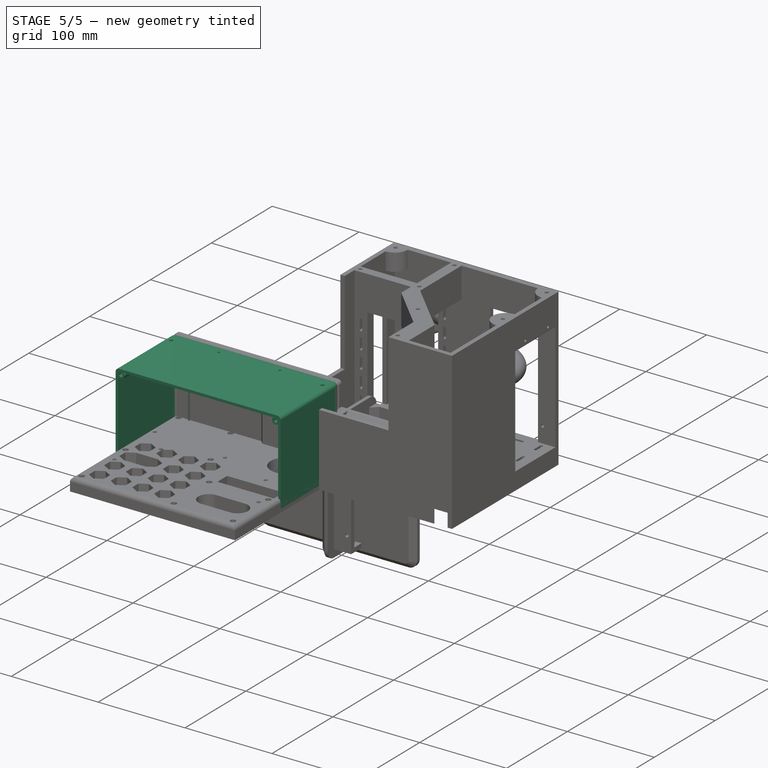
[diagram: stage 5 of 5 — iso view after this stage's code; geometry added in this stage tinted green]
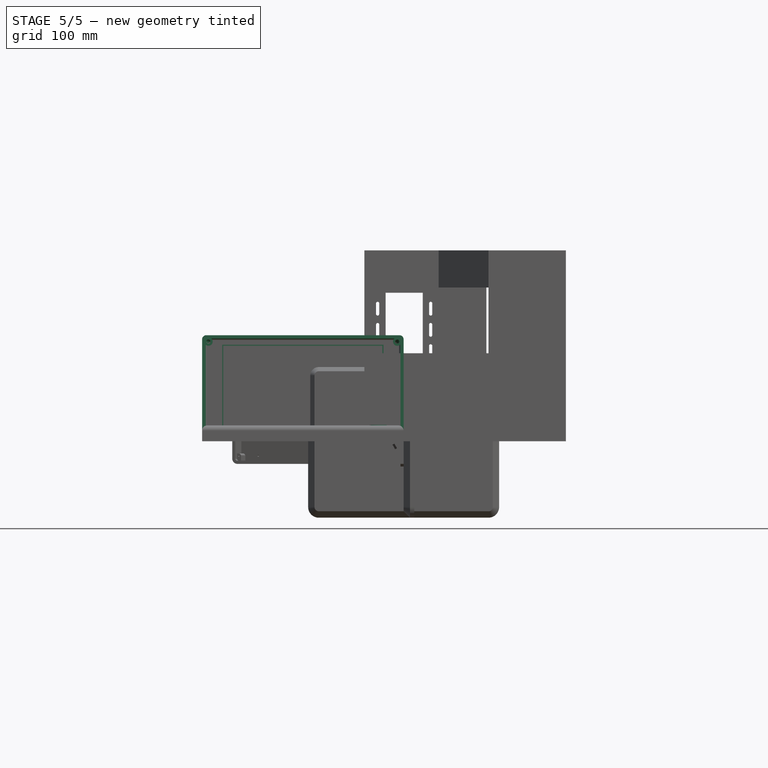
[diagram: stage 5 of 5 — front view after this stage's code; geometry added in this stage tinted green]
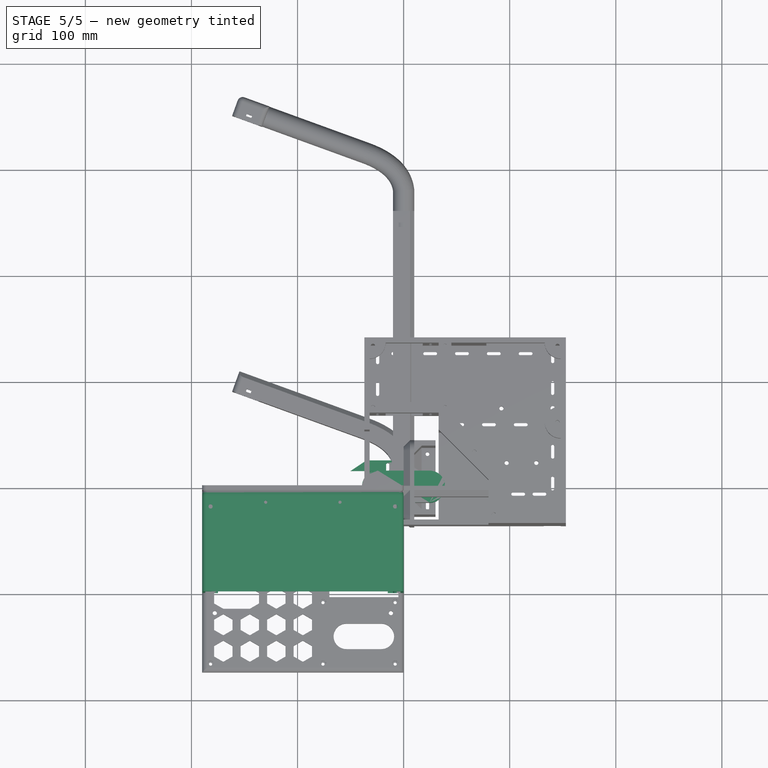
[diagram: stage 5 of 5 — top view after this stage's code; geometry added in this stage tinted green]
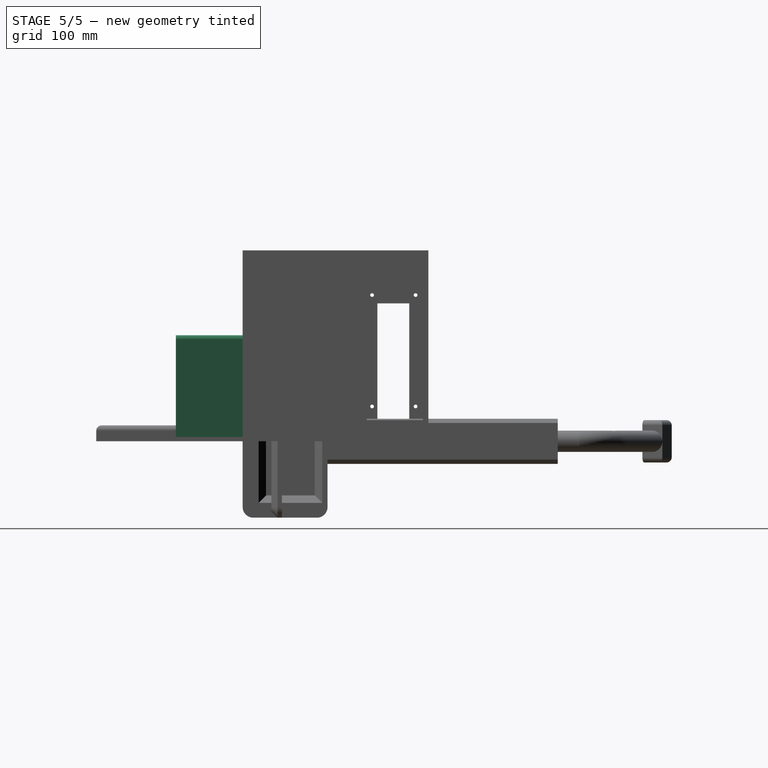
[diagram: stage 5 of 5 — right view after this stage's code; geometry added in this stage tinted green]
FEATURE [Sketcher::SketchObject] Sketch074
  ArcFitTolerance = 1e-06
  AttachmentSupport = -> [XZ_Plane003]
  FullyConstrained = true
  MakeInternals = false
  MapMode = 5
  Placement = pos=(0,0,0) rot=(1,0,0;1.5708rad)
  sketch-geometry (4):
    g0: LineSegment StartX=0 StartY=0 StartZ=0 EndX=0 EndY=100 EndZ=0
    g1: LineSegment StartX=0 StartY=100 StartZ=0 EndX=-190 EndY=100 EndZ=0
    g2: LineSegment StartX=-190 StartY=100 StartZ=0 EndX=-190 EndY=0 EndZ=0
    g3: LineSegment StartX=-190 StartY=0 StartZ=0 EndX=0 EndY=0 EndZ=0
  constraints (11):
    c: Coincident(g0,g1)
    c: Coincident(g1,g2)
    c: Coincident(g2,g3)
    c: Coincident(g3,g0)
    c: Vertical(g0)
    c: Vertical(g2)
    c: Horizontal(g1)
    c: Horizontal(g3)
    c: Distance(g0,g2) = 190
    c: Distance(g1,g3) = 100
    c: Coincident(g0,g-1)
FEATURE [PartDesign::Pad] Pad005
  Direction = (0,-1,2e-16)
  Length = 100
  Length2 = 10
  Placement = pos=(0,0,0) rot=(1,0,0;1.5708rad)
  Profile = -> Sketch074
  ReferenceAxis = -> Sketch074 [N_Axis]
  Refine = true
  Suppressed = false
  Type = 0
FEATURE [PartDesign::Fillet] Fillet001
  Base = -> Pad005 [Edge6,Edge9,Edge11,Edge3]
  BaseFeature = -> Pad005
  Placement = pos=(0,0,0) rot=(1,0,0;1.5708rad)
  Radius = 10
  Refine = true
  SupportTransform = false
  Suppressed = false
  UseAllEdges = false
FEATURE [PartDesign::Thickness] Thickness
  Base = -> Fillet001 [Face4]
  BaseFeature = -> Fillet001
  Intersection = false
  Join = 0
  Mode = 0
  Refine = true
  Reversed = true
  SupportTransform = false
  Suppressed = false
  Value = 3
FEATURE [Sketcher::SketchObject] Sketch
  ArcFitTolerance = 1e-06
  AttachmentSupport = -> [Thickness]
  ExternalGeometry = -> [Thickness]
  FullyConstrained = false
  MakeInternals = false
  MapMode = 5
  Placement = pos=(0,0,0) rot=(1,0,0;3.14159rad)
  sketch-geometry (4):
    g0: LineSegment StartX=-175 StartY=104.35 StartZ=0 EndX=-175 EndY=10 EndZ=0
    g1: LineSegment StartX=-175 StartY=10 StartZ=0 EndX=-15 EndY=10 EndZ=0
    g2: LineSegment StartX=-15 StartY=10 StartZ=0 EndX=-15 EndY=104.35 EndZ=0
    g3: LineSegment StartX=-15 StartY=104.35 StartZ=0 EndX=-175 EndY=104.35 EndZ=0
  constraints (11):
    c: Coincident(g0,g1)
    c: Coincident(g1,g2)
    c: Coincident(g2,g3)
    c: Coincident(g3,g0)
    c: Vertical(g0)
    c: Vertical(g2)
    c: Horizontal(g1)
    c: Horizontal(g3)
    c: Distance(g-2,g2) = 15
    c: Distance(g-3,g0) = 15
    c: Distance(g-1,g1) = 10
FEATURE [PartDesign::Pocket] Pocket
  BaseFeature = -> Thickness
  Direction = (0,0,1)
  Length = 5
  Length2 = 5
  Profile = -> Sketch
  ReferenceAxis = -> Sketch [N_Axis]
  Refine = true
  Suppressed = false
  Type = 0
FEATURE [Sketcher::SketchObject] Sketch075
  ArcFitTolerance = 1e-06
  AttachmentSupport = -> [Pocket]
  ExternalGeometry = -> [Pocket]
  FullyConstrained = true
  MakeInternals = false
  MapMode = 5
  Placement = pos=(0,4.4e-14,100) rot=(0,0,1;0rad)
  sketch-geometry (4):
    g0: Circle CenterX=-60 CenterY=-16 CenterZ=0 NormalX=0 NormalY=0 NormalZ=1 AngleXU=0 Radius=1.5
    g1: Circle CenterX=-130 CenterY=-16 CenterZ=0 NormalX=0 NormalY=0 NormalZ=1 AngleXU=0 Radius=1.5
    g2: Circle CenterX=-8 CenterY=-20 CenterZ=0 NormalX=0 NormalY=0 NormalZ=1 AngleXU=0 Radius=2
    g3: Circle CenterX=-182 CenterY=-20 CenterZ=0 NormalX=0 NormalY=0 NormalZ=1 AngleXU=0 Radius=2
  constraints (12):
    c: Diameter(g0) = 3
    c: Diameter(g1) = 3
    c: Horizontal(g1,g0)
    c: Distance(g0,g-1) = 16
    c: DistanceX(g0,g-1) = 60
    c: Distance(g1,g-3) = 60
    c: Diameter(g2) = 4
    c: Diameter(g3) = 4
    c: Distance(g3,g-3) = 8
    c: Distance(g3,g-1) = 20
    c: DistanceX(g2,g-1) = 8
    c: DistanceY(g2,g-1) = 20
FEATURE [PartDesign::Pocket] Pocket022
  BaseFeature = -> Pocket
  Direction = (0,0,-1)
  Length = 5
  Length2 = 5
  Profile = -> Sketch075
  ReferenceAxis = -> Sketch075 [N_Axis]
  Refine = true
  Suppressed = false
  Type = 0
FEATURE [Sketcher::SketchObject] Sketch076
  ArcFitTolerance = 1e-06
  AttachmentSupport = -> [Pocket022]
  ExternalGeometry = -> [Pocket022]
  FullyConstrained = true
  MakeInternals = false
  MapMode = 5
  Placement = pos=(0,1.3e-15,3) rot=(0,0,1;0rad)
  sketch-geometry (4):
    g0: Circle CenterX=-178 CenterY=-92 CenterZ=0 NormalX=0 NormalY=0 NormalZ=1 AngleXU=0 Radius=1.5
    g1: Circle CenterX=-12 CenterY=-92 CenterZ=0 NormalX=0 NormalY=0 NormalZ=1 AngleXU=0 Radius=1.5
    g2: Circle CenterX=-182 CenterY=-20 CenterZ=0 NormalX=0 NormalY=0 NormalZ=1 AngleXU=0 Radius=1.5
    g3: Circle CenterX=-8 CenterY=-20 CenterZ=0 NormalX=0 NormalY=0 NormalZ=1 AngleXU=0 Radius=1.5
  constraints (12):
    c: Diameter(g0) = 3
    c: Diameter(g1) = 3
    c: Horizontal(g1,g0)
    c: Distance(g1,g-5) = 12
    c: Distance(g1,g-3) = 8
    c: Distance(g0,g-4) = 12
    c: Diameter(g2) = 3
    c: Diameter(g3) = 3
    c: Distance(g3,g-5) = 8
    c: Distance(g2,g-4) = 8
    c: DistanceY(g2,g-1) = 20
    c: DistanceY(g3,g-1) = 20
FEATURE [PartDesign::Pocket] Pocket023
  BaseFeature = -> Pocket022
  Direction = (0,0,-1)
  Length = 5
  Length2 = 5
  Profile = -> Sketch076
  ReferenceAxis = -> Sketch076 [N_Axis]
  Refine = true
  Suppressed = false
  Type = 0
FEATURE [PartDesign::Fillet] Fillet002
  Base = -> Pocket023 [Edge1,Edge62,Edge43,Edge50,Edge24,Edge4,Edge54,Edge56]
  BaseFeature = -> Pocket023
  Radius = 4
  Refine = true
  SupportTransform = false
  Suppressed = false
  UseAllEdges = false
FEATURE [Sketcher::SketchObject] Sketch078
  ArcFitTolerance = 1e-06
  AttachmentSupport = -> [Fillet002]
  ExternalGeometry = -> [Fillet002]
  FullyConstrained = true
  MakeInternals = false
  MapMode = 5
  Placement = pos=(0,1.11e-14,0) rot=(0,0.707107,0.707107;3.14159rad)
  sketch-geometry (4):
    g0: LineSegment StartX=25 StartY=86 StartZ=0 EndX=25 EndY=14 EndZ=0
    g1: LineSegment StartX=25 StartY=14 StartZ=0 EndX=165 EndY=14 EndZ=0
    g2: LineSegment StartX=165 StartY=14 StartZ=0 EndX=165 EndY=86 EndZ=0
    g3: LineSegment StartX=165 StartY=86 StartZ=0 EndX=25 EndY=86 EndZ=0
  constraints (12):
    c: Coincident(g0,g1)
    c: Coincident(g1,g2)
    c: Coincident(g2,g3)
    c: Coincident(g3,g0)
    c: Vertical(g0)
    c: Vertical(g2)
    c: Horizontal(g1)
    c: Horizontal(g3)
    c: DistanceX(g3,g3) = 140
    c: Distance(g-5,g3) = 4
    c: Distance(g-6,g1) = 4
    c: Distance(g-4,g2) = 15
FEATURE [PartDesign::Pocket] Pocket025
  BaseFeature = -> Fillet002
  Direction = (0,-1,2e-16)
  Length = 5
  Length2 = 5
  Profile = -> Sketch078
  ReferenceAxis = -> Sketch078 [N_Axis]
  Refine = true
  Suppressed = false
  Type = 0
FEATURE [PartDesign::Chamfer] Chamfer
  Angle = 45
  Base = -> Pocket025 [Edge38,Edge41,Edge40,Edge39]
  BaseFeature = -> Pocket025
  ChamferType = 2
  FlipDirection = false
  Refine = true
  Size = 2
  Size2 = 1
  SupportTransform = false
  Suppressed = false
  UseAllEdges = false
FEATURE [Sketcher::SketchObject] Sketch079
  ArcFitTolerance = 1e-06
  AttachmentSupport = -> [Chamfer]
  ExternalGeometry = -> [Chamfer]
  FullyConstrained = true
  MakeInternals = false
  MapMode = 5
  Placement = pos=(0,-100,0) rot=(1,0,0;1.5708rad)
  sketch-geometry (8):
    g0: Circle CenterX=-184 CenterY=94 CenterZ=0 NormalX=0 NormalY=0 NormalZ=1 AngleXU=0 Radius=4
    g1: Circle CenterX=-6 CenterY=94 CenterZ=0 NormalX=0 NormalY=0 NormalZ=1 AngleXU=0 Radius=4
    g2: Circle CenterX=-6 CenterY=6 CenterZ=0 NormalX=0 NormalY=0 NormalZ=1 AngleXU=0 Radius=4
    g3: Circle CenterX=-184 CenterY=6 CenterZ=0 NormalX=0 NormalY=0 NormalZ=1 AngleXU=0 Radius=4
    g4: Circle CenterX=-184 CenterY=94 CenterZ=0 NormalX=0 NormalY=0 NormalZ=1 AngleXU=0 Radius=2
    g5: Circle CenterX=-6 CenterY=94 CenterZ=0 NormalX=0 NormalY=0 NormalZ=1 AngleXU=0 Radius=2
    g6: Circle CenterX=-6 CenterY=6 CenterZ=0 NormalX=0 NormalY=0 NormalZ=1 AngleXU=0 Radius=2
    g7: Circle CenterX=-184 CenterY=6 CenterZ=0 NormalX=0 NormalY=0 NormalZ=1 AngleXU=0 Radius=2
  constraints (20):
    c: Diameter(g0) = 8
    c: DistanceY(g0,g-3) = 3
    c: DistanceX(g-6,g0) = 3
    c: Diameter(g1) = 8
    c: Distance(g1,g-3) = 3
    c: Distance(g1,g-4) = 3
    c: Diameter(g2) = 8
    c: Distance(g2,g-5) = 3
    c: Distance(g2,g-4) = 3
    c: Diameter(g3) = 8
    c: Distance(g3,g-6) = 3
    c: Distance(g3,g-7) = 3
    c: Diameter(g4) = 4
    c: Coincident(g4,g0)
    c: Diameter(g5) = 4
    c: Coincident(g5,g1)
    c: Diameter(g6) = 4
    c: Coincident(g6,g2)
    c: Diameter(g7) = 4
    c: Coincident(g7,g3)
FEATURE [PartDesign::Pad] Pad
  BaseFeature = -> Chamfer
  Direction = (0,-1,2e-16)
  Length = 10
  Length2 = 10
  Profile = -> Sketch079
  ReferenceAxis = -> Sketch079 [N_Axis]
  Refine = true
  Reversed = true
  Suppressed = false
  Type = 0
FEATURE [Sketcher::SketchObject] Sketch083
  ArcFitTolerance = 1e-06
  AttachmentSupport = -> [Pad]
  FullyConstrained = true
  MakeInternals = false
  MapMode = 5
  Placement = pos=(0,0,0) rot=(1,0,0;3.14159rad)
  sketch-geometry (4):
    g0: LineSegment StartX=-35 StartY=78 StartZ=0 EndX=-35 EndY=61 EndZ=0
    g1: LineSegment StartX=-35 StartY=61 StartZ=0 EndX=-5 EndY=61 EndZ=0
    g2: LineSegment StartX=-5 StartY=61 StartZ=0 EndX=-5 EndY=78 EndZ=0
    g3: LineSegment StartX=-5 StartY=78 StartZ=0 EndX=-35 EndY=78 EndZ=0
  constraints (12):
    c: Coincident(g0,g1)
    c: Coincident(g1,g2)
    c: Coincident(g2,g3)
    c: Coincident(g3,g0)
    c: Vertical(g0)
    c: Vertical(g2)
    c: Horizontal(g1)
    c: Horizontal(g3)
    c: Distance(g-2,g2) = 5
    c: DistanceY(g2,g2) = 17
    c: DistanceX(g3,g3) = 30
    c: Distance(g-1,g1) = 61
FEATURE [PartDesign::Pocket] Pocket028
  BaseFeature = -> Pad
  Direction = (0,0,1)
  Length = 5
  Length2 = 5
  Profile = -> Sketch083
  ReferenceAxis = -> Sketch083 [N_Axis]
  Refine = true
  Suppressed = false
  Type = 0
FEATURE [Sketcher::SketchObject] Sketch084
  ArcFitTolerance = 1e-06
  AttachmentSupport = -> [Pocket028]
  FullyConstrained = true
  MakeInternals = false
  MapMode = 5
  Placement = pos=(0,-3,0) rot=(1,0,0;1.5708rad)
  sketch-geometry (10):
    g0: LineSegment StartX=-170 StartY=10 StartZ=0 EndX=-20 EndY=10 EndZ=0
    g1: LineSegment StartX=-20 StartY=10 StartZ=0 EndX=-20 EndY=90 EndZ=0
    g2: LineSegment StartX=-20 StartY=90 StartZ=0 EndX=-170 EndY=90 EndZ=0
    g3: LineSegment StartX=-170 StartY=90 StartZ=0 EndX=-170 EndY=10 EndZ=0
    g4: GeomPoint [constr] X=-95 Y=50 Z=0
    g5: LineSegment StartX=-19 StartY=9 StartZ=0 EndX=-19 EndY=91 EndZ=0
    g6: LineSegment StartX=-19 StartY=91 StartZ=0 EndX=-171 EndY=91 EndZ=0
    g7: LineSegment StartX=-171 StartY=91 StartZ=0 EndX=-171 EndY=9 EndZ=0
    g8: LineSegment StartX=-171 StartY=9 StartZ=0 EndX=-19 EndY=9 EndZ=0
    g9: GeomPoint [constr] X=-95 Y=50 Z=0
  constraints (25):
    c: Coincident(g0,g1)
    c: Coincident(g1,g2)
    c: Coincident(g2,g3)
    c: Coincident(g3,g0)
    c: Horizontal(g0)
    c: Horizontal(g2)
    c: Vertical(g1)
    c: Vertical(g3)
    c: Symmetric(g2,g0,g4)
    c: Distance(g1,g3) = 150
    c: Distance(g0,g2) = 80
    c: DistanceX(g4,g-1) = 95
    c: DistanceY(g-1,g4) = 50
    c: Coincident(g5,g6)
    c: Coincident(g6,g7)
    c: Coincident(g7,g8)
    c: Coincident(g8,g5)
    c: Vertical(g5)
    c: Vertical(g7)
    c: Horizontal(g6)
    c: Horizontal(g8)
    c: Symmetric(g7,g5,g9)
    c: Coincident(g9,g4)
    c: Distance(g6,g2) = 1
    c: Distance(g7,g3) = 1
FEATURE [PartDesign::Pad] Pad007
  BaseFeature = -> Pocket028
  Direction = (0,-1,2e-16)
  Length = 5
  Length2 = 10
  Profile = -> Sketch084
  ReferenceAxis = -> Sketch084 [N_Axis]
  Refine = true
  Suppressed = false
  Type = 0
FEATURE [Sketcher::SketchObject] Sketch090
  ArcFitTolerance = 1e-06
  AttachmentSupport = -> [XY_Plane005]
  FullyConstrained = true
  MakeInternals = false
  MapMode = 5
  sketch-geometry (9):
    g0: LineSegment StartX=-15 StartY=-11 StartZ=0 EndX=15 EndY=-11 EndZ=0
    g1: LineSegment StartX=15 StartY=-11 StartZ=0 EndX=15 EndY=11 EndZ=0
    g2: LineSegment StartX=15 StartY=11 StartZ=0 EndX=-15 EndY=11 EndZ=0
    g3: LineSegment StartX=-15 StartY=11 StartZ=0 EndX=-15 EndY=-11 EndZ=0
    g4: GeomPoint [constr] X=0 Y=0 Z=0
    g5: Circle CenterX=-13.75 CenterY=9.75 CenterZ=0 NormalX=0 NormalY=0 NormalZ=1 AngleXU=0 Radius=0.75
    g6: Circle CenterX=13.75 CenterY=9.75 CenterZ=0 NormalX=0 NormalY=0 NormalZ=1 AngleXU=0 Radius=0.75
    g7: Circle CenterX=-13.75 CenterY=-9.75 CenterZ=0 NormalX=0 NormalY=0 NormalZ=1 AngleXU=0 Radius=0.75
    g8: Circle CenterX=13.75 CenterY=-9.75 CenterZ=0 NormalX=0 NormalY=0 NormalZ=1 AngleXU=0 Radius=0.75
  constraints (24):
    c: Coincident(g0,g1)
    c: Coincident(g1,g2)
    c: Coincident(g2,g3)
    c: Coincident(g3,g0)
    c: Horizontal(g0)
    c: Horizontal(g2)
    c: Vertical(g1)
    c: Vertical(g3)
    c: Symmetric(g2,g0,g4)
    c: Distance(g1,g3) = 30
    c: Distance(g0,g2) = 22
    c: Coincident(g4,g-1)
    c: Diameter(g5) = 1.5
    c: Diameter(g6) = 1.5
    c: Diameter(g7) = 1.5
    c: Diameter(g8) = 1.5
    c: Distance(g5,g2) = 0.5
    c: Distance(g5,g3) = 0.5
    c: Distance(g7,g0) = 0.5
    c: Distance(g7,g3) = 0.5
    c: Distance(g6,g2) = 0.5
    c: Distance(g6,g1) = 0.5
    c: Distance(g8,g1) = 0.5
    c: Distance(g8,g0) = 0.5
FEATURE [PartDesign::Pad] Pad008
  Direction = (0,0,1)
  Length = 1
  Length2 = 10
  Profile = -> Sketch090
  ReferenceAxis = -> Sketch090 [N_Axis]
  Refine = true
  Suppressed = false
  Type = 0
FEATURE [Sketcher::SketchObject] Sketch091
  ArcFitTolerance = 1e-06
  AttachmentSupport = -> [Pad008]
  FullyConstrained = true
  MakeInternals = false
  MapMode = 5
  Placement = pos=(0,0,1) rot=(0,0,1;0rad)
  sketch-geometry (1):
    g0: Circle CenterX=0 CenterY=0 CenterZ=0 NormalX=0 NormalY=0 NormalZ=1 AngleXU=0 Radius=5
  constraints (2):
    c: Diameter(g0) = 10
    c: Coincident(g0,g-1)
FEATURE [PartDesign::Pad] Pad009
  BaseFeature = -> Pad008
  Direction = (0,0,1)
  Length = 5
  Length2 = 10
  Profile = -> Sketch091
  ReferenceAxis = -> Sketch091 [N_Axis]
  Refine = true
  Suppressed = false
  Type = 0
FEATURE [PartDesign::Body] Body005  label="Camera"
  AllowCompound = false
  Group = -> [Sketch090,Pad008,Sketch091,Pad009]
  Origin = -> Origin005
  Placement = pos=(-357.519,119.917,213.167) rot=(1,0,0;3.49066rad)
  Tip = -> Pad009
FEATURE [Sketcher::SketchObject] Sketch102
  ArcFitTolerance = 1e-06
  AttachmentSupport = -> [XY_Plane008]
  FullyConstrained = false
  MakeInternals = false
  MapMode = 5
  sketch-geometry (16):
    g0: LineSegment StartX=0 StartY=0 StartZ=0 EndX=0 EndY=15 EndZ=0
    g1: LineSegment StartX=0 StartY=25 StartZ=0 EndX=-35 EndY=25 EndZ=0
    g2: LineSegment StartX=-35 StartY=15 StartZ=0 EndX=-35 EndY=0 EndZ=0
    g3: LineSegment StartX=-35 StartY=0 StartZ=0 EndX=0 EndY=0 EndZ=0
    g4: LineSegment StartX=-35 StartY=15 StartZ=0 EndX=-50 EndY=15 EndZ=0
    g5: LineSegment StartX=-50 StartY=15 StartZ=0 EndX=-35 EndY=25 EndZ=0
    g6: LineSegment StartX=0 StartY=25 StartZ=0 EndX=15 EndY=15 EndZ=0
    g7: LineSegment StartX=15 StartY=15 StartZ=0 EndX=0 EndY=15 EndZ=0
    g8: ArcOfCircle CenterX=-5.5 CenterY=21 CenterZ=0 NormalX=0 NormalY=0 NormalZ=1 AngleXU=0 Radius=1.5 StartAngle=-9e-16 EndAngle=3.14159
    g9: ArcOfCircle CenterX=-5.5 CenterY=11 CenterZ=0 NormalX=0 NormalY=0 NormalZ=1 AngleXU=0 Radius=1.5 StartAngle=3.14159 EndAngle=6.28319
    g10: LineSegment StartX=-4 StartY=21 StartZ=0 EndX=-4 EndY=11 EndZ=0
    g11: LineSegment StartX=-7 StartY=21 StartZ=0 EndX=-7 EndY=11 EndZ=0
    g12: ArcOfCircle CenterX=-15 CenterY=21 CenterZ=0 NormalX=0 NormalY=0 NormalZ=1 AngleXU=0 Radius=1.5 StartAngle=1.4e-15 EndAngle=3.14159
    g13: ArcOfCircle CenterX=-15 CenterY=11 CenterZ=0 NormalX=0 NormalY=0 NormalZ=1 AngleXU=0 Radius=1.5 StartAngle=3.14159 EndAngle=6.28319
    g14: LineSegment StartX=-13.5 StartY=21 StartZ=0 EndX=-13.5 EndY=11 EndZ=0
    g15: LineSegment StartX=-16.5 StartY=21 StartZ=0 EndX=-16.5 EndY=11 EndZ=0
  constraints (41):
    c: Coincident(g2,g3)
    c: Coincident(g3,g0)
    c: Vertical(g0)
    c: Vertical(g2)
    c: Horizontal(g1)
    c: Horizontal(g3)
    c: Distance(g0,g2) = 35
    c: Distance(g1,g3) = 25
    c: Coincident(g0,g-1)
    c: Horizontal(g4)
    c: Coincident(g4,g5)
    c: Coincident(g5,g1)
    c: Coincident(g1,g6)
    c: Coincident(g6,g7)
    c: Horizontal(g7)
    c: Distance(g-1,g7) = 15
    c: Distance(g7,g7) = 15
    c: DistanceX(g4,g4) = 15
    c: Distance(g-1,g4) = 15
    c: Coincident(g2,g4)
    c: Coincident(g0,g7)
    c: Tangent(g8,g10) = 1.5708
    c: Tangent(g8,g11) = -1.5708
    c: Tangent(g9,g10) = 1.5708
    c: Tangent(g9,g11) = -1.5708
    c: Equal(g8,g9)
    c: Vertical(g11)
    c: Distance(g8,g9) = 10
    c: Radius(g8) = 1.5
    c: Tangent(g12,g14) = 1.5708
    c: Tangent(g12,g15) = -1.5708
    c: Tangent(g13,g14) = 1.5708
    c: Tangent(g13,g15) = -1.5708
    c: Equal(g12,g13)
    c: Vertical(g15)
    c: Distance(g12,g13) = 10
    c: Radius(g12) = 1.5
    c: Distance(g8,g1) = 4
    c: DistanceX(g8,g-1) = 5.5
    c: Horizontal(g12,g8)
    c: DistanceX(g12,g8) = 9.5
FEATURE [PartDesign::Pad] Pad015
  Direction = (0,0,1)
  Length = 10
  Length2 = 10
  Profile = -> Sketch102
  ReferenceAxis = -> Sketch102 [N_Axis]
  Refine = true
  Suppressed = false
  Type = 0
FEATURE [Part::Feature] Part__Feature004  label="LimitMotor1"
  Placement = pos=(-38,-86.5,48.5) rot=(0,-1,0;3.14159rad)
  shape: bbox 20 x 15.2 x 6.6 mm, 68 faces (baked)
FEATURE [Sketcher::SketchObject] Sketch103
  ArcFitTolerance = 1e-06
  AttachmentSupport = -> [Pad015]
  ExternalGeometry = -> [Pad015]
  FullyConstrained = true
  MakeInternals = false
  MapMode = 5
  Placement = pos=(0,0,0) rot=(1,0,0;1.5708rad)
  sketch-geometry (6):
    g0: LineSegment StartX=-35 StartY=10 StartZ=0 EndX=-35 EndY=25 EndZ=0
    g1: LineSegment StartX=-35 StartY=25 StartZ=0 EndX=-20 EndY=10 EndZ=0
    g2: LineSegment StartX=-20 StartY=10 StartZ=0 EndX=-35 EndY=10 EndZ=0
    g3: LineSegment StartX=-20 StartY=0 StartZ=0 EndX=-35 EndY=0 EndZ=0
    g4: LineSegment StartX=-35 StartY=0 StartZ=0 EndX=-35 EndY=-15 EndZ=0
    g5: LineSegment StartX=-35 StartY=-15 StartZ=0 EndX=-20 EndY=0 EndZ=0
  constraints (16):
    c: Coincident(g-4,g0)
    c: Vertical(g0)
    c: Coincident(g0,g1)
    c: PointOnObject(g1,g-3)
    c: Coincident(g1,g2)
    c: Coincident(g2,g0)
    c: DistanceY(g0,g0) = 15
    c: DistanceX(g2,g2) = 15
    c: PointOnObject(g3,g-1)
    c: Coincident(g3,g-4)
    c: Coincident(g3,g4)
    c: Vertical(g4)
    c: Coincident(g4,g5)
    c: Coincident(g5,g3)
    c: DistanceX(g3,g3) = 15
    c: DistanceY(g4,g4) = 15
FEATURE [PartDesign::Pad] Pad016
  BaseFeature = -> Pad015
  Direction = (0,-1,2e-16)
  Length = 15
  Length2 = 10
  Profile = -> Sketch103
  ReferenceAxis = -> Sketch103 [N_Axis]
  Refine = true
  Reversed = true
  Suppressed = false
  Type = 0
FEATURE [Sketcher::SketchObject] Sketch104
  ArcFitTolerance = 1e-06
  AttachmentSupport = -> [Pad016]
  ExternalGeometry = -> [Pad016]
  FullyConstrained = false
  MakeInternals = false
  MapMode = 5
  Placement = pos=(0,25,0) rot=(0,0.707107,0.707107;3.14159rad)
  sketch-geometry (8):
    g0: LineSegment StartX=-17.5092 StartY=8 StartZ=0 EndX=-17.5092 EndY=2 EndZ=0
    g1: LineSegment StartX=-17.5092 StartY=2 StartZ=0 EndX=0 EndY=2 EndZ=0
    g2: LineSegment StartX=0 StartY=2 StartZ=0 EndX=0 EndY=8 EndZ=0
    g3: LineSegment StartX=0 StartY=8 StartZ=0 EndX=-17.5092 EndY=8 EndZ=0
    g4: LineSegment StartX=20 StartY=8 StartZ=0 EndX=20 EndY=2 EndZ=0
    g5: LineSegment StartX=20 StartY=2 StartZ=0 EndX=52.0357 EndY=2 EndZ=0
    g6: LineSegment StartX=52.0357 StartY=2 StartZ=0 EndX=52.0357 EndY=8 EndZ=0
    g7: LineSegment StartX=52.0357 StartY=8 StartZ=0 EndX=20 EndY=8 EndZ=0
  constraints (22):
    c: Coincident(g0,g1)
    c: Coincident(g1,g2)
    c: Coincident(g2,g3)
    c: Coincident(g3,g0)
    c: Vertical(g0)
    c: Vertical(g2)
    c: Horizontal(g1)
    c: Horizontal(g3)
    c: Coincident(g4,g5)
    c: Coincident(g5,g6)
    c: Coincident(g6,g7)
    c: Coincident(g7,g4)
    c: Vertical(g4)
    c: Vertical(g6)
    c: Horizontal(g5)
    c: Horizontal(g7)
    c: Distance(g-3,g7) = 2
    c: Distance(g-1,g5) = 2
    c: Distance(g-5,g3) = 2
    c: Distance(g-1,g1) = 2
    c: Vertical(g1,g-1)
    c: Distance(g-2,g4) = 20
FEATURE [PartDesign::Pocket] Pocket034
  BaseFeature = -> Pad016
  Direction = (0,-1,2e-16)
  Length = 7
  Length2 = 5
  Profile = -> Sketch104
  ReferenceAxis = -> Sketch104 [N_Axis]
  Refine = true
  Suppressed = false
  Type = 0
FEATURE [Sketcher::SketchObject] Sketch105
  ArcFitTolerance = 1e-06
  AttachmentSupport = -> [Pocket034]
  ExternalGeometry = -> [Pocket034]
  FullyConstrained = true
  MakeInternals = false
  MapMode = 5
  Placement = pos=(0,15,0) rot=(1,0,0;1.5708rad)
  sketch-geometry (8):
    g0: ArcOfCircle CenterX=10 CenterY=5 CenterZ=0 NormalX=0 NormalY=0 NormalZ=1 AngleXU=0 Radius=1.5 StartAngle=4.71239 EndAngle=7.85398
    g1: ArcOfCircle CenterX=5 CenterY=5 CenterZ=0 NormalX=0 NormalY=0 NormalZ=1 AngleXU=0 Radius=1.5 StartAngle=1.5708 EndAngle=4.71239
    g2: LineSegment StartX=10 StartY=3.5 StartZ=0 EndX=5 EndY=3.5 EndZ=0
    g3: LineSegment StartX=10 StartY=6.5 StartZ=0 EndX=5 EndY=6.5 EndZ=0
    g4: ArcOfCircle CenterX=-45 CenterY=5 CenterZ=0 NormalX=0 NormalY=0 NormalZ=1 AngleXU=0 Radius=1.5 StartAngle=1.5708 EndAngle=4.71239
    g5: ArcOfCircle CenterX=-40 CenterY=5 CenterZ=0 NormalX=0 NormalY=0 NormalZ=1 AngleXU=0 Radius=1.5 StartAngle=4.71239 EndAngle=7.85398
    g6: LineSegment StartX=-45 StartY=6.5 StartZ=0 EndX=-40 EndY=6.5 EndZ=0
    g7: LineSegment StartX=-45 StartY=3.5 StartZ=0 EndX=-40 EndY=3.5 EndZ=0
  constraints (20):
    c: Tangent(g0,g2) = 1.5708
    c: Tangent(g0,g3) = -1.5708
    c: Tangent(g1,g2) = 1.5708
    c: Tangent(g1,g3) = -1.5708
    c: Equal(g0,g1)
    c: Horizontal(g3)
    c: Distance(g0,g1) = 5
    c: Radius(g0) = 1.5
    c: Tangent(g4,g6) = 1.5708
    c: Tangent(g4,g7) = -1.5708
    c: Tangent(g5,g6) = 1.5708
    c: Tangent(g5,g7) = -1.5708
    c: Equal(g4,g5)
    c: Horizontal(g7)
    c: Distance(g4,g5) = 5
    c: Radius(g4) = 1.5
    c: Distance(g4,g-3) = 5
    c: Distance(g4,g-1) = 5
    c: Distance(g0,g-4) = 5
    c: Distance(g0,g-1) = 5
FEATURE [PartDesign::Pocket] Pocket035
  BaseFeature = -> Pocket034
  Direction = (0,1,-2e-16)
  Length = 5
  Length2 = 5
  Profile = -> Sketch105
  ReferenceAxis = -> Sketch105 [N_Axis]
  Refine = true
  Suppressed = false
  Type = 0
FEATURE [PartDesign::Fillet] Fillet011
  Base = -> Pocket035 [Edge94,Edge99]
  BaseFeature = -> Pocket035
  Radius = 3
  Refine = true
  SupportTransform = false
  Suppressed = false
  UseAllEdges = false
FEATURE [Sketcher::SketchObject] Sketch106
  ArcFitTolerance = 1e-06
  AttachmentSupport = -> [Fillet011]
  ExternalGeometry = -> [Fillet011]
  FullyConstrained = true
  MakeInternals = false
  MapMode = 5
  Placement = pos=(0,0,0) rot=(0.57735,0.57735,0.57735;2.0944rad)
  sketch-geometry (8):
    g0: LineSegment StartX=2 StartY=10 StartZ=0 EndX=13 EndY=10 EndZ=0
    g1: LineSegment StartX=13 StartY=10 StartZ=0 EndX=13 EndY=23 EndZ=0
    g2: LineSegment StartX=13 StartY=23 StartZ=0 EndX=2 EndY=23 EndZ=0
    g3: LineSegment StartX=2 StartY=23 StartZ=0 EndX=2 EndY=10 EndZ=0
    g4: LineSegment StartX=2 StartY=0 StartZ=0 EndX=2 EndY=-13 EndZ=0
    g5: LineSegment StartX=2 StartY=-13 StartZ=0 EndX=13 EndY=-13 EndZ=0
    g6: LineSegment StartX=13 StartY=-13 StartZ=0 EndX=13 EndY=0 EndZ=0
    g7: LineSegment StartX=13 StartY=0 StartZ=0 EndX=2 EndY=0 EndZ=0
  constraints (24):
    c: Coincident(g0,g1)
    c: Coincident(g1,g2)
    c: Coincident(g2,g3)
    c: Coincident(g3,g0)
    c: Horizontal(g0)
    c: Horizontal(g2)
    c: Vertical(g1)
    c: Vertical(g3)
    c: PointOnObject(g0,g-3)
    c: Coincident(g4,g5)
    c: Coincident(g5,g6)
    c: Coincident(g6,g7)
    c: Coincident(g7,g4)
    c: Vertical(g4)
    c: Vertical(g6)
    c: Horizontal(g5)
    c: Horizontal(g7)
    c: PointOnObject(g4,g-1)
    c: Distance(g-4,g2) = 2
    c: Distance(g-2,g3) = 2
    c: Distance(g-4,g1) = 2
    c: Distance(g-2,g4) = 2
    c: Distance(g-5,g5) = 2
    c: Distance(g-5,g6) = 2
FEATURE [PartDesign::Pocket] Pocket036
  BaseFeature = -> Fillet011
  Direction = (-1,0,0)
  Length = 32
  Length2 = 5
  Profile = -> Sketch106
  ReferenceAxis = -> Sketch106 [N_Axis]
  Refine = true
  Suppressed = false
  Type = 0
FEATURE [Sketcher::SketchObject] Sketch107
  ArcFitTolerance = 1e-06
  AttachmentSupport = -> [Pocket036]
  ExternalGeometry = -> [Pocket036]
  FullyConstrained = true
  MakeInternals = false
  MapMode = 5
  Placement = pos=(-35,0,0) rot=(0.57735,-0.57735,-0.57735;2.0944rad)
  sketch-geometry (4):
    g0: ArcOfCircle CenterX=-7.5 CenterY=20 CenterZ=0 NormalX=0 NormalY=0 NormalZ=1 AngleXU=0 Radius=1.5 StartAngle=2e-16 EndAngle=3.14159
    g1: ArcOfCircle CenterX=-7.5 CenterY=-10 CenterZ=0 NormalX=0 NormalY=0 NormalZ=1 AngleXU=0 Radius=1.5 StartAngle=3.14159 EndAngle=6.28319
    g2: LineSegment StartX=-6 StartY=20 StartZ=0 EndX=-6 EndY=-10 EndZ=0
    g3: LineSegment StartX=-9 StartY=20 StartZ=0 EndX=-9 EndY=-10 EndZ=0
  constraints (10):
    c: Tangent(g0,g2) = 1.5708
    c: Tangent(g0,g3) = -1.5708
    c: Tangent(g1,g2) = 1.5708
    c: Tangent(g1,g3) = -1.5708
    c: Equal(g0,g1)
    c: Vertical(g3)
    c: Radius(g0) = 1.5
    c: Distance(g0,g-3) = 5
    c: Distance(g1,g-4) = 5
    c: Distance(g0,g-2) = 7.5
FEATURE [PartDesign::Pocket] Pocket037
  BaseFeature = -> Pocket036
  Direction = (1,0,0)
  Length = 10
  Length2 = 5
  Profile = -> Sketch107
  ReferenceAxis = -> Sketch107 [N_Axis]
  Refine = true
  Suppressed = false
  Type = 0
FEATURE [Sketcher::SketchObject] Sketch108
  ArcFitTolerance = 1e-06
  AttachmentSupport = -> [Pocket037]
  ExternalGeometry = -> [Pocket037]
  FullyConstrained = true
  MakeInternals = false
  MapMode = 5
  Placement = pos=(0,0,0) rot=(0.57735,0.57735,0.57735;2.0944rad)
  sketch-geometry (4):
    g0: LineSegment StartX=0 StartY=0 StartZ=0 EndX=15 EndY=0 EndZ=0
    g1: LineSegment StartX=15 StartY=0 StartZ=0 EndX=15 EndY=10 EndZ=0
    g2: LineSegment StartX=15 StartY=10 StartZ=0 EndX=0 EndY=10 EndZ=0
    g3: LineSegment StartX=0 StartY=10 StartZ=0 EndX=0 EndY=0 EndZ=0
  constraints (10):
    c: Coincident(g0,g1)
    c: Coincident(g1,g2)
    c: Coincident(g2,g3)
    c: Coincident(g3,g0)
    c: Horizontal(g0)
    c: Horizontal(g2)
    c: Vertical(g1)
    c: Vertical(g3)
    c: Coincident(g0,g-1)
    c: Coincident(g1,g-3)
FEATURE [PartDesign::Pocket] Pocket038
  BaseFeature = -> Pocket037
  Direction = (-1,0,0)
  Length = 2
  Length2 = 5
  Profile = -> Sketch108
  ReferenceAxis = -> Sketch108 [N_Axis]
  Refine = true
  Suppressed = false
  Type = 0
FEATURE [Sketcher::SketchObject] Sketch114
  ArcFitTolerance = 1e-06
  AttachmentSupport = -> [XY_Plane009]
  FullyConstrained = false
  MakeInternals = false
  MapMode = 5
  sketch-geometry (4):
    g0: ArcOfCircle CenterX=-24.291 CenterY=-5e-16 CenterZ=0 NormalX=0 NormalY=0 NormalZ=1 AngleXU=0 Radius=15 StartAngle=1.5708 EndAngle=4.71239
    g1: ArcOfCircle CenterX=24.291 CenterY=5e-16 CenterZ=0 NormalX=0 NormalY=0 NormalZ=1 AngleXU=0 Radius=15 StartAngle=4.71239 EndAngle=7.85398
    g2: LineSegment StartX=-24.291 StartY=15 StartZ=0 EndX=24.291 EndY=15 EndZ=0
    g3: LineSegment StartX=-24.291 StartY=-15 StartZ=0 EndX=24.291 EndY=-15 EndZ=0
  constraints (8):
    c: Tangent(g0,g2) = 1.5708
    c: Tangent(g0,g3) = -1.5708
    c: Tangent(g1,g2) = 1.5708
    c: Tangent(g1,g3) = -1.5708
    c: Equal(g0,g1)
    c: Horizontal(g3)
    c: Symmetric(g1,g0,g-1)
    c: Radius(g1) = 15
FEATURE [PartDesign::Pad] Pad019
  Direction = (0,0,1)
  Length = 30
  Length2 = 10
  Profile = -> Sketch114
  ReferenceAxis = -> Sketch114 [N_Axis]
  Refine = true
  Suppressed = false
  Type = 0
FEATURE [Sketcher::SketchObject] Sketch122
  ArcFitTolerance = 1e-06
  AttachmentSupport = -> [Chamfer002]
  ExternalGeometry = -> [Chamfer002]
  FullyConstrained = true
  MakeInternals = false
  MapMode = 5
  Placement = pos=(0,12.5,0) rot=(0,0.707107,0.707107;3.14159rad)
  sketch-geometry (4):
    g0: LineSegment StartX=-12 StartY=6 StartZ=0 EndX=-12 EndY=3 EndZ=0
    g1: LineSegment StartX=-12 StartY=3 StartZ=0 EndX=12 EndY=3 EndZ=0
    g2: LineSegment StartX=12 StartY=3 StartZ=0 EndX=12 EndY=6 EndZ=0
    g3: LineSegment StartX=12 StartY=6 StartZ=0 EndX=-12 EndY=6 EndZ=0
  constraints (12):
    c: Coincident(g0,g1)
    c: Coincident(g1,g2)
    c: Coincident(g2,g3)
    c: Coincident(g3,g0)
    c: Vertical(g0)
    c: Vertical(g2)
    c: Horizontal(g1)
    c: Horizontal(g3)
    c: PointOnObject(g1,g-3)
    c: Distance(g0,g-3) = 3
    c: Distance(g-3,g2) = 3
    c: Horizontal(g0,g-4)
FEATURE [PartDesign::Pocket] Pocket044
  BaseFeature = -> Chamfer002
  Direction = (0,-1,2e-16)
  Length = 5
  Length2 = 5
  Profile = -> Sketch122
  ReferenceAxis = -> Sketch122 [N_Axis]
  Refine = true
  Suppressed = false
  Type = 1
FEATURE [PartDesign::Chamfer] Chamfer003
  Angle = 45
  Base = -> Pocket044 [Edge17]
  BaseFeature = -> Pocket044
  ChamferType = 0
  FlipDirection = false
  Refine = true
  Size = 1
  Size2 = 1
  SupportTransform = false
  Suppressed = false
  UseAllEdges = false
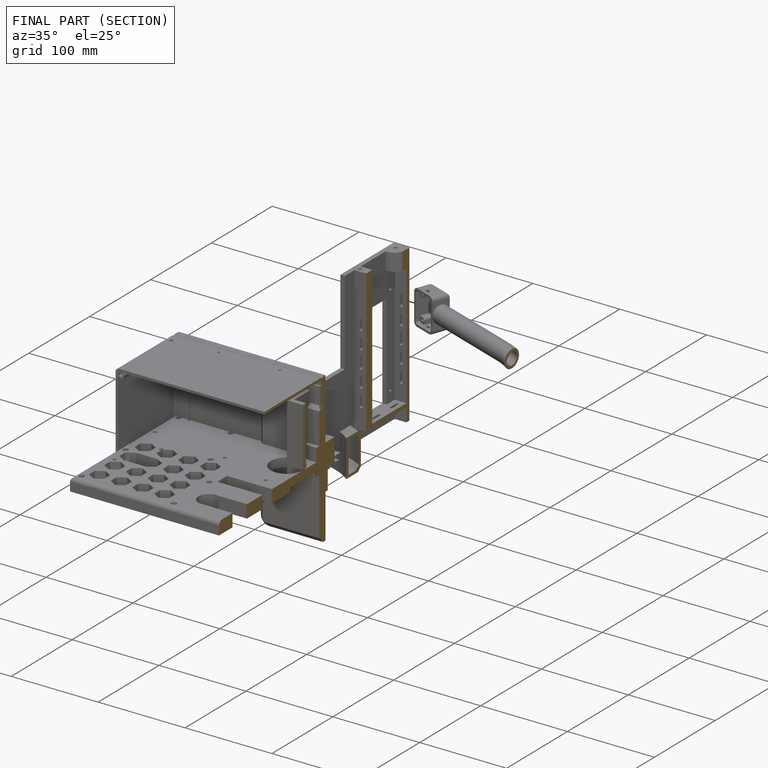
[diagram: finished part — half-section view (interior)]
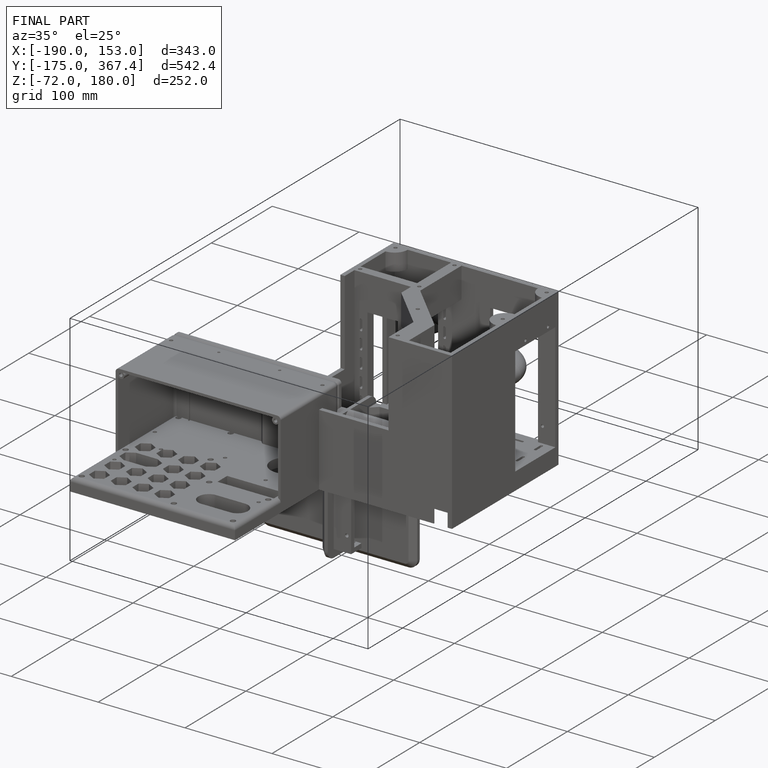
[diagram: finished part — iso view with bounding-box wireframe]
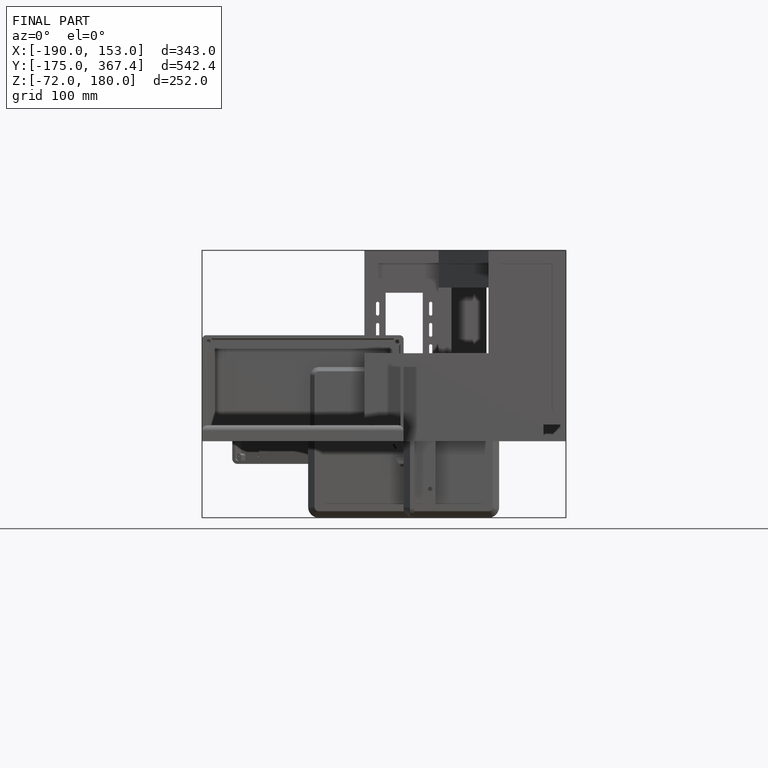
[diagram: finished part — front view with bounding-box wireframe]
